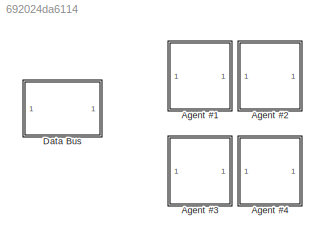
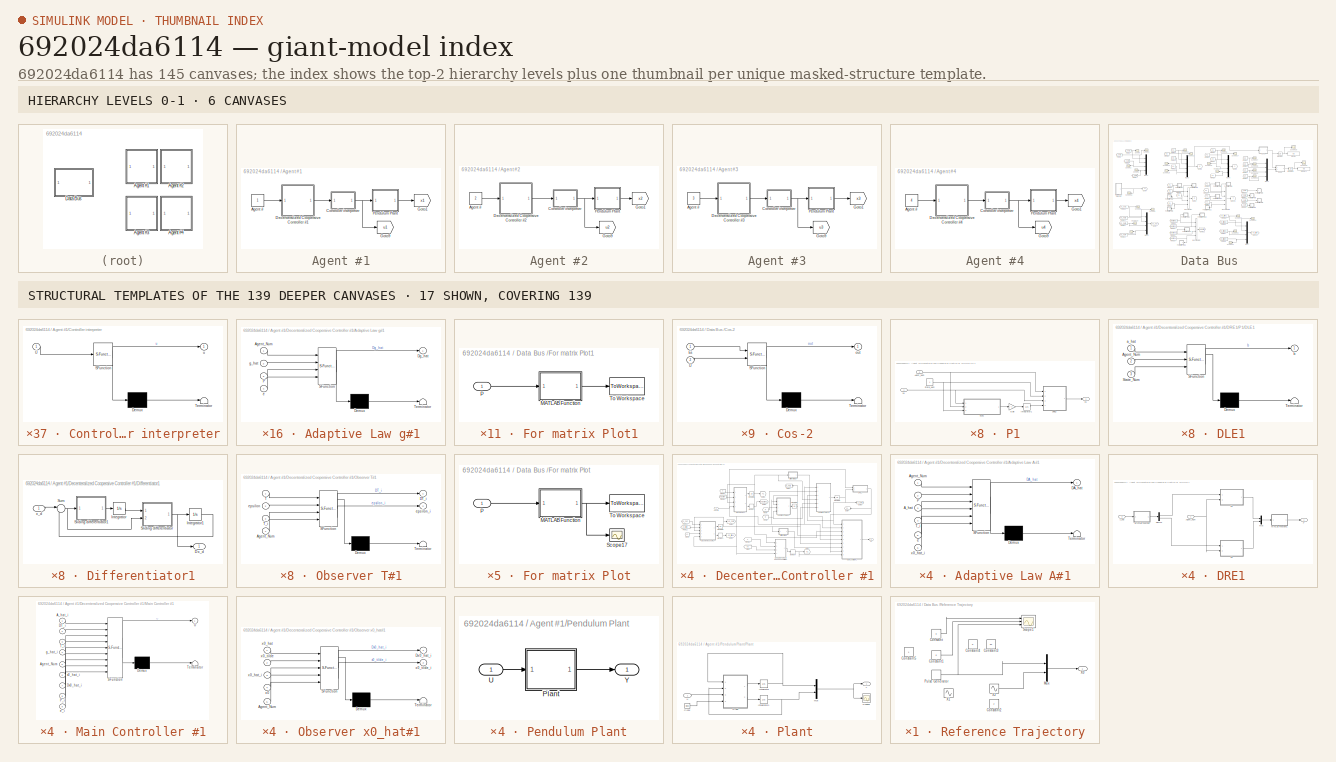
[diagram: thumbnail index - top-2 hierarchy levels (6 canvases) + 17 structural-template representatives of the remaining 139 canvases]
MODEL slx_692024da6114
KIND model
CONFIG AbsTol = auto
CONFIG EnableMultiTasking = on
CONFIG FixedStep = auto
CONFIG InitFcn = constant_CAMFC2_04_Simple
CONFIG MaxStep = auto
CONFIG MinStep = auto
CONFIG RelTol = 1e-3
CONFIG SampleTimeConstraint = Unconstrained
CONFIG Solver = ode45
CONFIG SolverName = ode45
CONFIG StartTime = 0.0
CONFIG StopTime = 100
BLOCK [SubSystem] Agent #1
  Ports = []
  RequestExecContextInheritance = off
BLOCK [Constant] Agent #1/Agent #
BLOCK [SubSystem] Agent #1/Controller interpreter
  ErrorFcn = Stateflow.Translate.translate
  PermitHierarchicalResolution = ExplicitOnly
  Ports = [1, 1]
  RequestExecContextInheritance = off
  SFBlockType = MATLAB Function
  TreatAsAtomicUnit = on
BLOCK [Demux] Agent #1/Controller interpreter/ Demux 
  Outputs = 1
  Ports = [1, 1]
BLOCK [S-Function] Agent #1/Controller interpreter/ SFunction 
  EnableBusSupport = on
  FunctionName = sf_sfun
  Parameters = n,n0
  PortCounts = [1 2]
  Ports = [1, 2]
  SFcnIsStateOwnerBlock = off
  SFunctionDeploymentMode = off
  Tag = Stateflow S-Function CAMFC2_04_simple 1
BLOCK [Terminator] Agent #1/Controller interpreter/ Terminator 
BLOCK [Inport] Agent #1/Controller interpreter/U
  IconDisplay = Port number
BLOCK [Outport] Agent #1/Controller interpreter/u
  IconDisplay = Port number
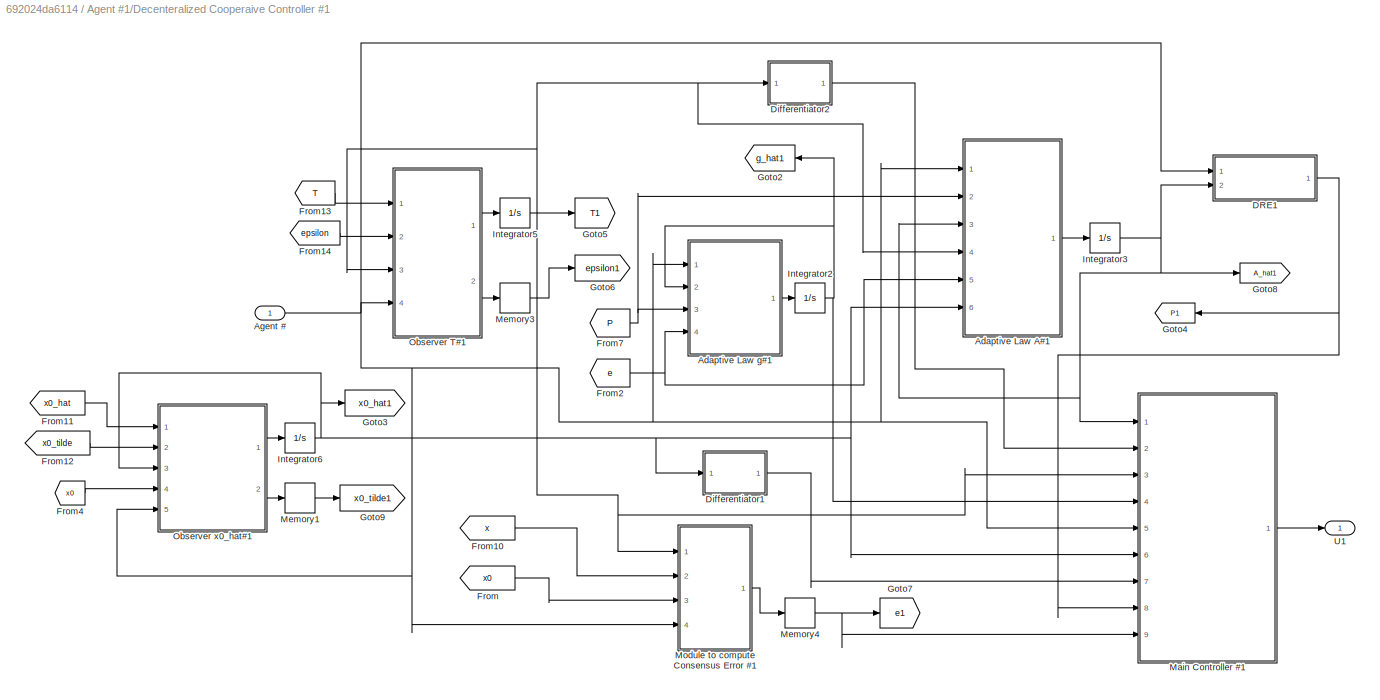
BLOCK [SubSystem] Agent #1/Decenteralized Cooperaive Controller #1
  Ports = [1, 1]
  RequestExecContextInheritance = off
BLOCK [SubSystem] Agent #1/Decenteralized Cooperaive Controller #1/Adaptive Law A#1
  ErrorFcn = Stateflow.Translate.translate
  PermitHierarchicalResolution = ExplicitOnly
  Ports = [6, 1]
  RequestExecContextInheritance = off
  SFBlockType = MATLAB Function
  TreatAsAtomicUnit = on
BLOCK [Demux] Agent #1/Decenteralized Cooperaive Controller #1/Adaptive Law A#1/ Demux 
  Outputs = 1
  Ports = [1, 1]
BLOCK [S-Function] Agent #1/Decenteralized Cooperaive Controller #1/Adaptive Law A#1/ SFunction 
  EnableBusSupport = on
  FunctionName = sf_sfun
  Parameters = H,N,P_struct,gama2,n,rho2
  PortCounts = [6 2]
  Ports = [6, 2]
  SFcnIsStateOwnerBlock = off
  SFunctionDeploymentMode = off
  Tag = Stateflow S-Function CAMFC2_04_simple 2
BLOCK [Terminator] Agent #1/Decenteralized Cooperaive Controller #1/Adaptive Law A#1/ Terminator 
BLOCK [Inport] Agent #1/Decenteralized Cooperaive Controller #1/Adaptive Law A#1/A_hat
  IconDisplay = Port number
  Port = 3
BLOCK [Inport] Agent #1/Decenteralized Cooperaive Controller #1/Adaptive Law A#1/Agent_Num
  IconDisplay = Port number
BLOCK [Outport] Agent #1/Decenteralized Cooperaive Controller #1/Adaptive Law A#1/DA_hat
  IconDisplay = Port number
BLOCK [Inport] Agent #1/Decenteralized Cooperaive Controller #1/Adaptive Law A#1/P
  IconDisplay = Port number
  Port = 2
BLOCK [Inport] Agent #1/Decenteralized Cooperaive Controller #1/Adaptive Law A#1/T_i
  IconDisplay = Port number
  Port = 4
BLOCK [Inport] Agent #1/Decenteralized Cooperaive Controller #1/Adaptive Law A#1/e
  IconDisplay = Port number
  Port = 5
BLOCK [Inport] Agent #1/Decenteralized Cooperaive Controller #1/Adaptive Law A#1/x0_hat_i
  IconDisplay = Port number
  Port = 6
BLOCK [SubSystem] Agent #1/Decenteralized Cooperaive Controller #1/Adaptive Law g#1
  ErrorFcn = Stateflow.Translate.translate
  PermitHierarchicalResolution = ExplicitOnly
  Ports = [4, 1]
  RequestExecContextInheritance = off
  SFBlockType = MATLAB Function
  TreatAsAtomicUnit = on
BLOCK [Demux] Agent #1/Decenteralized Cooperaive Controller #1/Adaptive Law g#1/ Demux 
  Outputs = 1
  Ports = [1, 1]
BLOCK [S-Function] Agent #1/Decenteralized Cooperaive Controller #1/Adaptive Law g#1/ SFunction 
  EnableBusSupport = on
  FunctionName = sf_sfun
  Parameters = H,N,P_struct,gama1,n,rho1
  PortCounts = [4 2]
  Ports = [4, 2]
  SFcnIsStateOwnerBlock = off
  SFunctionDeploymentMode = off
  Tag = Stateflow S-Function CAMFC2_04_simple 3
BLOCK [Terminator] Agent #1/Decenteralized Cooperaive Controller #1/Adaptive Law g#1/ Terminator 
BLOCK [Inport] Agent #1/Decenteralized Cooperaive Controller #1/Adaptive Law g#1/Agent_Num
  IconDisplay = Port number
BLOCK [Outport] Agent #1/Decenteralized Cooperaive Controller #1/Adaptive Law g#1/Dg_hat
  IconDisplay = Port number
BLOCK [Inport] Agent #1/Decenteralized Cooperaive Controller #1/Adaptive Law g#1/P
  IconDisplay = Port number
  Port = 3
BLOCK [Inport] Agent #1/Decenteralized Cooperaive Controller #1/Adaptive Law g#1/e
  IconDisplay = Port number
  Port = 4
BLOCK [Inport] Agent #1/Decenteralized Cooperaive Controller #1/Adaptive Law g#1/g_hat
  IconDisplay = Port number
  Port = 2
BLOCK [Inport] Agent #1/Decenteralized Cooperaive Controller #1/Agent #
  IconDisplay = Port number
BLOCK [SubSystem] Agent #1/Decenteralized Cooperaive Controller #1/DRE1
  Ports = [2, 1]
  RequestExecContextInheritance = off
BLOCK [Inport] Agent #1/Decenteralized Cooperaive Controller #1/DRE1/A_hat
  IconDisplay = Port number
  Port = 2
BLOCK [Inport] Agent #1/Decenteralized Cooperaive Controller #1/DRE1/Agent_Num
  IconDisplay = Port number
BLOCK [Demux] Agent #1/Decenteralized Cooperaive Controller #1/DRE1/Demux
  DisplayOption = bar
  Outputs = n
  Ports = [1, 2]
BLOCK [SubSystem] Agent #1/Decenteralized Cooperaive Controller #1/DRE1/MATLAB Function
  ErrorFcn = Stateflow.Translate.translate
  PermitHierarchicalResolution = ExplicitOnly
  Ports = [1, 1]
  RequestExecContextInheritance = off
  SFBlockType = MATLAB Function
  TreatAsAtomicUnit = on
BLOCK [Demux] Agent #1/Decenteralized Cooperaive Controller #1/DRE1/MATLAB Function/ Demux 
  Outputs = 1
  Ports = [1, 1]
BLOCK [S-Function] Agent #1/Decenteralized Cooperaive Controller #1/DRE1/MATLAB Function/ SFunction 
  EnableBusSupport = on
  FunctionName = sf_sfun
  PortCounts = [1 2]
  Ports = [1, 2]
  SFcnIsStateOwnerBlock = off
  SFunctionDeploymentMode = off
  Tag = Stateflow S-Function CAMFC2_04_simple 50
BLOCK [Terminator] Agent #1/Decenteralized Cooperaive Controller #1/DRE1/MATLAB Function/ Terminator 
BLOCK [Inport] Agent #1/Decenteralized Cooperaive Controller #1/DRE1/MATLAB Function/inp
  IconDisplay = Port number
BLOCK [Outport] Agent #1/Decenteralized Cooperaive Controller #1/DRE1/MATLAB Function/otp
  IconDisplay = Port number
BLOCK [SubSystem] Agent #1/Decenteralized Cooperaive Controller #1/DRE1/MATLAB Function1
  ErrorFcn = Stateflow.Translate.translate
  PermitHierarchicalResolution = ExplicitOnly
  Ports = [1, 1]
  RequestExecContextInheritance = off
  SFBlockType = MATLAB Function
  TreatAsAtomicUnit = on
BLOCK [Demux] Agent #1/Decenteralized Cooperaive Controller #1/DRE1/MATLAB Function1/ Demux 
  Outputs = 1
  Ports = [1, 1]
BLOCK [S-Function] Agent #1/Decenteralized Cooperaive Controller #1/DRE1/MATLAB Function1/ SFunction 
  EnableBusSupport = on
  FunctionName = sf_sfun
  PortCounts = [1 2]
  Ports = [1, 2]
  SFcnIsStateOwnerBlock = off
  SFunctionDeploymentMode = off
  Tag = Stateflow S-Function CAMFC2_04_simple 51
BLOCK [Terminator] Agent #1/Decenteralized Cooperaive Controller #1/DRE1/MATLAB Function1/ Terminator 
BLOCK [Inport] Agent #1/Decenteralized Cooperaive Controller #1/DRE1/MATLAB Function1/inp
  IconDisplay = Port number
BLOCK [Outport] Agent #1/Decenteralized Cooperaive Controller #1/DRE1/MATLAB Function1/otp
  IconDisplay = Port number
BLOCK [Mux] Agent #1/Decenteralized Cooperaive Controller #1/DRE1/Mux
  DisplayOption = bar
  Inputs = 2
  Ports = [2, 1]
BLOCK [Outport] Agent #1/Decenteralized Cooperaive Controller #1/DRE1/P
  IconDisplay = Port number
BLOCK [SubSystem] Agent #1/Decenteralized Cooperaive Controller #1/DRE1/P1
  Ports = [2, 1]
  RequestExecContextInheritance = off
BLOCK [Inport] Agent #1/Decenteralized Cooperaive Controller #1/DRE1/P1/Agent_Num
  IconDisplay = Port number
  Port = 2
BLOCK [SubSystem] Agent #1/Decenteralized Cooperaive Controller #1/DRE1/P1/DLE1
  ErrorFcn = Stateflow.Translate.translate
  PermitHierarchicalResolution = ExplicitOnly
  Ports = [3, 1]
  RequestExecContextInheritance = off
  SFBlockType = MATLAB Function
  TreatAsAtomicUnit = on
BLOCK [Demux] Agent #1/Decenteralized Cooperaive Controller #1/DRE1/P1/DLE1/ Demux 
  Outputs = 1
  Ports = [1, 1]
BLOCK [S-Function] Agent #1/Decenteralized Cooperaive Controller #1/DRE1/P1/DLE1/ SFunction 
  EnableBusSupport = on
  FunctionName = sf_sfun
  Parameters = H,Q
  PortCounts = [3 2]
  Ports = [3, 2]
  SFcnIsStateOwnerBlock = off
  SFunctionDeploymentMode = off
  Tag = Stateflow S-Function CAMFC2_04_simple 39
BLOCK [Terminator] Agent #1/Decenteralized Cooperaive Controller #1/DRE1/P1/DLE1/ Terminator 
BLOCK [Inport] Agent #1/Decenteralized Cooperaive Controller #1/DRE1/P1/DLE1/Agent_Num
  IconDisplay = Port number
  Port = 2
BLOCK [Inport] Agent #1/Decenteralized Cooperaive Controller #1/DRE1/P1/DLE1/State_Num
  IconDisplay = Port number
  Port = 3
BLOCK [Inport] Agent #1/Decenteralized Cooperaive Controller #1/DRE1/P1/DLE1/a_hat
  IconDisplay = Port number
BLOCK [Outport] Agent #1/Decenteralized Cooperaive Controller #1/DRE1/P1/DLE1/b
  IconDisplay = Port number
BLOCK [SubSystem] Agent #1/Decenteralized Cooperaive Controller #1/DRE1/P1/DRE2
  ErrorFcn = Stateflow.Translate.translate
  PermitHierarchicalResolution = ExplicitOnly
  Ports = [4, 1]
  RequestExecContextInheritance = off
  SFBlockType = MATLAB Function
  TreatAsAtomicUnit = on
BLOCK [Demux] Agent #1/Decenteralized Cooperaive Controller #1/DRE1/P1/DRE2/ Demux 
  Outputs = 1
  Ports = [1, 1]
BLOCK [S-Function] Agent #1/Decenteralized Cooperaive Controller #1/DRE1/P1/DRE2/ SFunction 
  EnableBusSupport = on
  FunctionName = sf_sfun
  Parameters = H,Q
  PortCounts = [4 2]
  Ports = [4, 2]
  SFcnIsStateOwnerBlock = off
  SFunctionDeploymentMode = off
  Tag = Stateflow S-Function CAMFC2_04_simple 42
BLOCK [Terminator] Agent #1/Decenteralized Cooperaive Controller #1/DRE1/P1/DRE2/ Terminator 
BLOCK [Inport] Agent #1/Decenteralized Cooperaive Controller #1/DRE1/P1/DRE2/Agent_Num
  IconDisplay = Port number
BLOCK [Inport] Agent #1/Decenteralized Cooperaive Controller #1/DRE1/P1/DRE2/State_Num
  IconDisplay = Port number
  Port = 2
BLOCK [Inport] Agent #1/Decenteralized Cooperaive Controller #1/DRE1/P1/DRE2/a_hat
  IconDisplay = Port number
  Port = 3
BLOCK [Outport] Agent #1/Decenteralized Cooperaive Controller #1/DRE1/P1/DRE2/p
  IconDisplay = Port number
BLOCK [Inport] Agent #1/Decenteralized Cooperaive Controller #1/DRE1/P1/DRE2/val_exp
  IconDisplay = Port number
  Port = 4
BLOCK [Gain] Agent #1/Decenteralized Cooperaive Controller #1/DRE1/P1/Gain
  Gain = -1
  OutDataTypeStr = Inherit: Inherit via internal rule
  ParamDataTypeStr = Inherit: Inherit via internal rule
  SaturateOnIntegerOverflow = off
BLOCK [Integrator] Agent #1/Decenteralized Cooperaive Controller #1/DRE1/P1/Integrator1
  Ports = [1, 1]
BLOCK [Constant] Agent #1/Decenteralized Cooperaive Controller #1/DRE1/P1/State_Num
BLOCK [Inport] Agent #1/Decenteralized Cooperaive Controller #1/DRE1/P1/a1
  IconDisplay = Port number
BLOCK [Outport] Agent #1/Decenteralized Cooperaive Controller #1/DRE1/P1/p1
  IconDisplay = Port number
BLOCK [SubSystem] Agent #1/Decenteralized Cooperaive Controller #1/DRE1/P2
  Ports = [2, 1]
  RequestExecContextInheritance = off
BLOCK [Inport] Agent #1/Decenteralized Cooperaive Controller #1/DRE1/P2/Agent_Num
  IconDisplay = Port number
  Port = 2
BLOCK [SubSystem] Agent #1/Decenteralized Cooperaive Controller #1/DRE1/P2/DLE1
  ErrorFcn = Stateflow.Translate.translate
  PermitHierarchicalResolution = ExplicitOnly
  Ports = [3, 1]
  RequestExecContextInheritance = off
  SFBlockType = MATLAB Function
  TreatAsAtomicUnit = on
BLOCK [Demux] Agent #1/Decenteralized Cooperaive Controller #1/DRE1/P2/DLE1/ Demux 
  Outputs = 1
  Ports = [1, 1]
BLOCK [S-Function] Agent #1/Decenteralized Cooperaive Controller #1/DRE1/P2/DLE1/ SFunction 
  EnableBusSupport = on
  FunctionName = sf_sfun
  Parameters = H,Q
  PortCounts = [3 2]
  Ports = [3, 2]
  SFcnIsStateOwnerBlock = off
  SFunctionDeploymentMode = off
  Tag = Stateflow S-Function CAMFC2_04_simple 13
BLOCK [Terminator] Agent #1/Decenteralized Cooperaive Controller #1/DRE1/P2/DLE1/ Terminator 
BLOCK [Inport] Agent #1/Decenteralized Cooperaive Controller #1/DRE1/P2/DLE1/Agent_Num
  IconDisplay = Port number
  Port = 2
BLOCK [Inport] Agent #1/Decenteralized Cooperaive Controller #1/DRE1/P2/DLE1/State_Num
  IconDisplay = Port number
  Port = 3
BLOCK [Inport] Agent #1/Decenteralized Cooperaive Controller #1/DRE1/P2/DLE1/a_hat
  IconDisplay = Port number
BLOCK [Outport] Agent #1/Decenteralized Cooperaive Controller #1/DRE1/P2/DLE1/b
  IconDisplay = Port number
BLOCK [SubSystem] Agent #1/Decenteralized Cooperaive Controller #1/DRE1/P2/DRE2
  ErrorFcn = Stateflow.Translate.translate
  PermitHierarchicalResolution = ExplicitOnly
  Ports = [4, 1]
  RequestExecContextInheritance = off
  SFBlockType = MATLAB Function
  TreatAsAtomicUnit = on
BLOCK [Demux] Agent #1/Decenteralized Cooperaive Controller #1/DRE1/P2/DRE2/ Demux 
  Outputs = 1
  Ports = [1, 1]
BLOCK [S-Function] Agent #1/Decenteralized Cooperaive Controller #1/DRE1/P2/DRE2/ SFunction 
  EnableBusSupport = on
  FunctionName = sf_sfun
  Parameters = H,Q
  PortCounts = [4 2]
  Ports = [4, 2]
  SFcnIsStateOwnerBlock = off
  SFunctionDeploymentMode = off
  Tag = Stateflow S-Function CAMFC2_04_simple 46
BLOCK [Terminator] Agent #1/Decenteralized Cooperaive Controller #1/DRE1/P2/DRE2/ Terminator 
BLOCK [Inport] Agent #1/Decenteralized Cooperaive Controller #1/DRE1/P2/DRE2/Agent_Num
  IconDisplay = Port number
BLOCK [Inport] Agent #1/Decenteralized Cooperaive Controller #1/DRE1/P2/DRE2/State_Num
  IconDisplay = Port number
  Port = 2
BLOCK [Inport] Agent #1/Decenteralized Cooperaive Controller #1/DRE1/P2/DRE2/a_hat
  IconDisplay = Port number
  Port = 3
BLOCK [Outport] Agent #1/Decenteralized Cooperaive Controller #1/DRE1/P2/DRE2/p
  IconDisplay = Port number
BLOCK [Inport] Agent #1/Decenteralized Cooperaive Controller #1/DRE1/P2/DRE2/val_exp
  IconDisplay = Port number
  Port = 4
BLOCK [Gain] Agent #1/Decenteralized Cooperaive Controller #1/DRE1/P2/Gain
  Gain = -1
  OutDataTypeStr = Inherit: Inherit via internal rule
  ParamDataTypeStr = Inherit: Inherit via internal rule
  SaturateOnIntegerOverflow = off
BLOCK [Integrator] Agent #1/Decenteralized Cooperaive Controller #1/DRE1/P2/Integrator1
  Ports = [1, 1]
BLOCK [Constant] Agent #1/Decenteralized Cooperaive Controller #1/DRE1/P2/State_Num
  Value = 2
BLOCK [Inport] Agent #1/Decenteralized Cooperaive Controller #1/DRE1/P2/a2
  IconDisplay = Port number
BLOCK [Outport] Agent #1/Decenteralized Cooperaive Controller #1/DRE1/P2/p2
  IconDisplay = Port number
BLOCK [SubSystem] Agent #1/Decenteralized Cooperaive Controller #1/Differentiator1
  Ports = [1, 1]
  RequestExecContextInheritance = off
BLOCK [Outport] Agent #1/Decenteralized Cooperaive Controller #1/Differentiator1/Dx_d
  IconDisplay = Port number
BLOCK [Integrator] Agent #1/Decenteralized Cooperaive Controller #1/Differentiator1/Integrator
  InitialCondition = zeros(n0,1)
  Ports = [1, 1]
BLOCK [Integrator] Agent #1/Decenteralized Cooperaive Controller #1/Differentiator1/Integrator1
  InitialCondition = zeros(n0,1)
  Ports = [1, 1]
BLOCK [SubSystem] Agent #1/Decenteralized Cooperaive Controller #1/Differentiator1/Sliding differentiator
  ErrorFcn = Stateflow.Translate.translate
  PermitHierarchicalResolution = ExplicitOnly
  Ports = [2, 1]
  RequestExecContextInheritance = off
  SFBlockType = MATLAB Function
  TreatAsAtomicUnit = on
BLOCK [Demux] Agent #1/Decenteralized Cooperaive Controller #1/Differentiator1/Sliding differentiator/ Demux 
  Outputs = 1
  Ports = [1, 1]
BLOCK [S-Function] Agent #1/Decenteralized Cooperaive Controller #1/Differentiator1/Sliding differentiator/ SFunction 
  EnableBusSupport = on
  FunctionName = sf_sfun
  Parameters = alpha,k1
  PortCounts = [2 2]
  Ports = [2, 2]
  SFcnIsStateOwnerBlock = off
  SFunctionDeploymentMode = off
  Tag = Stateflow S-Function CAMFC2_04_simple 12
BLOCK [Terminator] Agent #1/Decenteralized Cooperaive Controller #1/Differentiator1/Sliding differentiator/ Terminator 
BLOCK [Inport] Agent #1/Decenteralized Cooperaive Controller #1/Differentiator1/Sliding differentiator/e
  IconDisplay = Port number
  Port = 2
BLOCK [Outport] Agent #1/Decenteralized Cooperaive Controller #1/Differentiator1/Sliding differentiator/u
  IconDisplay = Port number
BLOCK [Inport] Agent #1/Decenteralized Cooperaive Controller #1/Differentiator1/Sliding differentiator/u1
  IconDisplay = Port number
BLOCK [SubSystem] Agent #1/Decenteralized Cooperaive Controller #1/Differentiator1/Sliding differentiator1
  ErrorFcn = Stateflow.Translate.translate
  PermitHierarchicalResolution = ExplicitOnly
  Ports = [1, 1]
  RequestExecContextInheritance = off
  SFBlockType = MATLAB Function
  TreatAsAtomicUnit = on
BLOCK [Demux] Agent #1/Decenteralized Cooperaive Controller #1/Differentiator1/Sliding differentiator1/ Demux 
  Outputs = 1
  Ports = [1, 1]
BLOCK [S-Function] Agent #1/Decenteralized Cooperaive Controller #1/Differentiator1/Sliding differentiator1/ SFunction 
  EnableBusSupport = on
  FunctionName = sf_sfun
  Parameters = alpha,k2
  PortCounts = [1 2]
  Ports = [1, 2]
  SFcnIsStateOwnerBlock = off
  SFunctionDeploymentMode = off
  Tag = Stateflow S-Function CAMFC2_04_simple 23
BLOCK [Terminator] Agent #1/Decenteralized Cooperaive Controller #1/Differentiator1/Sliding differentiator1/ Terminator 
BLOCK [Outport] Agent #1/Decenteralized Cooperaive Controller #1/Differentiator1/Sliding differentiator1/Du1
  IconDisplay = Port number
BLOCK [Inport] Agent #1/Decenteralized Cooperaive Controller #1/Differentiator1/Sliding differentiator1/e
  IconDisplay = Port number
BLOCK [Sum] Agent #1/Decenteralized Cooperaive Controller #1/Differentiator1/Sum
  IconShape = round
  InputSameDT = off
  Inputs = |-+
  OutDataTypeStr = Inherit: Inherit via internal rule
  Ports = [2, 1]
  SaturateOnIntegerOverflow = off
BLOCK [Inport] Agent #1/Decenteralized Cooperaive Controller #1/Differentiator1/x_d
  IconDisplay = Port number
BLOCK [SubSystem] Agent #1/Decenteralized Cooperaive Controller #1/Differentiator2
  Ports = [1, 1]
  RequestExecContextInheritance = off
BLOCK [Outport] Agent #1/Decenteralized Cooperaive Controller #1/Differentiator2/Dx_d
  IconDisplay = Port number
BLOCK [Integrator] Agent #1/Decenteralized Cooperaive Controller #1/Differentiator2/Integrator
  InitialCondition = zeros(N+1,n)
  Ports = [1, 1]
BLOCK [Integrator] Agent #1/Decenteralized Cooperaive Controller #1/Differentiator2/Integrator1
  InitialCondition = zeros(N+1,n)
  Ports = [1, 1]
BLOCK [SubSystem] Agent #1/Decenteralized Cooperaive Controller #1/Differentiator2/Sliding differentiator
  ErrorFcn = Stateflow.Translate.translate
  PermitHierarchicalResolution = ExplicitOnly
  Ports = [2, 1]
  RequestExecContextInheritance = off
  SFBlockType = MATLAB Function
  TreatAsAtomicUnit = on
BLOCK [Demux] Agent #1/Decenteralized Cooperaive Controller #1/Differentiator2/Sliding differentiator/ Demux 
  Outputs = 1
  Ports = [1, 1]
BLOCK [S-Function] Agent #1/Decenteralized Cooperaive Controller #1/Differentiator2/Sliding differentiator/ SFunction 
  EnableBusSupport = on
  FunctionName = sf_sfun
  Parameters = alpha,k1
  PortCounts = [2 2]
  Ports = [2, 2]
  SFcnIsStateOwnerBlock = off
  SFunctionDeploymentMode = off
  Tag = Stateflow S-Function CAMFC2_04_simple 5
BLOCK [Terminator] Agent #1/Decenteralized Cooperaive Controller #1/Differentiator2/Sliding differentiator/ Terminator 
BLOCK [Inport] Agent #1/Decenteralized Cooperaive Controller #1/Differentiator2/Sliding differentiator/e
  IconDisplay = Port number
  Port = 2
BLOCK [Outport] Agent #1/Decenteralized Cooperaive Controller #1/Differentiator2/Sliding differentiator/u
  IconDisplay = Port number
BLOCK [Inport] Agent #1/Decenteralized Cooperaive Controller #1/Differentiator2/Sliding differentiator/u1
  IconDisplay = Port number
BLOCK [SubSystem] Agent #1/Decenteralized Cooperaive Controller #1/Differentiator2/Sliding differentiator1
  ErrorFcn = Stateflow.Translate.translate
  PermitHierarchicalResolution = ExplicitOnly
  Ports = [1, 1]
  RequestExecContextInheritance = off
  SFBlockType = MATLAB Function
  TreatAsAtomicUnit = on
BLOCK [Demux] Agent #1/Decenteralized Cooperaive Controller #1/Differentiator2/Sliding differentiator1/ Demux 
  Outputs = 1
  Ports = [1, 1]
BLOCK [S-Function] Agent #1/Decenteralized Cooperaive Controller #1/Differentiator2/Sliding differentiator1/ SFunction 
  EnableBusSupport = on
  FunctionName = sf_sfun
  Parameters = alpha,k2
  PortCounts = [1 2]
  Ports = [1, 2]
  SFcnIsStateOwnerBlock = off
  SFunctionDeploymentMode = off
  Tag = Stateflow S-Function CAMFC2_04_simple 6
BLOCK [Terminator] Agent #1/Decenteralized Cooperaive Controller #1/Differentiator2/Sliding differentiator1/ Terminator 
BLOCK [Outport] Agent #1/Decenteralized Cooperaive Controller #1/Differentiator2/Sliding differentiator1/Du1
  IconDisplay = Port number
BLOCK [Inport] Agent #1/Decenteralized Cooperaive Controller #1/Differentiator2/Sliding differentiator1/e
  IconDisplay = Port number
BLOCK [Sum] Agent #1/Decenteralized Cooperaive Controller #1/Differentiator2/Sum
  IconShape = round
  InputSameDT = off
  Inputs = |-+
  OutDataTypeStr = Inherit: Inherit via internal rule
  Ports = [2, 1]
  SaturateOnIntegerOverflow = off
BLOCK [Inport] Agent #1/Decenteralized Cooperaive Controller #1/Differentiator2/x_d
  IconDisplay = Port number
BLOCK [From] Agent #1/Decenteralized Cooperaive Controller #1/From
  GotoTag = x0
  TagVisibility = global
BLOCK [From] Agent #1/Decenteralized Cooperaive Controller #1/From10
  GotoTag = x
  TagVisibility = global
BLOCK [From] Agent #1/Decenteralized Cooperaive Controller #1/From11
  GotoTag = x0_hat
  TagVisibility = global
BLOCK [From] Agent #1/Decenteralized Cooperaive Controller #1/From12
  GotoTag = x0_tilde
  TagVisibility = global
BLOCK [From] Agent #1/Decenteralized Cooperaive Controller #1/From13
  GotoTag = T
  TagVisibility = global
BLOCK [From] Agent #1/Decenteralized Cooperaive Controller #1/From14
  GotoTag = epsilon
  TagVisibility = global
BLOCK [From] Agent #1/Decenteralized Cooperaive Controller #1/From2
  GotoTag = e
  TagVisibility = global
BLOCK [From] Agent #1/Decenteralized Cooperaive Controller #1/From4
  GotoTag = x0
  TagVisibility = global
BLOCK [From] Agent #1/Decenteralized Cooperaive Controller #1/From7
  GotoTag = P
  TagVisibility = global
BLOCK [Goto] Agent #1/Decenteralized Cooperaive Controller #1/Goto2
  GotoTag = g_hat1
  TagVisibility = global
BLOCK [Goto] Agent #1/Decenteralized Cooperaive Controller #1/Goto3
  GotoTag = x0_hat1
  TagVisibility = global
BLOCK [Goto] Agent #1/Decenteralized Cooperaive Controller #1/Goto4
  GotoTag = P1
  TagVisibility = global
BLOCK [Goto] Agent #1/Decenteralized Cooperaive Controller #1/Goto5
  GotoTag = T1
  TagVisibility = global
BLOCK [Goto] Agent #1/Decenteralized Cooperaive Controller #1/Goto6
  GotoTag = epsilon1
  TagVisibility = global
BLOCK [Goto] Agent #1/Decenteralized Cooperaive Controller #1/Goto7
  GotoTag = e1
  TagVisibility = global
BLOCK [Goto] Agent #1/Decenteralized Cooperaive Controller #1/Goto8
  GotoTag = A_hat1
  TagVisibility = global
BLOCK [Goto] Agent #1/Decenteralized Cooperaive Controller #1/Goto9
  GotoTag = x0_tilde1
  TagVisibility = global
BLOCK [Integrator] Agent #1/Decenteralized Cooperaive Controller #1/Integrator2
  InitialCondition = zeros(n,1)
  Ports = [1, 1]
BLOCK [Integrator] Agent #1/Decenteralized Cooperaive Controller #1/Integrator3
  InitialCondition = zeros(n)
  Ports = [1, 1]
BLOCK [Integrator] Agent #1/Decenteralized Cooperaive Controller #1/Integrator5
  InitialCondition = zeros(N+1,n)
  Ports = [1, 1]
BLOCK [Integrator] Agent #1/Decenteralized Cooperaive Controller #1/Integrator6
  InitialCondition = zeros(n0,1)
  Ports = [1, 1]
BLOCK [SubSystem] Agent #1/Decenteralized Cooperaive Controller #1/Main Controller #1
  ErrorFcn = Stateflow.Translate.translate
  PermitHierarchicalResolution = ExplicitOnly
  Ports = [9, 1]
  RequestExecContextInheritance = off
  SFBlockType = MATLAB Function
  TreatAsAtomicUnit = on
BLOCK [Demux] Agent #1/Decenteralized Cooperaive Controller #1/Main Controller #1/ Demux 
  Outputs = 1
  Ports = [1, 1]
BLOCK [S-Function] Agent #1/Decenteralized Cooperaive Controller #1/Main Controller #1/ SFunction 
  EnableBusSupport = on
  FunctionName = sf_sfun
  Parameters = Q
  PortCounts = [9 2]
  Ports = [9, 2]
  SFcnIsStateOwnerBlock = off
  SFunctionDeploymentMode = off
  Tag = Stateflow S-Function CAMFC2_04_simple 9
BLOCK [Terminator] Agent #1/Decenteralized Cooperaive Controller #1/Main Controller #1/ Terminator 
BLOCK [Inport] Agent #1/Decenteralized Cooperaive Controller #1/Main Controller #1/A_hat_i
  IconDisplay = Port number
BLOCK [Inport] Agent #1/Decenteralized Cooperaive Controller #1/Main Controller #1/Agent_Num
  IconDisplay = Port number
  Port = 5
BLOCK [Inport] Agent #1/Decenteralized Cooperaive Controller #1/Main Controller #1/DT_i
  IconDisplay = Port number
  Port = 2
BLOCK [Inport] Agent #1/Decenteralized Cooperaive Controller #1/Main Controller #1/Dx0_hat_i
  IconDisplay = Port number
  Port = 7
BLOCK [Inport] Agent #1/Decenteralized Cooperaive Controller #1/Main Controller #1/P_i
  IconDisplay = Port number
  Port = 8
BLOCK [Inport] Agent #1/Decenteralized Cooperaive Controller #1/Main Controller #1/T_i
  IconDisplay = Port number
  Port = 3
BLOCK [Outport] Agent #1/Decenteralized Cooperaive Controller #1/Main Controller #1/U
  IconDisplay = Port number
BLOCK [Inport] Agent #1/Decenteralized Cooperaive Controller #1/Main Controller #1/e_i
  IconDisplay = Port number
  Port = 9
BLOCK [Inport] Agent #1/Decenteralized Cooperaive Controller #1/Main Controller #1/g_hat_i
  IconDisplay = Port number
  Port = 4
BLOCK [Inport] Agent #1/Decenteralized Cooperaive Controller #1/Main Controller #1/x0_hat_i
  IconDisplay = Port number
  Port = 6
BLOCK [Memory] Agent #1/Decenteralized Cooperaive Controller #1/Memory1
  InitialCondition = zeros(n0,1)
BLOCK [Memory] Agent #1/Decenteralized Cooperaive Controller #1/Memory3
  InitialCondition = zeros(N+1,n)
BLOCK [Memory] Agent #1/Decenteralized Cooperaive Controller #1/Memory4
  InitialCondition = zeros(n,1)
BLOCK [SubSystem] Agent #1/Decenteralized Cooperaive Controller #1/Module to compute Consensus Error #1
  ErrorFcn = Stateflow.Translate.translate
  PermitHierarchicalResolution = ExplicitOnly
  Ports = [4, 1]
  RequestExecContextInheritance = off
  SFBlockType = MATLAB Function
  TreatAsAtomicUnit = on
BLOCK [Demux] Agent #1/Decenteralized Cooperaive Controller #1/Module to compute Consensus Error #1/ Demux 
  Outputs = 1
  Ports = [1, 1]
BLOCK [S-Function] Agent #1/Decenteralized Cooperaive Controller #1/Module to compute Consensus Error #1/ SFunction 
  EnableBusSupport = on
  FunctionName = sf_sfun
  Parameters = AN,BN,N,n,n0
  PortCounts = [4 2]
  Ports = [4, 2]
  SFcnIsStateOwnerBlock = off
  SFunctionDeploymentMode = off
  Tag = Stateflow S-Function CAMFC2_04_simple 10
BLOCK [Terminator] Agent #1/Decenteralized Cooperaive Controller #1/Module to compute Consensus Error #1/ Terminator 
BLOCK [Inport] Agent #1/Decenteralized Cooperaive Controller #1/Module to compute Consensus Error #1/Agent_Num
  IconDisplay = Port number
  Port = 4
BLOCK [Inport] Agent #1/Decenteralized Cooperaive Controller #1/Module to compute Consensus Error #1/T_i
  IconDisplay = Port number
BLOCK [Outport] Agent #1/Decenteralized Cooperaive Controller #1/Module to compute Consensus Error #1/ep
  IconDisplay = Port number
BLOCK [Inport] Agent #1/Decenteralized Cooperaive Controller #1/Module to compute Consensus Error #1/x
  IconDisplay = Port number
  Port = 2
BLOCK [Inport] Agent #1/Decenteralized Cooperaive Controller #1/Module to compute Consensus Error #1/x0
  IconDisplay = Port number
  Port = 3
BLOCK [SubSystem] Agent #1/Decenteralized Cooperaive Controller #1/Observer T#1
  ErrorFcn = Stateflow.Translate.translate
  PermitHierarchicalResolution = ExplicitOnly
  Ports = [4, 2]
  RequestExecContextInheritance = off
  SFBlockType = MATLAB Function
  TreatAsAtomicUnit = on
BLOCK [Demux] Agent #1/Decenteralized Cooperaive Controller #1/Observer T#1/ Demux 
  Outputs = 1
  Ports = [1, 1]
BLOCK [S-Function] Agent #1/Decenteralized Cooperaive Controller #1/Observer T#1/ SFunction 
  EnableBusSupport = on
  FunctionName = sf_sfun
  Parameters = AN,BN,H,N,Observer_Gain1,Omega,T_struct,Upsilon_M,epsilon_struct,n
  PortCounts = [4 3]
  Ports = [4, 3]
  SFcnIsStateOwnerBlock = off
  SFunctionDeploymentMode = off
  Tag = Stateflow S-Function CAMFC2_04_simple 11
BLOCK [Terminator] Agent #1/Decenteralized Cooperaive Controller #1/Observer T#1/ Terminator 
BLOCK [Inport] Agent #1/Decenteralized Cooperaive Controller #1/Observer T#1/Agent_Num
  IconDisplay = Port number
  Port = 4
BLOCK [Outport] Agent #1/Decenteralized Cooperaive Controller #1/Observer T#1/DT_i
  IconDisplay = Port number
BLOCK [Inport] Agent #1/Decenteralized Cooperaive Controller #1/Observer T#1/T
  IconDisplay = Port number
BLOCK [Inport] Agent #1/Decenteralized Cooperaive Controller #1/Observer T#1/T_i
  IconDisplay = Port number
  Port = 3
BLOCK [Inport] Agent #1/Decenteralized Cooperaive Controller #1/Observer T#1/epsilon
  IconDisplay = Port number
  Port = 2
BLOCK [Outport] Agent #1/Decenteralized Cooperaive Controller #1/Observer T#1/epsilon_i
  IconDisplay = Port number
  Port = 2
BLOCK [SubSystem] Agent #1/Decenteralized Cooperaive Controller #1/Observer x0_hat#1
  ErrorFcn = Stateflow.Translate.translate
  PermitHierarchicalResolution = ExplicitOnly
  Ports = [5, 2]
  RequestExecContextInheritance = off
  SFBlockType = MATLAB Function
  TreatAsAtomicUnit = on
BLOCK [Demux] Agent #1/Decenteralized Cooperaive Controller #1/Observer x0_hat#1/ Demux 
  Outputs = 1
  Ports = [1, 1]
BLOCK [S-Function] Agent #1/Decenteralized Cooperaive Controller #1/Observer x0_hat#1/ SFunction 
  EnableBusSupport = on
  FunctionName = sf_sfun
  Parameters = AN,BN,H,N,Observer_Gain,alpha,chi,n0
  PortCounts = [5 3]
  Ports = [5, 3]
  SFcnIsStateOwnerBlock = off
  SFunctionDeploymentMode = off
  Tag = Stateflow S-Function CAMFC2_04_simple 4
BLOCK [Terminator] Agent #1/Decenteralized Cooperaive Controller #1/Observer x0_hat#1/ Terminator 
BLOCK [Inport] Agent #1/Decenteralized Cooperaive Controller #1/Observer x0_hat#1/Agent_Num
  IconDisplay = Port number
  Port = 5
BLOCK [Outport] Agent #1/Decenteralized Cooperaive Controller #1/Observer x0_hat#1/Dx0_hat_i
  IconDisplay = Port number
BLOCK [Inport] Agent #1/Decenteralized Cooperaive Controller #1/Observer x0_hat#1/x0
  IconDisplay = Port number
  Port = 4
BLOCK [Inport] Agent #1/Decenteralized Cooperaive Controller #1/Observer x0_hat#1/x0_hat
  IconDisplay = Port number
BLOCK [Inport] Agent #1/Decenteralized Cooperaive Controller #1/Observer x0_hat#1/x0_hat_i
  IconDisplay = Port number
  Port = 3
BLOCK [Inport] Agent #1/Decenteralized Cooperaive Controller #1/Observer x0_hat#1/x0_tilde
  IconDisplay = Port number
  Port = 2
BLOCK [Outport] Agent #1/Decenteralized Cooperaive Controller #1/Observer x0_hat#1/x0_tilde_i
  IconDisplay = Port number
  Port = 2
BLOCK [Outport] Agent #1/Decenteralized Cooperaive Controller #1/U1
  IconDisplay = Port number
BLOCK [Goto] Agent #1/Goto1
  GotoTag = x1
  TagVisibility = global
BLOCK [Goto] Agent #1/Goto9
  GotoTag = u1
  TagVisibility = global
BLOCK [SubSystem] Agent #1/Pendulum Plant
  Ports = [1, 1]
  RequestExecContextInheritance = off
BLOCK [SubSystem] Agent #1/Pendulum Plant/Plant
  Ports = [1, 1]
  RequestExecContextInheritance = off
BLOCK [Clock] Agent #1/Pendulum Plant/Plant/Clock
BLOCK [Integrator] Agent #1/Pendulum Plant/Plant/Integrator
  Ports = [1, 1]
BLOCK [Integrator] Agent #1/Pendulum Plant/Plant/Integrator1
  Ports = [1, 1]
BLOCK [Mux] Agent #1/Pendulum Plant/Plant/Mux
  DisplayOption = bar
  Inputs = 2
  Ports = [2, 1]
BLOCK [SubSystem] Agent #1/Pendulum Plant/Plant/Plant
  ErrorFcn = Stateflow.Translate.translate
  PermitHierarchicalResolution = ExplicitOnly
  Ports = [4, 2]
  RequestExecContextInheritance = off
  SFBlockType = MATLAB Function
  TreatAsAtomicUnit = on
BLOCK [Demux] Agent #1/Pendulum Plant/Plant/Plant/ Demux 
  Outputs = 1
  Ports = [1, 1]
BLOCK [S-Function] Agent #1/Pendulum Plant/Plant/Plant/ SFunction 
  EnableBusSupport = on
  FunctionName = sf_sfun
  Parameters = Bp,Disturb_Freq,Disturb_Val,Jp,Mp,ge,lp
  PortCounts = [4 3]
  Ports = [4, 3]
  SFcnIsStateOwnerBlock = off
  SFunctionDeploymentMode = off
  Tag = Stateflow S-Function CAMFC2_04_simple 7
BLOCK [Terminator] Agent #1/Pendulum Plant/Plant/Plant/ Terminator 
BLOCK [Outport] Agent #1/Pendulum Plant/Plant/Plant/Dx1
  IconDisplay = Port number
BLOCK [Outport] Agent #1/Pendulum Plant/Plant/Plant/Dx2
  IconDisplay = Port number
  Port = 2
BLOCK [Inport] Agent #1/Pendulum Plant/Plant/Plant/t
  IconDisplay = Port number
  Port = 4
BLOCK [Inport] Agent #1/Pendulum Plant/Plant/Plant/u
  IconDisplay = Port number
  Port = 3
BLOCK [Inport] Agent #1/Pendulum Plant/Plant/Plant/x1
  IconDisplay = Port number
BLOCK [Inport] Agent #1/Pendulum Plant/Plant/Plant/x2
  IconDisplay = Port number
  Port = 2
BLOCK [Scope] Agent #1/Pendulum Plant/Plant/Scope3
  Floating = off
  NumInputPorts = 1
  Ports = [1]
  ScopeSpecificationString = Simulink.scopes.TimeScopeBlockCfg('CurrentConfiguration', extmgr.ConfigurationSet(extmgr.Configuration('Core','General UI',true),extmgr.Configuration('Core','Source UI',true),extmgr.Configuration('Sources','WiredSimulink',true,'DataLoggingVariableName','ScopeData4','DataLoggingSaveFormat','StructureWithTime','DataLoggingDecimation','1','DataLoggingDecimateData',true),extmgr.Configuration('Visuals'...<+1697ch>  <repeated x4 — deduplicated; at blocks: Scope3>
BLOCK [Inport] Agent #1/Pendulum Plant/Plant/U
  IconDisplay = Port number
BLOCK [Outport] Agent #1/Pendulum Plant/Plant/Y
  IconDisplay = Port number
BLOCK [Inport] Agent #1/Pendulum Plant/U
  IconDisplay = Port number
BLOCK [Outport] Agent #1/Pendulum Plant/Y
  IconDisplay = Port number
BLOCK [SubSystem] Agent #2
  Ports = []
  RequestExecContextInheritance = off
BLOCK [Constant] Agent #2/Agent #
  Value = 2
BLOCK [SubSystem] Agent #2/Controller interpreter
  ErrorFcn = Stateflow.Translate.translate
  PermitHierarchicalResolution = ExplicitOnly
  Ports = [1, 1]
  RequestExecContextInheritance = off
  SFBlockType = MATLAB Function
  TreatAsAtomicUnit = on
BLOCK [Demux] Agent #2/Controller interpreter/ Demux 
  Outputs = 1
  Ports = [1, 1]
BLOCK [S-Function] Agent #2/Controller interpreter/ SFunction 
  EnableBusSupport = on
  FunctionName = sf_sfun
  Parameters = n,n0
  PortCounts = [1 2]
  Ports = [1, 2]
  SFcnIsStateOwnerBlock = off
  SFunctionDeploymentMode = off
  Tag = Stateflow S-Function CAMFC2_04_simple 15
BLOCK [Terminator] Agent #2/Controller interpreter/ Terminator 
BLOCK [Inport] Agent #2/Controller interpreter/U
  IconDisplay = Port number
BLOCK [Outport] Agent #2/Controller interpreter/u
  IconDisplay = Port number
BLOCK [SubSystem] Agent #2/Decenteralized Cooperaive Controller #2
  Ports = [1, 1]
  RequestExecContextInheritance = off
BLOCK [SubSystem] Agent #2/Decenteralized Cooperaive Controller #2/Adaptive Law A#2
  ErrorFcn = Stateflow.Translate.translate
  PermitHierarchicalResolution = ExplicitOnly
  Ports = [6, 1]
  RequestExecContextInheritance = off
  SFBlockType = MATLAB Function
  TreatAsAtomicUnit = on
BLOCK [Demux] Agent #2/Decenteralized Cooperaive Controller #2/Adaptive Law A#2/ Demux 
  Outputs = 1
  Ports = [1, 1]
BLOCK [S-Function] Agent #2/Decenteralized Cooperaive Controller #2/Adaptive Law A#2/ SFunction 
  EnableBusSupport = on
  FunctionName = sf_sfun
  Parameters = H,N,P_struct,gama2,n,rho2
  PortCounts = [6 2]
  Ports = [6, 2]
  SFcnIsStateOwnerBlock = off
  SFunctionDeploymentMode = off
  Tag = Stateflow S-Function CAMFC2_04_simple 16
BLOCK [Terminator] Agent #2/Decenteralized Cooperaive Controller #2/Adaptive Law A#2/ Terminator 
BLOCK [Inport] Agent #2/Decenteralized Cooperaive Controller #2/Adaptive Law A#2/A_hat
  IconDisplay = Port number
  Port = 3
BLOCK [Inport] Agent #2/Decenteralized Cooperaive Controller #2/Adaptive Law A#2/Agent_Num
  IconDisplay = Port number
BLOCK [Outport] Agent #2/Decenteralized Cooperaive Controller #2/Adaptive Law A#2/DA_hat
  IconDisplay = Port number
BLOCK [Inport] Agent #2/Decenteralized Cooperaive Controller #2/Adaptive Law A#2/P
  IconDisplay = Port number
  Port = 2
BLOCK [Inport] Agent #2/Decenteralized Cooperaive Controller #2/Adaptive Law A#2/T_i
  IconDisplay = Port number
  Port = 4
BLOCK [Inport] Agent #2/Decenteralized Cooperaive Controller #2/Adaptive Law A#2/e
  IconDisplay = Port number
  Port = 5
BLOCK [Inport] Agent #2/Decenteralized Cooperaive Controller #2/Adaptive Law A#2/x0_hat_i
  IconDisplay = Port number
  Port = 6
BLOCK [SubSystem] Agent #2/Decenteralized Cooperaive Controller #2/Adaptive Law g#2
  ErrorFcn = Stateflow.Translate.translate
  PermitHierarchicalResolution = ExplicitOnly
  Ports = [4, 1]
  RequestExecContextInheritance = off
  SFBlockType = MATLAB Function
  TreatAsAtomicUnit = on
BLOCK [Demux] Agent #2/Decenteralized Cooperaive Controller #2/Adaptive Law g#2/ Demux 
  Outputs = 1
  Ports = [1, 1]
BLOCK [S-Function] Agent #2/Decenteralized Cooperaive Controller #2/Adaptive Law g#2/ SFunction 
  EnableBusSupport = on
  FunctionName = sf_sfun
  Parameters = H,N,P_struct,gama1,n,rho1
  PortCounts = [4 2]
  Ports = [4, 2]
  SFcnIsStateOwnerBlock = off
  SFunctionDeploymentMode = off
  Tag = Stateflow S-Function CAMFC2_04_simple 17
BLOCK [Terminator] Agent #2/Decenteralized Cooperaive Controller #2/Adaptive Law g#2/ Terminator 
BLOCK [Inport] Agent #2/Decenteralized Cooperaive Controller #2/Adaptive Law g#2/Agent_Num
  IconDisplay = Port number
BLOCK [Outport] Agent #2/Decenteralized Cooperaive Controller #2/Adaptive Law g#2/Dg_hat
  IconDisplay = Port number
BLOCK [Inport] Agent #2/Decenteralized Cooperaive Controller #2/Adaptive Law g#2/P
  IconDisplay = Port number
  Port = 3
BLOCK [Inport] Agent #2/Decenteralized Cooperaive Controller #2/Adaptive Law g#2/e
  IconDisplay = Port number
  Port = 4
BLOCK [Inport] Agent #2/Decenteralized Cooperaive Controller #2/Adaptive Law g#2/g_hat
  IconDisplay = Port number
  Port = 2
BLOCK [Inport] Agent #2/Decenteralized Cooperaive Controller #2/Agent #
  IconDisplay = Port number
BLOCK [SubSystem] Agent #2/Decenteralized Cooperaive Controller #2/DRE2
  Ports = [2, 1]
  RequestExecContextInheritance = off
BLOCK [Inport] Agent #2/Decenteralized Cooperaive Controller #2/DRE2/A_hat
  IconDisplay = Port number
  Port = 2
BLOCK [Inport] Agent #2/Decenteralized Cooperaive Controller #2/DRE2/Agent_Num
  IconDisplay = Port number
BLOCK [Demux] Agent #2/Decenteralized Cooperaive Controller #2/DRE2/Demux
  DisplayOption = bar
  Outputs = n
  Ports = [1, 2]
BLOCK [SubSystem] Agent #2/Decenteralized Cooperaive Controller #2/DRE2/MATLAB Function
  ErrorFcn = Stateflow.Translate.translate
  PermitHierarchicalResolution = ExplicitOnly
  Ports = [1, 1]
  RequestExecContextInheritance = off
  SFBlockType = MATLAB Function
  TreatAsAtomicUnit = on
BLOCK [Demux] Agent #2/Decenteralized Cooperaive Controller #2/DRE2/MATLAB Function/ Demux 
  Outputs = 1
  Ports = [1, 1]
BLOCK [S-Function] Agent #2/Decenteralized Cooperaive Controller #2/DRE2/MATLAB Function/ SFunction 
  EnableBusSupport = on
  FunctionName = sf_sfun
  PortCounts = [1 2]
  Ports = [1, 2]
  SFcnIsStateOwnerBlock = off
  SFunctionDeploymentMode = off
  Tag = Stateflow S-Function CAMFC2_04_simple 18
BLOCK [Terminator] Agent #2/Decenteralized Cooperaive Controller #2/DRE2/MATLAB Function/ Terminator 
BLOCK [Inport] Agent #2/Decenteralized Cooperaive Controller #2/DRE2/MATLAB Function/inp
  IconDisplay = Port number
BLOCK [Outport] Agent #2/Decenteralized Cooperaive Controller #2/DRE2/MATLAB Function/otp
  IconDisplay = Port number
BLOCK [SubSystem] Agent #2/Decenteralized Cooperaive Controller #2/DRE2/MATLAB Function1
  ErrorFcn = Stateflow.Translate.translate
  PermitHierarchicalResolution = ExplicitOnly
  Ports = [1, 1]
  RequestExecContextInheritance = off
  SFBlockType = MATLAB Function
  TreatAsAtomicUnit = on
BLOCK [Demux] Agent #2/Decenteralized Cooperaive Controller #2/DRE2/MATLAB Function1/ Demux 
  Outputs = 1
  Ports = [1, 1]
BLOCK [S-Function] Agent #2/Decenteralized Cooperaive Controller #2/DRE2/MATLAB Function1/ SFunction 
  EnableBusSupport = on
  FunctionName = sf_sfun
  PortCounts = [1 2]
  Ports = [1, 2]
  SFcnIsStateOwnerBlock = off
  SFunctionDeploymentMode = off
  Tag = Stateflow S-Function CAMFC2_04_simple 53
BLOCK [Terminator] Agent #2/Decenteralized Cooperaive Controller #2/DRE2/MATLAB Function1/ Terminator 
BLOCK [Inport] Agent #2/Decenteralized Cooperaive Controller #2/DRE2/MATLAB Function1/inp
  IconDisplay = Port number
BLOCK [Outport] Agent #2/Decenteralized Cooperaive Controller #2/DRE2/MATLAB Function1/otp
  IconDisplay = Port number
BLOCK [Mux] Agent #2/Decenteralized Cooperaive Controller #2/DRE2/Mux
  DisplayOption = bar
  Inputs = 2
  Ports = [2, 1]
BLOCK [Outport] Agent #2/Decenteralized Cooperaive Controller #2/DRE2/P
  IconDisplay = Port number
BLOCK [SubSystem] Agent #2/Decenteralized Cooperaive Controller #2/DRE2/P1
  Ports = [2, 1]
  RequestExecContextInheritance = off
BLOCK [Inport] Agent #2/Decenteralized Cooperaive Controller #2/DRE2/P1/Agent_Num
  IconDisplay = Port number
  Port = 2
BLOCK [SubSystem] Agent #2/Decenteralized Cooperaive Controller #2/DRE2/P1/DLE1
  ErrorFcn = Stateflow.Translate.translate
  PermitHierarchicalResolution = ExplicitOnly
  Ports = [3, 1]
  RequestExecContextInheritance = off
  SFBlockType = MATLAB Function
  TreatAsAtomicUnit = on
BLOCK [Demux] Agent #2/Decenteralized Cooperaive Controller #2/DRE2/P1/DLE1/ Demux 
  Outputs = 1
  Ports = [1, 1]
BLOCK [S-Function] Agent #2/Decenteralized Cooperaive Controller #2/DRE2/P1/DLE1/ SFunction 
  EnableBusSupport = on
  FunctionName = sf_sfun
  Parameters = H,Q
  PortCounts = [3 2]
  Ports = [3, 2]
  SFcnIsStateOwnerBlock = off
  SFunctionDeploymentMode = off
  Tag = Stateflow S-Function CAMFC2_04_simple 64
BLOCK [Terminator] Agent #2/Decenteralized Cooperaive Controller #2/DRE2/P1/DLE1/ Terminator 
BLOCK [Inport] Agent #2/Decenteralized Cooperaive Controller #2/DRE2/P1/DLE1/Agent_Num
  IconDisplay = Port number
  Port = 2
BLOCK [Inport] Agent #2/Decenteralized Cooperaive Controller #2/DRE2/P1/DLE1/State_Num
  IconDisplay = Port number
  Port = 3
BLOCK [Inport] Agent #2/Decenteralized Cooperaive Controller #2/DRE2/P1/DLE1/a_hat
  IconDisplay = Port number
BLOCK [Outport] Agent #2/Decenteralized Cooperaive Controller #2/DRE2/P1/DLE1/b
  IconDisplay = Port number
BLOCK [SubSystem] Agent #2/Decenteralized Cooperaive Controller #2/DRE2/P1/DRE2
  ErrorFcn = Stateflow.Translate.translate
  PermitHierarchicalResolution = ExplicitOnly
  Ports = [4, 1]
  RequestExecContextInheritance = off
  SFBlockType = MATLAB Function
  TreatAsAtomicUnit = on
BLOCK [Demux] Agent #2/Decenteralized Cooperaive Controller #2/DRE2/P1/DRE2/ Demux 
  Outputs = 1
  Ports = [1, 1]
BLOCK [S-Function] Agent #2/Decenteralized Cooperaive Controller #2/DRE2/P1/DRE2/ SFunction 
  EnableBusSupport = on
  FunctionName = sf_sfun
  Parameters = H,Q
  PortCounts = [4 2]
  Ports = [4, 2]
  SFcnIsStateOwnerBlock = off
  SFunctionDeploymentMode = off
  Tag = Stateflow S-Function CAMFC2_04_simple 72
BLOCK [Terminator] Agent #2/Decenteralized Cooperaive Controller #2/DRE2/P1/DRE2/ Terminator 
BLOCK [Inport] Agent #2/Decenteralized Cooperaive Controller #2/DRE2/P1/DRE2/Agent_Num
  IconDisplay = Port number
BLOCK [Inport] Agent #2/Decenteralized Cooperaive Controller #2/DRE2/P1/DRE2/State_Num
  IconDisplay = Port number
  Port = 2
BLOCK [Inport] Agent #2/Decenteralized Cooperaive Controller #2/DRE2/P1/DRE2/a_hat
  IconDisplay = Port number
  Port = 3
BLOCK [Outport] Agent #2/Decenteralized Cooperaive Controller #2/DRE2/P1/DRE2/p
  IconDisplay = Port number
BLOCK [Inport] Agent #2/Decenteralized Cooperaive Controller #2/DRE2/P1/DRE2/val_exp
  IconDisplay = Port number
  Port = 4
BLOCK [Gain] Agent #2/Decenteralized Cooperaive Controller #2/DRE2/P1/Gain
  Gain = -1
  OutDataTypeStr = Inherit: Inherit via internal rule
  ParamDataTypeStr = Inherit: Inherit via internal rule
  SaturateOnIntegerOverflow = off
BLOCK [Integrator] Agent #2/Decenteralized Cooperaive Controller #2/DRE2/P1/Integrator1
  Ports = [1, 1]
BLOCK [Constant] Agent #2/Decenteralized Cooperaive Controller #2/DRE2/P1/State_Num
BLOCK [Inport] Agent #2/Decenteralized Cooperaive Controller #2/DRE2/P1/a1
  IconDisplay = Port number
BLOCK [Outport] Agent #2/Decenteralized Cooperaive Controller #2/DRE2/P1/p1
  IconDisplay = Port number
BLOCK [SubSystem] Agent #2/Decenteralized Cooperaive Controller #2/DRE2/P2
  Ports = [2, 1]
  RequestExecContextInheritance = off
BLOCK [Inport] Agent #2/Decenteralized Cooperaive Controller #2/DRE2/P2/Agent_Num
  IconDisplay = Port number
  Port = 2
BLOCK [SubSystem] Agent #2/Decenteralized Cooperaive Controller #2/DRE2/P2/DLE1
  ErrorFcn = Stateflow.Translate.translate
  PermitHierarchicalResolution = ExplicitOnly
  Ports = [3, 1]
  RequestExecContextInheritance = off
  SFBlockType = MATLAB Function
  TreatAsAtomicUnit = on
BLOCK [Demux] Agent #2/Decenteralized Cooperaive Controller #2/DRE2/P2/DLE1/ Demux 
  Outputs = 1
  Ports = [1, 1]
BLOCK [S-Function] Agent #2/Decenteralized Cooperaive Controller #2/DRE2/P2/DLE1/ SFunction 
  EnableBusSupport = on
  FunctionName = sf_sfun
  Parameters = H,Q
  PortCounts = [3 2]
  Ports = [3, 2]
  SFcnIsStateOwnerBlock = off
  SFunctionDeploymentMode = off
  Tag = Stateflow S-Function CAMFC2_04_simple 75
BLOCK [Terminator] Agent #2/Decenteralized Cooperaive Controller #2/DRE2/P2/DLE1/ Terminator 
BLOCK [Inport] Agent #2/Decenteralized Cooperaive Controller #2/DRE2/P2/DLE1/Agent_Num
  IconDisplay = Port number
  Port = 2
BLOCK [Inport] Agent #2/Decenteralized Cooperaive Controller #2/DRE2/P2/DLE1/State_Num
  IconDisplay = Port number
  Port = 3
BLOCK [Inport] Agent #2/Decenteralized Cooperaive Controller #2/DRE2/P2/DLE1/a_hat
  IconDisplay = Port number
BLOCK [Outport] Agent #2/Decenteralized Cooperaive Controller #2/DRE2/P2/DLE1/b
  IconDisplay = Port number
BLOCK [SubSystem] Agent #2/Decenteralized Cooperaive Controller #2/DRE2/P2/DRE2
  ErrorFcn = Stateflow.Translate.translate
  PermitHierarchicalResolution = ExplicitOnly
  Ports = [4, 1]
  RequestExecContextInheritance = off
  SFBlockType = MATLAB Function
  TreatAsAtomicUnit = on
BLOCK [Demux] Agent #2/Decenteralized Cooperaive Controller #2/DRE2/P2/DRE2/ Demux 
  Outputs = 1
  Ports = [1, 1]
BLOCK [S-Function] Agent #2/Decenteralized Cooperaive Controller #2/DRE2/P2/DRE2/ SFunction 
  EnableBusSupport = on
  FunctionName = sf_sfun
  Parameters = H,Q
  PortCounts = [4 2]
  Ports = [4, 2]
  SFcnIsStateOwnerBlock = off
  SFunctionDeploymentMode = off
  Tag = Stateflow S-Function CAMFC2_04_simple 76
BLOCK [Terminator] Agent #2/Decenteralized Cooperaive Controller #2/DRE2/P2/DRE2/ Terminator 
BLOCK [Inport] Agent #2/Decenteralized Cooperaive Controller #2/DRE2/P2/DRE2/Agent_Num
  IconDisplay = Port number
BLOCK [Inport] Agent #2/Decenteralized Cooperaive Controller #2/DRE2/P2/DRE2/State_Num
  IconDisplay = Port number
  Port = 2
BLOCK [Inport] Agent #2/Decenteralized Cooperaive Controller #2/DRE2/P2/DRE2/a_hat
  IconDisplay = Port number
  Port = 3
BLOCK [Outport] Agent #2/Decenteralized Cooperaive Controller #2/DRE2/P2/DRE2/p
  IconDisplay = Port number
BLOCK [Inport] Agent #2/Decenteralized Cooperaive Controller #2/DRE2/P2/DRE2/val_exp
  IconDisplay = Port number
  Port = 4
BLOCK [Gain] Agent #2/Decenteralized Cooperaive Controller #2/DRE2/P2/Gain
  Gain = -1
  OutDataTypeStr = Inherit: Inherit via internal rule
  ParamDataTypeStr = Inherit: Inherit via internal rule
  SaturateOnIntegerOverflow = off
BLOCK [Integrator] Agent #2/Decenteralized Cooperaive Controller #2/DRE2/P2/Integrator1
  Ports = [1, 1]
BLOCK [Constant] Agent #2/Decenteralized Cooperaive Controller #2/DRE2/P2/State_Num
  Value = 2
BLOCK [Inport] Agent #2/Decenteralized Cooperaive Controller #2/DRE2/P2/a2
  IconDisplay = Port number
BLOCK [Outport] Agent #2/Decenteralized Cooperaive Controller #2/DRE2/P2/p2
  IconDisplay = Port number
BLOCK [SubSystem] Agent #2/Decenteralized Cooperaive Controller #2/Differentiator1
  Ports = [1, 1]
  RequestExecContextInheritance = off
BLOCK [Outport] Agent #2/Decenteralized Cooperaive Controller #2/Differentiator1/Dx_d
  IconDisplay = Port number
BLOCK [Integrator] Agent #2/Decenteralized Cooperaive Controller #2/Differentiator1/Integrator
  InitialCondition = zeros(n0,1)
  Ports = [1, 1]
BLOCK [Integrator] Agent #2/Decenteralized Cooperaive Controller #2/Differentiator1/Integrator1
  InitialCondition = zeros(n0,1)
  Ports = [1, 1]
BLOCK [SubSystem] Agent #2/Decenteralized Cooperaive Controller #2/Differentiator1/Sliding differentiator
  ErrorFcn = Stateflow.Translate.translate
  PermitHierarchicalResolution = ExplicitOnly
  Ports = [2, 1]
  RequestExecContextInheritance = off
  SFBlockType = MATLAB Function
  TreatAsAtomicUnit = on
BLOCK [Demux] Agent #2/Decenteralized Cooperaive Controller #2/Differentiator1/Sliding differentiator/ Demux 
  Outputs = 1
  Ports = [1, 1]
BLOCK [S-Function] Agent #2/Decenteralized Cooperaive Controller #2/Differentiator1/Sliding differentiator/ SFunction 
  EnableBusSupport = on
  FunctionName = sf_sfun
  Parameters = alpha,k1
  PortCounts = [2 2]
  Ports = [2, 2]
  SFcnIsStateOwnerBlock = off
  SFunctionDeploymentMode = off
  Tag = Stateflow S-Function CAMFC2_04_simple 19
BLOCK [Terminator] Agent #2/Decenteralized Cooperaive Controller #2/Differentiator1/Sliding differentiator/ Terminator 
BLOCK [Inport] Agent #2/Decenteralized Cooperaive Controller #2/Differentiator1/Sliding differentiator/e
  IconDisplay = Port number
  Port = 2
BLOCK [Outport] Agent #2/Decenteralized Cooperaive Controller #2/Differentiator1/Sliding differentiator/u
  IconDisplay = Port number
BLOCK [Inport] Agent #2/Decenteralized Cooperaive Controller #2/Differentiator1/Sliding differentiator/u1
  IconDisplay = Port number
BLOCK [SubSystem] Agent #2/Decenteralized Cooperaive Controller #2/Differentiator1/Sliding differentiator1
  ErrorFcn = Stateflow.Translate.translate
  PermitHierarchicalResolution = ExplicitOnly
  Ports = [1, 1]
  RequestExecContextInheritance = off
  SFBlockType = MATLAB Function
  TreatAsAtomicUnit = on
BLOCK [Demux] Agent #2/Decenteralized Cooperaive Controller #2/Differentiator1/Sliding differentiator1/ Demux 
  Outputs = 1
  Ports = [1, 1]
BLOCK [S-Function] Agent #2/Decenteralized Cooperaive Controller #2/Differentiator1/Sliding differentiator1/ SFunction 
  EnableBusSupport = on
  FunctionName = sf_sfun
  Parameters = alpha,k2
  PortCounts = [1 2]
  Ports = [1, 2]
  SFcnIsStateOwnerBlock = off
  SFunctionDeploymentMode = off
  Tag = Stateflow S-Function CAMFC2_04_simple 20
BLOCK [Terminator] Agent #2/Decenteralized Cooperaive Controller #2/Differentiator1/Sliding differentiator1/ Terminator 
BLOCK [Outport] Agent #2/Decenteralized Cooperaive Controller #2/Differentiator1/Sliding differentiator1/Du1
  IconDisplay = Port number
BLOCK [Inport] Agent #2/Decenteralized Cooperaive Controller #2/Differentiator1/Sliding differentiator1/e
  IconDisplay = Port number
BLOCK [Sum] Agent #2/Decenteralized Cooperaive Controller #2/Differentiator1/Sum
  IconShape = round
  InputSameDT = off
  Inputs = |-+
  OutDataTypeStr = Inherit: Inherit via internal rule
  Ports = [2, 1]
  SaturateOnIntegerOverflow = off
BLOCK [Inport] Agent #2/Decenteralized Cooperaive Controller #2/Differentiator1/x_d
  IconDisplay = Port number
BLOCK [SubSystem] Agent #2/Decenteralized Cooperaive Controller #2/Differentiator2
  Ports = [1, 1]
  RequestExecContextInheritance = off
BLOCK [Outport] Agent #2/Decenteralized Cooperaive Controller #2/Differentiator2/Dx_d
  IconDisplay = Port number
BLOCK [Integrator] Agent #2/Decenteralized Cooperaive Controller #2/Differentiator2/Integrator
  InitialCondition = zeros(N+1,n)
  Ports = [1, 1]
BLOCK [Integrator] Agent #2/Decenteralized Cooperaive Controller #2/Differentiator2/Integrator1
  InitialCondition = zeros(N+1,n)
  Ports = [1, 1]
BLOCK [SubSystem] Agent #2/Decenteralized Cooperaive Controller #2/Differentiator2/Sliding differentiator
  ErrorFcn = Stateflow.Translate.translate
  PermitHierarchicalResolution = ExplicitOnly
  Ports = [2, 1]
  RequestExecContextInheritance = off
  SFBlockType = MATLAB Function
  TreatAsAtomicUnit = on
BLOCK [Demux] Agent #2/Decenteralized Cooperaive Controller #2/Differentiator2/Sliding differentiator/ Demux 
  Outputs = 1
  Ports = [1, 1]
BLOCK [S-Function] Agent #2/Decenteralized Cooperaive Controller #2/Differentiator2/Sliding differentiator/ SFunction 
  EnableBusSupport = on
  FunctionName = sf_sfun
  Parameters = alpha,k1
  PortCounts = [2 2]
  Ports = [2, 2]
  SFcnIsStateOwnerBlock = off
  SFunctionDeploymentMode = off
  Tag = Stateflow S-Function CAMFC2_04_simple 21
BLOCK [Terminator] Agent #2/Decenteralized Cooperaive Controller #2/Differentiator2/Sliding differentiator/ Terminator 
BLOCK [Inport] Agent #2/Decenteralized Cooperaive Controller #2/Differentiator2/Sliding differentiator/e
  IconDisplay = Port number
  Port = 2
BLOCK [Outport] Agent #2/Decenteralized Cooperaive Controller #2/Differentiator2/Sliding differentiator/u
  IconDisplay = Port number
BLOCK [Inport] Agent #2/Decenteralized Cooperaive Controller #2/Differentiator2/Sliding differentiator/u1
  IconDisplay = Port number
BLOCK [SubSystem] Agent #2/Decenteralized Cooperaive Controller #2/Differentiator2/Sliding differentiator1
  ErrorFcn = Stateflow.Translate.translate
  PermitHierarchicalResolution = ExplicitOnly
  Ports = [1, 1]
  RequestExecContextInheritance = off
  SFBlockType = MATLAB Function
  TreatAsAtomicUnit = on
BLOCK [Demux] Agent #2/Decenteralized Cooperaive Controller #2/Differentiator2/Sliding differentiator1/ Demux 
  Outputs = 1
  Ports = [1, 1]
BLOCK [S-Function] Agent #2/Decenteralized Cooperaive Controller #2/Differentiator2/Sliding differentiator1/ SFunction 
  EnableBusSupport = on
  FunctionName = sf_sfun
  Parameters = alpha,k2
  PortCounts = [1 2]
  Ports = [1, 2]
  SFcnIsStateOwnerBlock = off
  SFunctionDeploymentMode = off
  Tag = Stateflow S-Function CAMFC2_04_simple 24
BLOCK [Terminator] Agent #2/Decenteralized Cooperaive Controller #2/Differentiator2/Sliding differentiator1/ Terminator 
BLOCK [Outport] Agent #2/Decenteralized Cooperaive Controller #2/Differentiator2/Sliding differentiator1/Du1
  IconDisplay = Port number
BLOCK [Inport] Agent #2/Decenteralized Cooperaive Controller #2/Differentiator2/Sliding differentiator1/e
  IconDisplay = Port number
BLOCK [Sum] Agent #2/Decenteralized Cooperaive Controller #2/Differentiator2/Sum
  IconShape = round
  InputSameDT = off
  Inputs = |-+
  OutDataTypeStr = Inherit: Inherit via internal rule
  Ports = [2, 1]
  SaturateOnIntegerOverflow = off
BLOCK [Inport] Agent #2/Decenteralized Cooperaive Controller #2/Differentiator2/x_d
  IconDisplay = Port number
BLOCK [From] Agent #2/Decenteralized Cooperaive Controller #2/From
  GotoTag = x0
  TagVisibility = global
BLOCK [From] Agent #2/Decenteralized Cooperaive Controller #2/From10
  GotoTag = x
  TagVisibility = global
BLOCK [From] Agent #2/Decenteralized Cooperaive Controller #2/From11
  GotoTag = x0_hat
  TagVisibility = global
BLOCK [From] Agent #2/Decenteralized Cooperaive Controller #2/From12
  GotoTag = x0_tilde
  TagVisibility = global
BLOCK [From] Agent #2/Decenteralized Cooperaive Controller #2/From13
  GotoTag = T
  TagVisibility = global
BLOCK [From] Agent #2/Decenteralized Cooperaive Controller #2/From14
  GotoTag = epsilon
  TagVisibility = global
BLOCK [From] Agent #2/Decenteralized Cooperaive Controller #2/From2
  GotoTag = e
  TagVisibility = global
BLOCK [From] Agent #2/Decenteralized Cooperaive Controller #2/From4
  GotoTag = x0
  TagVisibility = global
BLOCK [From] Agent #2/Decenteralized Cooperaive Controller #2/From7
  GotoTag = P
  TagVisibility = global
BLOCK [Goto] Agent #2/Decenteralized Cooperaive Controller #2/Goto2
  GotoTag = g_hat2
  TagVisibility = global
BLOCK [Goto] Agent #2/Decenteralized Cooperaive Controller #2/Goto3
  GotoTag = x0_hat2
  TagVisibility = global
BLOCK [Goto] Agent #2/Decenteralized Cooperaive Controller #2/Goto4
  GotoTag = P2
  TagVisibility = global
BLOCK [Goto] Agent #2/Decenteralized Cooperaive Controller #2/Goto5
  GotoTag = T2
  TagVisibility = global
BLOCK [Goto] Agent #2/Decenteralized Cooperaive Controller #2/Goto6
  GotoTag = epsilon2
  TagVisibility = global
BLOCK [Goto] Agent #2/Decenteralized Cooperaive Controller #2/Goto7
  GotoTag = e2
  TagVisibility = global
BLOCK [Goto] Agent #2/Decenteralized Cooperaive Controller #2/Goto8
  GotoTag = A_hat2
  TagVisibility = global
BLOCK [Goto] Agent #2/Decenteralized Cooperaive Controller #2/Goto9
  GotoTag = x0_tilde2
  TagVisibility = global
BLOCK [Integrator] Agent #2/Decenteralized Cooperaive Controller #2/Integrator2
  InitialCondition = zeros(n,1)
  Ports = [1, 1]
BLOCK [Integrator] Agent #2/Decenteralized Cooperaive Controller #2/Integrator3
  InitialCondition = zeros(n)
  Ports = [1, 1]
BLOCK [Integrator] Agent #2/Decenteralized Cooperaive Controller #2/Integrator5
  InitialCondition = zeros(N+1,n)
  Ports = [1, 1]
BLOCK [Integrator] Agent #2/Decenteralized Cooperaive Controller #2/Integrator6
  InitialCondition = zeros(n0,1)
  Ports = [1, 1]
BLOCK [SubSystem] Agent #2/Decenteralized Cooperaive Controller #2/Main Controller #2
  ErrorFcn = Stateflow.Translate.translate
  PermitHierarchicalResolution = ExplicitOnly
  Ports = [9, 1]
  RequestExecContextInheritance = off
  SFBlockType = MATLAB Function
  TreatAsAtomicUnit = on
BLOCK [Demux] Agent #2/Decenteralized Cooperaive Controller #2/Main Controller #2/ Demux 
  Outputs = 1
  Ports = [1, 1]
BLOCK [S-Function] Agent #2/Decenteralized Cooperaive Controller #2/Main Controller #2/ SFunction 
  EnableBusSupport = on
  FunctionName = sf_sfun
  Parameters = Q
  PortCounts = [9 2]
  Ports = [9, 2]
  SFcnIsStateOwnerBlock = off
  SFunctionDeploymentMode = off
  Tag = Stateflow S-Function CAMFC2_04_simple 25
BLOCK [Terminator] Agent #2/Decenteralized Cooperaive Controller #2/Main Controller #2/ Terminator 
BLOCK [Inport] Agent #2/Decenteralized Cooperaive Controller #2/Main Controller #2/A_hat_i
  IconDisplay = Port number
BLOCK [Inport] Agent #2/Decenteralized Cooperaive Controller #2/Main Controller #2/Agent_Num
  IconDisplay = Port number
  Port = 5
BLOCK [Inport] Agent #2/Decenteralized Cooperaive Controller #2/Main Controller #2/DT_i
  IconDisplay = Port number
  Port = 2
BLOCK [Inport] Agent #2/Decenteralized Cooperaive Controller #2/Main Controller #2/Dx0_hat_i
  IconDisplay = Port number
  Port = 7
BLOCK [Inport] Agent #2/Decenteralized Cooperaive Controller #2/Main Controller #2/P_i
  IconDisplay = Port number
  Port = 8
BLOCK [Inport] Agent #2/Decenteralized Cooperaive Controller #2/Main Controller #2/T_i
  IconDisplay = Port number
  Port = 3
BLOCK [Outport] Agent #2/Decenteralized Cooperaive Controller #2/Main Controller #2/U
  IconDisplay = Port number
BLOCK [Inport] Agent #2/Decenteralized Cooperaive Controller #2/Main Controller #2/e_i
  IconDisplay = Port number
  Port = 9
BLOCK [Inport] Agent #2/Decenteralized Cooperaive Controller #2/Main Controller #2/g_hat_i
  IconDisplay = Port number
  Port = 4
BLOCK [Inport] Agent #2/Decenteralized Cooperaive Controller #2/Main Controller #2/x0_hat_i
  IconDisplay = Port number
  Port = 6
BLOCK [Memory] Agent #2/Decenteralized Cooperaive Controller #2/Memory1
  InitialCondition = zeros(n0,1)
BLOCK [Memory] Agent #2/Decenteralized Cooperaive Controller #2/Memory3
  InitialCondition = zeros(N+1,n)
BLOCK [Memory] Agent #2/Decenteralized Cooperaive Controller #2/Memory4
  InitialCondition = zeros(n,1)
BLOCK [SubSystem] Agent #2/Decenteralized Cooperaive Controller #2/Module to compute Consensus Error #2
  ErrorFcn = Stateflow.Translate.translate
  PermitHierarchicalResolution = ExplicitOnly
  Ports = [4, 1]
  RequestExecContextInheritance = off
  SFBlockType = MATLAB Function
  TreatAsAtomicUnit = on
BLOCK [Demux] Agent #2/Decenteralized Cooperaive Controller #2/Module to compute Consensus Error #2/ Demux 
  Outputs = 1
  Ports = [1, 1]
BLOCK [S-Function] Agent #2/Decenteralized Cooperaive Controller #2/Module to compute Consensus Error #2/ SFunction 
  EnableBusSupport = on
  FunctionName = sf_sfun
  Parameters = AN,BN,N,n,n0
  PortCounts = [4 2]
  Ports = [4, 2]
  SFcnIsStateOwnerBlock = off
  SFunctionDeploymentMode = off
  Tag = Stateflow S-Function CAMFC2_04_simple 26
BLOCK [Terminator] Agent #2/Decenteralized Cooperaive Controller #2/Module to compute Consensus Error #2/ Terminator 
BLOCK [Inport] Agent #2/Decenteralized Cooperaive Controller #2/Module to compute Consensus Error #2/Agent_Num
  IconDisplay = Port number
  Port = 4
BLOCK [Inport] Agent #2/Decenteralized Cooperaive Controller #2/Module to compute Consensus Error #2/T_i
  IconDisplay = Port number
BLOCK [Outport] Agent #2/Decenteralized Cooperaive Controller #2/Module to compute Consensus Error #2/ep
  IconDisplay = Port number
BLOCK [Inport] Agent #2/Decenteralized Cooperaive Controller #2/Module to compute Consensus Error #2/x
  IconDisplay = Port number
  Port = 2
BLOCK [Inport] Agent #2/Decenteralized Cooperaive Controller #2/Module to compute Consensus Error #2/x0
  IconDisplay = Port number
  Port = 3
BLOCK [SubSystem] Agent #2/Decenteralized Cooperaive Controller #2/Observer T#2
  ErrorFcn = Stateflow.Translate.translate
  PermitHierarchicalResolution = ExplicitOnly
  Ports = [4, 2]
  RequestExecContextInheritance = off
  SFBlockType = MATLAB Function
  TreatAsAtomicUnit = on
BLOCK [Demux] Agent #2/Decenteralized Cooperaive Controller #2/Observer T#2/ Demux 
  Outputs = 1
  Ports = [1, 1]
BLOCK [S-Function] Agent #2/Decenteralized Cooperaive Controller #2/Observer T#2/ SFunction 
  EnableBusSupport = on
  FunctionName = sf_sfun
  Parameters = AN,BN,H,N,Observer_Gain1,Omega,T_struct,Upsilon_M,epsilon_struct,n
  PortCounts = [4 3]
  Ports = [4, 3]
  SFcnIsStateOwnerBlock = off
  SFunctionDeploymentMode = off
  Tag = Stateflow S-Function CAMFC2_04_simple 27
BLOCK [Terminator] Agent #2/Decenteralized Cooperaive Controller #2/Observer T#2/ Terminator 
BLOCK [Inport] Agent #2/Decenteralized Cooperaive Controller #2/Observer T#2/Agent_Num
  IconDisplay = Port number
  Port = 4
BLOCK [Outport] Agent #2/Decenteralized Cooperaive Controller #2/Observer T#2/DT_i
  IconDisplay = Port number
BLOCK [Inport] Agent #2/Decenteralized Cooperaive Controller #2/Observer T#2/T
  IconDisplay = Port number
BLOCK [Inport] Agent #2/Decenteralized Cooperaive Controller #2/Observer T#2/T_i
  IconDisplay = Port number
  Port = 3
BLOCK [Inport] Agent #2/Decenteralized Cooperaive Controller #2/Observer T#2/epsilon
  IconDisplay = Port number
  Port = 2
BLOCK [Outport] Agent #2/Decenteralized Cooperaive Controller #2/Observer T#2/epsilon_i
  IconDisplay = Port number
  Port = 2
BLOCK [SubSystem] Agent #2/Decenteralized Cooperaive Controller #2/Observer x0_hat#2
  ErrorFcn = Stateflow.Translate.translate
  PermitHierarchicalResolution = ExplicitOnly
  Ports = [5, 2]
  RequestExecContextInheritance = off
  SFBlockType = MATLAB Function
  TreatAsAtomicUnit = on
BLOCK [Demux] Agent #2/Decenteralized Cooperaive Controller #2/Observer x0_hat#2/ Demux 
  Outputs = 1
  Ports = [1, 1]
BLOCK [S-Function] Agent #2/Decenteralized Cooperaive Controller #2/Observer x0_hat#2/ SFunction 
  EnableBusSupport = on
  FunctionName = sf_sfun
  Parameters = AN,BN,H,N,Observer_Gain,alpha,chi,n0
  PortCounts = [5 3]
  Ports = [5, 3]
  SFcnIsStateOwnerBlock = off
  SFunctionDeploymentMode = off
  Tag = Stateflow S-Function CAMFC2_04_simple 88
BLOCK [Terminator] Agent #2/Decenteralized Cooperaive Controller #2/Observer x0_hat#2/ Terminator 
BLOCK [Inport] Agent #2/Decenteralized Cooperaive Controller #2/Observer x0_hat#2/Agent_Num
  IconDisplay = Port number
  Port = 5
BLOCK [Outport] Agent #2/Decenteralized Cooperaive Controller #2/Observer x0_hat#2/Dx0_hat_i
  IconDisplay = Port number
BLOCK [Inport] Agent #2/Decenteralized Cooperaive Controller #2/Observer x0_hat#2/x0
  IconDisplay = Port number
  Port = 4
BLOCK [Inport] Agent #2/Decenteralized Cooperaive Controller #2/Observer x0_hat#2/x0_hat
  IconDisplay = Port number
BLOCK [Inport] Agent #2/Decenteralized Cooperaive Controller #2/Observer x0_hat#2/x0_hat_i
  IconDisplay = Port number
  Port = 3
BLOCK [Inport] Agent #2/Decenteralized Cooperaive Controller #2/Observer x0_hat#2/x0_tilde
  IconDisplay = Port number
  Port = 2
BLOCK [Outport] Agent #2/Decenteralized Cooperaive Controller #2/Observer x0_hat#2/x0_tilde_i
  IconDisplay = Port number
  Port = 2
BLOCK [Outport] Agent #2/Decenteralized Cooperaive Controller #2/U2
  IconDisplay = Port number
BLOCK [Goto] Agent #2/Goto1
  GotoTag = x2
  TagVisibility = global
BLOCK [Goto] Agent #2/Goto9
  GotoTag = u2
  TagVisibility = global
BLOCK [SubSystem] Agent #2/Pendulum Plant
  Ports = [1, 1]
  RequestExecContextInheritance = off
BLOCK [SubSystem] Agent #2/Pendulum Plant/Plant
  Ports = [1, 1]
  RequestExecContextInheritance = off
BLOCK [Clock] Agent #2/Pendulum Plant/Plant/Clock
BLOCK [Integrator] Agent #2/Pendulum Plant/Plant/Integrator
  InitialCondition = -0.5
  Ports = [1, 1]
BLOCK [Integrator] Agent #2/Pendulum Plant/Plant/Integrator1
  Ports = [1, 1]
BLOCK [Mux] Agent #2/Pendulum Plant/Plant/Mux
  DisplayOption = bar
  Inputs = 2
  Ports = [2, 1]
BLOCK [SubSystem] Agent #2/Pendulum Plant/Plant/Plant
  ErrorFcn = Stateflow.Translate.translate
  PermitHierarchicalResolution = ExplicitOnly
  Ports = [4, 2]
  RequestExecContextInheritance = off
  SFBlockType = MATLAB Function
  TreatAsAtomicUnit = on
BLOCK [Demux] Agent #2/Pendulum Plant/Plant/Plant/ Demux 
  Outputs = 1
  Ports = [1, 1]
BLOCK [S-Function] Agent #2/Pendulum Plant/Plant/Plant/ SFunction 
  EnableBusSupport = on
  FunctionName = sf_sfun
  Parameters = Bp,Disturb_Freq,Disturb_Val,Jp,Mp,ge,lp
  PortCounts = [4 3]
  Ports = [4, 3]
  SFcnIsStateOwnerBlock = off
  SFunctionDeploymentMode = off
  Tag = Stateflow S-Function CAMFC2_04_simple 8
BLOCK [Terminator] Agent #2/Pendulum Plant/Plant/Plant/ Terminator 
BLOCK [Outport] Agent #2/Pendulum Plant/Plant/Plant/Dx1
  IconDisplay = Port number
BLOCK [Outport] Agent #2/Pendulum Plant/Plant/Plant/Dx2
  IconDisplay = Port number
  Port = 2
BLOCK [Inport] Agent #2/Pendulum Plant/Plant/Plant/t
  IconDisplay = Port number
  Port = 4
BLOCK [Inport] Agent #2/Pendulum Plant/Plant/Plant/u
  IconDisplay = Port number
  Port = 3
BLOCK [Inport] Agent #2/Pendulum Plant/Plant/Plant/x1
  IconDisplay = Port number
BLOCK [Inport] Agent #2/Pendulum Plant/Plant/Plant/x2
  IconDisplay = Port number
  Port = 2
BLOCK [Scope] Agent #2/Pendulum Plant/Plant/Scope3
  Floating = off
  NumInputPorts = 1
  Ports = [1]
BLOCK [Inport] Agent #2/Pendulum Plant/Plant/U
  IconDisplay = Port number
BLOCK [Outport] Agent #2/Pendulum Plant/Plant/Y
  IconDisplay = Port number
BLOCK [Inport] Agent #2/Pendulum Plant/U
  IconDisplay = Port number
BLOCK [Outport] Agent #2/Pendulum Plant/Y
  IconDisplay = Port number
BLOCK [SubSystem] Agent #3
  Ports = []
  RequestExecContextInheritance = off
BLOCK [Constant] Agent #3/Agent #
  Value = 3
BLOCK [SubSystem] Agent #3/Controller interpreter
  ErrorFcn = Stateflow.Translate.translate
  PermitHierarchicalResolution = ExplicitOnly
  Ports = [1, 1]
  RequestExecContextInheritance = off
  SFBlockType = MATLAB Function
  TreatAsAtomicUnit = on
BLOCK [Demux] Agent #3/Controller interpreter/ Demux 
  Outputs = 1
  Ports = [1, 1]
BLOCK [S-Function] Agent #3/Controller interpreter/ SFunction 
  EnableBusSupport = on
  FunctionName = sf_sfun
  Parameters = n,n0
  PortCounts = [1 2]
  Ports = [1, 2]
  SFcnIsStateOwnerBlock = off
  SFunctionDeploymentMode = off
  Tag = Stateflow S-Function CAMFC2_04_simple 29
BLOCK [Terminator] Agent #3/Controller interpreter/ Terminator 
BLOCK [Inport] Agent #3/Controller interpreter/U
  IconDisplay = Port number
BLOCK [Outport] Agent #3/Controller interpreter/u
  IconDisplay = Port number
BLOCK [SubSystem] Agent #3/Decenteralized Cooperaive Controller #3
  Ports = [1, 1]
  RequestExecContextInheritance = off
BLOCK [SubSystem] Agent #3/Decenteralized Cooperaive Controller #3/Adaptive Law A#3
  ErrorFcn = Stateflow.Translate.translate
  PermitHierarchicalResolution = ExplicitOnly
  Ports = [6, 1]
  RequestExecContextInheritance = off
  SFBlockType = MATLAB Function
  TreatAsAtomicUnit = on
BLOCK [Demux] Agent #3/Decenteralized Cooperaive Controller #3/Adaptive Law A#3/ Demux 
  Outputs = 1
  Ports = [1, 1]
BLOCK [S-Function] Agent #3/Decenteralized Cooperaive Controller #3/Adaptive Law A#3/ SFunction 
  EnableBusSupport = on
  FunctionName = sf_sfun
  Parameters = H,N,P_struct,gama2,n,rho2
  PortCounts = [6 2]
  Ports = [6, 2]
  SFcnIsStateOwnerBlock = off
  SFunctionDeploymentMode = off
  Tag = Stateflow S-Function CAMFC2_04_simple 30
BLOCK [Terminator] Agent #3/Decenteralized Cooperaive Controller #3/Adaptive Law A#3/ Terminator 
BLOCK [Inport] Agent #3/Decenteralized Cooperaive Controller #3/Adaptive Law A#3/A_hat
  IconDisplay = Port number
  Port = 3
BLOCK [Inport] Agent #3/Decenteralized Cooperaive Controller #3/Adaptive Law A#3/Agent_Num
  IconDisplay = Port number
BLOCK [Outport] Agent #3/Decenteralized Cooperaive Controller #3/Adaptive Law A#3/DA_hat
  IconDisplay = Port number
BLOCK [Inport] Agent #3/Decenteralized Cooperaive Controller #3/Adaptive Law A#3/P
  IconDisplay = Port number
  Port = 2
BLOCK [Inport] Agent #3/Decenteralized Cooperaive Controller #3/Adaptive Law A#3/T_i
  IconDisplay = Port number
  Port = 4
BLOCK [Inport] Agent #3/Decenteralized Cooperaive Controller #3/Adaptive Law A#3/e
  IconDisplay = Port number
  Port = 5
BLOCK [Inport] Agent #3/Decenteralized Cooperaive Controller #3/Adaptive Law A#3/x0_hat_i
  IconDisplay = Port number
  Port = 6
BLOCK [SubSystem] Agent #3/Decenteralized Cooperaive Controller #3/Adaptive Law g#3
  ErrorFcn = Stateflow.Translate.translate
  PermitHierarchicalResolution = ExplicitOnly
  Ports = [4, 1]
  RequestExecContextInheritance = off
  SFBlockType = MATLAB Function
  TreatAsAtomicUnit = on
BLOCK [Demux] Agent #3/Decenteralized Cooperaive Controller #3/Adaptive Law g#3/ Demux 
  Outputs = 1
  Ports = [1, 1]
BLOCK [S-Function] Agent #3/Decenteralized Cooperaive Controller #3/Adaptive Law g#3/ SFunction 
  EnableBusSupport = on
  FunctionName = sf_sfun
  Parameters = H,N,P_struct,gama1,n,rho1
  PortCounts = [4 2]
  Ports = [4, 2]
  SFcnIsStateOwnerBlock = off
  SFunctionDeploymentMode = off
  Tag = Stateflow S-Function CAMFC2_04_simple 31
BLOCK [Terminator] Agent #3/Decenteralized Cooperaive Controller #3/Adaptive Law g#3/ Terminator 
BLOCK [Inport] Agent #3/Decenteralized Cooperaive Controller #3/Adaptive Law g#3/Agent_Num
  IconDisplay = Port number
BLOCK [Outport] Agent #3/Decenteralized Cooperaive Controller #3/Adaptive Law g#3/Dg_hat
  IconDisplay = Port number
BLOCK [Inport] Agent #3/Decenteralized Cooperaive Controller #3/Adaptive Law g#3/P
  IconDisplay = Port number
  Port = 3
BLOCK [Inport] Agent #3/Decenteralized Cooperaive Controller #3/Adaptive Law g#3/e
  IconDisplay = Port number
  Port = 4
BLOCK [Inport] Agent #3/Decenteralized Cooperaive Controller #3/Adaptive Law g#3/g_hat
  IconDisplay = Port number
  Port = 2
BLOCK [Inport] Agent #3/Decenteralized Cooperaive Controller #3/Agent #
  IconDisplay = Port number
BLOCK [SubSystem] Agent #3/Decenteralized Cooperaive Controller #3/DRE3
  Ports = [2, 1]
  RequestExecContextInheritance = off
BLOCK [Inport] Agent #3/Decenteralized Cooperaive Controller #3/DRE3/A_hat
  IconDisplay = Port number
  Port = 2
BLOCK [Inport] Agent #3/Decenteralized Cooperaive Controller #3/DRE3/Agent_Num
  IconDisplay = Port number
BLOCK [Demux] Agent #3/Decenteralized Cooperaive Controller #3/DRE3/Demux
  DisplayOption = bar
  Outputs = n
  Ports = [1, 2]
BLOCK [SubSystem] Agent #3/Decenteralized Cooperaive Controller #3/DRE3/MATLAB Function
  ErrorFcn = Stateflow.Translate.translate
  PermitHierarchicalResolution = ExplicitOnly
  Ports = [1, 1]
  RequestExecContextInheritance = off
  SFBlockType = MATLAB Function
  TreatAsAtomicUnit = on
BLOCK [Demux] Agent #3/Decenteralized Cooperaive Controller #3/DRE3/MATLAB Function/ Demux 
  Outputs = 1
  Ports = [1, 1]
BLOCK [S-Function] Agent #3/Decenteralized Cooperaive Controller #3/DRE3/MATLAB Function/ SFunction 
  EnableBusSupport = on
  FunctionName = sf_sfun
  PortCounts = [1 2]
  Ports = [1, 2]
  SFcnIsStateOwnerBlock = off
  SFunctionDeploymentMode = off
  Tag = Stateflow S-Function CAMFC2_04_simple 32
BLOCK [Terminator] Agent #3/Decenteralized Cooperaive Controller #3/DRE3/MATLAB Function/ Terminator 
BLOCK [Inport] Agent #3/Decenteralized Cooperaive Controller #3/DRE3/MATLAB Function/inp
  IconDisplay = Port number
BLOCK [Outport] Agent #3/Decenteralized Cooperaive Controller #3/DRE3/MATLAB Function/otp
  IconDisplay = Port number
BLOCK [SubSystem] Agent #3/Decenteralized Cooperaive Controller #3/DRE3/MATLAB Function1
  ErrorFcn = Stateflow.Translate.translate
  PermitHierarchicalResolution = ExplicitOnly
  Ports = [1, 1]
  RequestExecContextInheritance = off
  SFBlockType = MATLAB Function
  TreatAsAtomicUnit = on
BLOCK [Demux] Agent #3/Decenteralized Cooperaive Controller #3/DRE3/MATLAB Function1/ Demux 
  Outputs = 1
  Ports = [1, 1]
BLOCK [S-Function] Agent #3/Decenteralized Cooperaive Controller #3/DRE3/MATLAB Function1/ SFunction 
  EnableBusSupport = on
  FunctionName = sf_sfun
  PortCounts = [1 2]
  Ports = [1, 2]
  SFcnIsStateOwnerBlock = off
  SFunctionDeploymentMode = off
  Tag = Stateflow S-Function CAMFC2_04_simple 77
BLOCK [Terminator] Agent #3/Decenteralized Cooperaive Controller #3/DRE3/MATLAB Function1/ Terminator 
BLOCK [Inport] Agent #3/Decenteralized Cooperaive Controller #3/DRE3/MATLAB Function1/inp
  IconDisplay = Port number
BLOCK [Outport] Agent #3/Decenteralized Cooperaive Controller #3/DRE3/MATLAB Function1/otp
  IconDisplay = Port number
BLOCK [Mux] Agent #3/Decenteralized Cooperaive Controller #3/DRE3/Mux
  DisplayOption = bar
  Inputs = 2
  Ports = [2, 1]
BLOCK [Outport] Agent #3/Decenteralized Cooperaive Controller #3/DRE3/P
  IconDisplay = Port number
BLOCK [SubSystem] Agent #3/Decenteralized Cooperaive Controller #3/DRE3/P1
  Ports = [2, 1]
  RequestExecContextInheritance = off
BLOCK [Inport] Agent #3/Decenteralized Cooperaive Controller #3/DRE3/P1/Agent_Num
  IconDisplay = Port number
  Port = 2
BLOCK [SubSystem] Agent #3/Decenteralized Cooperaive Controller #3/DRE3/P1/DLE1
  ErrorFcn = Stateflow.Translate.translate
  PermitHierarchicalResolution = ExplicitOnly
  Ports = [3, 1]
  RequestExecContextInheritance = off
  SFBlockType = MATLAB Function
  TreatAsAtomicUnit = on
BLOCK [Demux] Agent #3/Decenteralized Cooperaive Controller #3/DRE3/P1/DLE1/ Demux 
  Outputs = 1
  Ports = [1, 1]
BLOCK [S-Function] Agent #3/Decenteralized Cooperaive Controller #3/DRE3/P1/DLE1/ SFunction 
  EnableBusSupport = on
  FunctionName = sf_sfun
  Parameters = H,Q
  PortCounts = [3 2]
  Ports = [3, 2]
  SFcnIsStateOwnerBlock = off
  SFunctionDeploymentMode = off
  Tag = Stateflow S-Function CAMFC2_04_simple 78
BLOCK [Terminator] Agent #3/Decenteralized Cooperaive Controller #3/DRE3/P1/DLE1/ Terminator 
BLOCK [Inport] Agent #3/Decenteralized Cooperaive Controller #3/DRE3/P1/DLE1/Agent_Num
  IconDisplay = Port number
  Port = 2
BLOCK [Inport] Agent #3/Decenteralized Cooperaive Controller #3/DRE3/P1/DLE1/State_Num
  IconDisplay = Port number
  Port = 3
BLOCK [Inport] Agent #3/Decenteralized Cooperaive Controller #3/DRE3/P1/DLE1/a_hat
  IconDisplay = Port number
BLOCK [Outport] Agent #3/Decenteralized Cooperaive Controller #3/DRE3/P1/DLE1/b
  IconDisplay = Port number
BLOCK [SubSystem] Agent #3/Decenteralized Cooperaive Controller #3/DRE3/P1/DRE2
  ErrorFcn = Stateflow.Translate.translate
  PermitHierarchicalResolution = ExplicitOnly
  Ports = [4, 1]
  RequestExecContextInheritance = off
  SFBlockType = MATLAB Function
  TreatAsAtomicUnit = on
BLOCK [Demux] Agent #3/Decenteralized Cooperaive Controller #3/DRE3/P1/DRE2/ Demux 
  Outputs = 1
  Ports = [1, 1]
BLOCK [S-Function] Agent #3/Decenteralized Cooperaive Controller #3/DRE3/P1/DRE2/ SFunction 
  EnableBusSupport = on
  FunctionName = sf_sfun
  Parameters = H,Q
  PortCounts = [4 2]
  Ports = [4, 2]
  SFcnIsStateOwnerBlock = off
  SFunctionDeploymentMode = off
  Tag = Stateflow S-Function CAMFC2_04_simple 79
BLOCK [Terminator] Agent #3/Decenteralized Cooperaive Controller #3/DRE3/P1/DRE2/ Terminator 
BLOCK [Inport] Agent #3/Decenteralized Cooperaive Controller #3/DRE3/P1/DRE2/Agent_Num
  IconDisplay = Port number
BLOCK [Inport] Agent #3/Decenteralized Cooperaive Controller #3/DRE3/P1/DRE2/State_Num
  IconDisplay = Port number
  Port = 2
BLOCK [Inport] Agent #3/Decenteralized Cooperaive Controller #3/DRE3/P1/DRE2/a_hat
  IconDisplay = Port number
  Port = 3
BLOCK [Outport] Agent #3/Decenteralized Cooperaive Controller #3/DRE3/P1/DRE2/p
  IconDisplay = Port number
BLOCK [Inport] Agent #3/Decenteralized Cooperaive Controller #3/DRE3/P1/DRE2/val_exp
  IconDisplay = Port number
  Port = 4
BLOCK [Gain] Agent #3/Decenteralized Cooperaive Controller #3/DRE3/P1/Gain
  Gain = -1
  OutDataTypeStr = Inherit: Inherit via internal rule
  ParamDataTypeStr = Inherit: Inherit via internal rule
  SaturateOnIntegerOverflow = off
BLOCK [Integrator] Agent #3/Decenteralized Cooperaive Controller #3/DRE3/P1/Integrator1
  Ports = [1, 1]
BLOCK [Constant] Agent #3/Decenteralized Cooperaive Controller #3/DRE3/P1/State_Num
BLOCK [Inport] Agent #3/Decenteralized Cooperaive Controller #3/DRE3/P1/a1
  IconDisplay = Port number
BLOCK [Outport] Agent #3/Decenteralized Cooperaive Controller #3/DRE3/P1/p1
  IconDisplay = Port number
BLOCK [SubSystem] Agent #3/Decenteralized Cooperaive Controller #3/DRE3/P2
  Ports = [2, 1]
  RequestExecContextInheritance = off
BLOCK [Inport] Agent #3/Decenteralized Cooperaive Controller #3/DRE3/P2/Agent_Num
  IconDisplay = Port number
  Port = 2
BLOCK [SubSystem] Agent #3/Decenteralized Cooperaive Controller #3/DRE3/P2/DLE1
  ErrorFcn = Stateflow.Translate.translate
  PermitHierarchicalResolution = ExplicitOnly
  Ports = [3, 1]
  RequestExecContextInheritance = off
  SFBlockType = MATLAB Function
  TreatAsAtomicUnit = on
BLOCK [Demux] Agent #3/Decenteralized Cooperaive Controller #3/DRE3/P2/DLE1/ Demux 
  Outputs = 1
  Ports = [1, 1]
BLOCK [S-Function] Agent #3/Decenteralized Cooperaive Controller #3/DRE3/P2/DLE1/ SFunction 
  EnableBusSupport = on
  FunctionName = sf_sfun
  Parameters = H,Q
  PortCounts = [3 2]
  Ports = [3, 2]
  SFcnIsStateOwnerBlock = off
  SFunctionDeploymentMode = off
  Tag = Stateflow S-Function CAMFC2_04_simple 80
BLOCK [Terminator] Agent #3/Decenteralized Cooperaive Controller #3/DRE3/P2/DLE1/ Terminator 
BLOCK [Inport] Agent #3/Decenteralized Cooperaive Controller #3/DRE3/P2/DLE1/Agent_Num
  IconDisplay = Port number
  Port = 2
BLOCK [Inport] Agent #3/Decenteralized Cooperaive Controller #3/DRE3/P2/DLE1/State_Num
  IconDisplay = Port number
  Port = 3
BLOCK [Inport] Agent #3/Decenteralized Cooperaive Controller #3/DRE3/P2/DLE1/a_hat
  IconDisplay = Port number
BLOCK [Outport] Agent #3/Decenteralized Cooperaive Controller #3/DRE3/P2/DLE1/b
  IconDisplay = Port number
BLOCK [SubSystem] Agent #3/Decenteralized Cooperaive Controller #3/DRE3/P2/DRE2
  ErrorFcn = Stateflow.Translate.translate
  PermitHierarchicalResolution = ExplicitOnly
  Ports = [4, 1]
  RequestExecContextInheritance = off
  SFBlockType = MATLAB Function
  TreatAsAtomicUnit = on
BLOCK [Demux] Agent #3/Decenteralized Cooperaive Controller #3/DRE3/P2/DRE2/ Demux 
  Outputs = 1
  Ports = [1, 1]
BLOCK [S-Function] Agent #3/Decenteralized Cooperaive Controller #3/DRE3/P2/DRE2/ SFunction 
  EnableBusSupport = on
  FunctionName = sf_sfun
  Parameters = H,Q
  PortCounts = [4 2]
  Ports = [4, 2]
  SFcnIsStateOwnerBlock = off
  SFunctionDeploymentMode = off
  Tag = Stateflow S-Function CAMFC2_04_simple 81
BLOCK [Terminator] Agent #3/Decenteralized Cooperaive Controller #3/DRE3/P2/DRE2/ Terminator 
BLOCK [Inport] Agent #3/Decenteralized Cooperaive Controller #3/DRE3/P2/DRE2/Agent_Num
  IconDisplay = Port number
BLOCK [Inport] Agent #3/Decenteralized Cooperaive Controller #3/DRE3/P2/DRE2/State_Num
  IconDisplay = Port number
  Port = 2
BLOCK [Inport] Agent #3/Decenteralized Cooperaive Controller #3/DRE3/P2/DRE2/a_hat
  IconDisplay = Port number
  Port = 3
BLOCK [Outport] Agent #3/Decenteralized Cooperaive Controller #3/DRE3/P2/DRE2/p
  IconDisplay = Port number
BLOCK [Inport] Agent #3/Decenteralized Cooperaive Controller #3/DRE3/P2/DRE2/val_exp
  IconDisplay = Port number
  Port = 4
BLOCK [Gain] Agent #3/Decenteralized Cooperaive Controller #3/DRE3/P2/Gain
  Gain = -1
  OutDataTypeStr = Inherit: Inherit via internal rule
  ParamDataTypeStr = Inherit: Inherit via internal rule
  SaturateOnIntegerOverflow = off
BLOCK [Integrator] Agent #3/Decenteralized Cooperaive Controller #3/DRE3/P2/Integrator1
  Ports = [1, 1]
BLOCK [Constant] Agent #3/Decenteralized Cooperaive Controller #3/DRE3/P2/State_Num
  Value = 2
BLOCK [Inport] Agent #3/Decenteralized Cooperaive Controller #3/DRE3/P2/a2
  IconDisplay = Port number
BLOCK [Outport] Agent #3/Decenteralized Cooperaive Controller #3/DRE3/P2/p2
  IconDisplay = Port number
BLOCK [SubSystem] Agent #3/Decenteralized Cooperaive Controller #3/Differentiator2
  Ports = [1, 1]
  RequestExecContextInheritance = off
BLOCK [Outport] Agent #3/Decenteralized Cooperaive Controller #3/Differentiator2/Dx_d
  IconDisplay = Port number
BLOCK [Integrator] Agent #3/Decenteralized Cooperaive Controller #3/Differentiator2/Integrator
  InitialCondition = zeros(N+1,n)
  Ports = [1, 1]
BLOCK [Integrator] Agent #3/Decenteralized Cooperaive Controller #3/Differentiator2/Integrator1
  InitialCondition = zeros(N+1,n)
  Ports = [1, 1]
BLOCK [SubSystem] Agent #3/Decenteralized Cooperaive Controller #3/Differentiator2/Sliding differentiator
  ErrorFcn = Stateflow.Translate.translate
  PermitHierarchicalResolution = ExplicitOnly
  Ports = [2, 1]
  RequestExecContextInheritance = off
  SFBlockType = MATLAB Function
  TreatAsAtomicUnit = on
BLOCK [Demux] Agent #3/Decenteralized Cooperaive Controller #3/Differentiator2/Sliding differentiator/ Demux 
  Outputs = 1
  Ports = [1, 1]
BLOCK [S-Function] Agent #3/Decenteralized Cooperaive Controller #3/Differentiator2/Sliding differentiator/ SFunction 
  EnableBusSupport = on
  FunctionName = sf_sfun
  Parameters = alpha,k1
  PortCounts = [2 2]
  Ports = [2, 2]
  SFcnIsStateOwnerBlock = off
  SFunctionDeploymentMode = off
  Tag = Stateflow S-Function CAMFC2_04_simple 35
BLOCK [Terminator] Agent #3/Decenteralized Cooperaive Controller #3/Differentiator2/Sliding differentiator/ Terminator 
BLOCK [Inport] Agent #3/Decenteralized Cooperaive Controller #3/Differentiator2/Sliding differentiator/e
  IconDisplay = Port number
  Port = 2
BLOCK [Outport] Agent #3/Decenteralized Cooperaive Controller #3/Differentiator2/Sliding differentiator/u
  IconDisplay = Port number
BLOCK [Inport] Agent #3/Decenteralized Cooperaive Controller #3/Differentiator2/Sliding differentiator/u1
  IconDisplay = Port number
BLOCK [SubSystem] Agent #3/Decenteralized Cooperaive Controller #3/Differentiator2/Sliding differentiator1
  ErrorFcn = Stateflow.Translate.translate
  PermitHierarchicalResolution = ExplicitOnly
  Ports = [1, 1]
  RequestExecContextInheritance = off
  SFBlockType = MATLAB Function
  TreatAsAtomicUnit = on
BLOCK [Demux] Agent #3/Decenteralized Cooperaive Controller #3/Differentiator2/Sliding differentiator1/ Demux 
  Outputs = 1
  Ports = [1, 1]
BLOCK [S-Function] Agent #3/Decenteralized Cooperaive Controller #3/Differentiator2/Sliding differentiator1/ SFunction 
  EnableBusSupport = on
  FunctionName = sf_sfun
  Parameters = alpha,k2
  PortCounts = [1 2]
  Ports = [1, 2]
  SFcnIsStateOwnerBlock = off
  SFunctionDeploymentMode = off
  Tag = Stateflow S-Function CAMFC2_04_simple 38
BLOCK [Terminator] Agent #3/Decenteralized Cooperaive Controller #3/Differentiator2/Sliding differentiator1/ Terminator 
BLOCK [Outport] Agent #3/Decenteralized Cooperaive Controller #3/Differentiator2/Sliding differentiator1/Du1
  IconDisplay = Port number
BLOCK [Inport] Agent #3/Decenteralized Cooperaive Controller #3/Differentiator2/Sliding differentiator1/e
  IconDisplay = Port number
BLOCK [Sum] Agent #3/Decenteralized Cooperaive Controller #3/Differentiator2/Sum
  IconShape = round
  InputSameDT = off
  Inputs = |-+
  OutDataTypeStr = Inherit: Inherit via internal rule
  Ports = [2, 1]
  SaturateOnIntegerOverflow = off
BLOCK [Inport] Agent #3/Decenteralized Cooperaive Controller #3/Differentiator2/x_d
  IconDisplay = Port number
BLOCK [SubSystem] Agent #3/Decenteralized Cooperaive Controller #3/Differentiator3
  Ports = [1, 1]
  RequestExecContextInheritance = off
BLOCK [Outport] Agent #3/Decenteralized Cooperaive Controller #3/Differentiator3/Dx_d
  IconDisplay = Port number
BLOCK [Integrator] Agent #3/Decenteralized Cooperaive Controller #3/Differentiator3/Integrator
  InitialCondition = zeros(n0,1)
  Ports = [1, 1]
BLOCK [Integrator] Agent #3/Decenteralized Cooperaive Controller #3/Differentiator3/Integrator1
  InitialCondition = zeros(n0,1)
  Ports = [1, 1]
BLOCK [SubSystem] Agent #3/Decenteralized Cooperaive Controller #3/Differentiator3/Sliding differentiator
  ErrorFcn = Stateflow.Translate.translate
  PermitHierarchicalResolution = ExplicitOnly
  Ports = [2, 1]
  RequestExecContextInheritance = off
  SFBlockType = MATLAB Function
  TreatAsAtomicUnit = on
BLOCK [Demux] Agent #3/Decenteralized Cooperaive Controller #3/Differentiator3/Sliding differentiator/ Demux 
  Outputs = 1
  Ports = [1, 1]
BLOCK [S-Function] Agent #3/Decenteralized Cooperaive Controller #3/Differentiator3/Sliding differentiator/ SFunction 
  EnableBusSupport = on
  FunctionName = sf_sfun
  Parameters = alpha,k1
  PortCounts = [2 2]
  Ports = [2, 2]
  SFcnIsStateOwnerBlock = off
  SFunctionDeploymentMode = off
  Tag = Stateflow S-Function CAMFC2_04_simple 28
BLOCK [Terminator] Agent #3/Decenteralized Cooperaive Controller #3/Differentiator3/Sliding differentiator/ Terminator 
BLOCK [Inport] Agent #3/Decenteralized Cooperaive Controller #3/Differentiator3/Sliding differentiator/e
  IconDisplay = Port number
  Port = 2
BLOCK [Outport] Agent #3/Decenteralized Cooperaive Controller #3/Differentiator3/Sliding differentiator/u
  IconDisplay = Port number
BLOCK [Inport] Agent #3/Decenteralized Cooperaive Controller #3/Differentiator3/Sliding differentiator/u1
  IconDisplay = Port number
BLOCK [SubSystem] Agent #3/Decenteralized Cooperaive Controller #3/Differentiator3/Sliding differentiator1
  ErrorFcn = Stateflow.Translate.translate
  PermitHierarchicalResolution = ExplicitOnly
  Ports = [1, 1]
  RequestExecContextInheritance = off
  SFBlockType = MATLAB Function
  TreatAsAtomicUnit = on
BLOCK [Demux] Agent #3/Decenteralized Cooperaive Controller #3/Differentiator3/Sliding differentiator1/ Demux 
  Outputs = 1
  Ports = [1, 1]
BLOCK [S-Function] Agent #3/Decenteralized Cooperaive Controller #3/Differentiator3/Sliding differentiator1/ SFunction 
  EnableBusSupport = on
  FunctionName = sf_sfun
  Parameters = alpha,k2
  PortCounts = [1 2]
  Ports = [1, 2]
  SFcnIsStateOwnerBlock = off
  SFunctionDeploymentMode = off
  Tag = Stateflow S-Function CAMFC2_04_simple 33
BLOCK [Terminator] Agent #3/Decenteralized Cooperaive Controller #3/Differentiator3/Sliding differentiator1/ Terminator 
BLOCK [Outport] Agent #3/Decenteralized Cooperaive Controller #3/Differentiator3/Sliding differentiator1/Du1
  IconDisplay = Port number
BLOCK [Inport] Agent #3/Decenteralized Cooperaive Controller #3/Differentiator3/Sliding differentiator1/e
  IconDisplay = Port number
BLOCK [Sum] Agent #3/Decenteralized Cooperaive Controller #3/Differentiator3/Sum
  IconShape = round
  InputSameDT = off
  Inputs = |-+
  OutDataTypeStr = Inherit: Inherit via internal rule
  Ports = [2, 1]
  SaturateOnIntegerOverflow = off
BLOCK [Inport] Agent #3/Decenteralized Cooperaive Controller #3/Differentiator3/x_d
  IconDisplay = Port number
BLOCK [From] Agent #3/Decenteralized Cooperaive Controller #3/From
  GotoTag = x0
  TagVisibility = global
BLOCK [From] Agent #3/Decenteralized Cooperaive Controller #3/From10
  GotoTag = x
  TagVisibility = global
BLOCK [From] Agent #3/Decenteralized Cooperaive Controller #3/From11
  GotoTag = x0_hat
  TagVisibility = global
BLOCK [From] Agent #3/Decenteralized Cooperaive Controller #3/From12
  GotoTag = x0_tilde
  TagVisibility = global
BLOCK [From] Agent #3/Decenteralized Cooperaive Controller #3/From13
  GotoTag = T
  TagVisibility = global
BLOCK [From] Agent #3/Decenteralized Cooperaive Controller #3/From14
  GotoTag = epsilon
  TagVisibility = global
BLOCK [From] Agent #3/Decenteralized Cooperaive Controller #3/From2
  GotoTag = e
  TagVisibility = global
BLOCK [From] Agent #3/Decenteralized Cooperaive Controller #3/From4
  GotoTag = x0
  TagVisibility = global
BLOCK [From] Agent #3/Decenteralized Cooperaive Controller #3/From7
  GotoTag = P
  TagVisibility = global
BLOCK [Goto] Agent #3/Decenteralized Cooperaive Controller #3/Goto2
  GotoTag = g_hat3
  TagVisibility = global
BLOCK [Goto] Agent #3/Decenteralized Cooperaive Controller #3/Goto3
  GotoTag = x0_hat3
  TagVisibility = global
BLOCK [Goto] Agent #3/Decenteralized Cooperaive Controller #3/Goto4
  GotoTag = P3
  TagVisibility = global
BLOCK [Goto] Agent #3/Decenteralized Cooperaive Controller #3/Goto5
  GotoTag = T3
  TagVisibility = global
BLOCK [Goto] Agent #3/Decenteralized Cooperaive Controller #3/Goto6
  GotoTag = epsilon3
  TagVisibility = global
BLOCK [Goto] Agent #3/Decenteralized Cooperaive Controller #3/Goto7
  GotoTag = e3
  TagVisibility = global
BLOCK [Goto] Agent #3/Decenteralized Cooperaive Controller #3/Goto8
  GotoTag = A_hat3
  TagVisibility = global
BLOCK [Goto] Agent #3/Decenteralized Cooperaive Controller #3/Goto9
  GotoTag = x0_tilde3
  TagVisibility = global
BLOCK [Integrator] Agent #3/Decenteralized Cooperaive Controller #3/Integrator2
  InitialCondition = zeros(n,1)
  Ports = [1, 1]
BLOCK [Integrator] Agent #3/Decenteralized Cooperaive Controller #3/Integrator3
  InitialCondition = zeros(n)
  Ports = [1, 1]
BLOCK [Integrator] Agent #3/Decenteralized Cooperaive Controller #3/Integrator5
  InitialCondition = zeros(N+1,n)
  Ports = [1, 1]
BLOCK [Integrator] Agent #3/Decenteralized Cooperaive Controller #3/Integrator6
  InitialCondition = zeros(n0,1)
  Ports = [1, 1]
BLOCK [SubSystem] Agent #3/Decenteralized Cooperaive Controller #3/Main Controller #3
  ErrorFcn = Stateflow.Translate.translate
  PermitHierarchicalResolution = ExplicitOnly
  Ports = [9, 1]
  RequestExecContextInheritance = off
  SFBlockType = MATLAB Function
  TreatAsAtomicUnit = on
BLOCK [Demux] Agent #3/Decenteralized Cooperaive Controller #3/Main Controller #3/ Demux 
  Outputs = 1
  Ports = [1, 1]
BLOCK [S-Function] Agent #3/Decenteralized Cooperaive Controller #3/Main Controller #3/ SFunction 
  EnableBusSupport = on
  FunctionName = sf_sfun
  Parameters = Q
  PortCounts = [9 2]
  Ports = [9, 2]
  SFcnIsStateOwnerBlock = off
  SFunctionDeploymentMode = off
  Tag = Stateflow S-Function CAMFC2_04_simple 36
BLOCK [Terminator] Agent #3/Decenteralized Cooperaive Controller #3/Main Controller #3/ Terminator 
BLOCK [Inport] Agent #3/Decenteralized Cooperaive Controller #3/Main Controller #3/A_hat_i
  IconDisplay = Port number
BLOCK [Inport] Agent #3/Decenteralized Cooperaive Controller #3/Main Controller #3/Agent_Num
  IconDisplay = Port number
  Port = 5
BLOCK [Inport] Agent #3/Decenteralized Cooperaive Controller #3/Main Controller #3/DT_i
  IconDisplay = Port number
  Port = 2
BLOCK [Inport] Agent #3/Decenteralized Cooperaive Controller #3/Main Controller #3/Dx0_hat_i
  IconDisplay = Port number
  Port = 7
BLOCK [Inport] Agent #3/Decenteralized Cooperaive Controller #3/Main Controller #3/P_i
  IconDisplay = Port number
  Port = 8
BLOCK [Inport] Agent #3/Decenteralized Cooperaive Controller #3/Main Controller #3/T_i
  IconDisplay = Port number
  Port = 3
BLOCK [Outport] Agent #3/Decenteralized Cooperaive Controller #3/Main Controller #3/U
  IconDisplay = Port number
BLOCK [Inport] Agent #3/Decenteralized Cooperaive Controller #3/Main Controller #3/e_i
  IconDisplay = Port number
  Port = 9
BLOCK [Inport] Agent #3/Decenteralized Cooperaive Controller #3/Main Controller #3/g_hat_i
  IconDisplay = Port number
  Port = 4
BLOCK [Inport] Agent #3/Decenteralized Cooperaive Controller #3/Main Controller #3/x0_hat_i
  IconDisplay = Port number
  Port = 6
BLOCK [Memory] Agent #3/Decenteralized Cooperaive Controller #3/Memory1
  InitialCondition = zeros(n0,1)
BLOCK [Memory] Agent #3/Decenteralized Cooperaive Controller #3/Memory3
  InitialCondition = zeros(N+1,n)
BLOCK [Memory] Agent #3/Decenteralized Cooperaive Controller #3/Memory4
  InitialCondition = zeros(n,1)
BLOCK [SubSystem] Agent #3/Decenteralized Cooperaive Controller #3/Module to compute Consensus Error #3
  ErrorFcn = Stateflow.Translate.translate
  PermitHierarchicalResolution = ExplicitOnly
  Ports = [4, 1]
  RequestExecContextInheritance = off
  SFBlockType = MATLAB Function
  TreatAsAtomicUnit = on
BLOCK [Demux] Agent #3/Decenteralized Cooperaive Controller #3/Module to compute Consensus Error #3/ Demux 
  Outputs = 1
  Ports = [1, 1]
BLOCK [S-Function] Agent #3/Decenteralized Cooperaive Controller #3/Module to compute Consensus Error #3/ SFunction 
  EnableBusSupport = on
  FunctionName = sf_sfun
  Parameters = AN,BN,N,n,n0
  PortCounts = [4 2]
  Ports = [4, 2]
  SFcnIsStateOwnerBlock = off
  SFunctionDeploymentMode = off
  Tag = Stateflow S-Function CAMFC2_04_simple 40
BLOCK [Terminator] Agent #3/Decenteralized Cooperaive Controller #3/Module to compute Consensus Error #3/ Terminator 
BLOCK [Inport] Agent #3/Decenteralized Cooperaive Controller #3/Module to compute Consensus Error #3/Agent_Num
  IconDisplay = Port number
  Port = 4
BLOCK [Inport] Agent #3/Decenteralized Cooperaive Controller #3/Module to compute Consensus Error #3/T_i
  IconDisplay = Port number
BLOCK [Outport] Agent #3/Decenteralized Cooperaive Controller #3/Module to compute Consensus Error #3/ep
  IconDisplay = Port number
BLOCK [Inport] Agent #3/Decenteralized Cooperaive Controller #3/Module to compute Consensus Error #3/x
  IconDisplay = Port number
  Port = 2
BLOCK [Inport] Agent #3/Decenteralized Cooperaive Controller #3/Module to compute Consensus Error #3/x0
  IconDisplay = Port number
  Port = 3
BLOCK [SubSystem] Agent #3/Decenteralized Cooperaive Controller #3/Observer T#3
  ErrorFcn = Stateflow.Translate.translate
  PermitHierarchicalResolution = ExplicitOnly
  Ports = [4, 2]
  RequestExecContextInheritance = off
  SFBlockType = MATLAB Function
  TreatAsAtomicUnit = on
BLOCK [Demux] Agent #3/Decenteralized Cooperaive Controller #3/Observer T#3/ Demux 
  Outputs = 1
  Ports = [1, 1]
BLOCK [S-Function] Agent #3/Decenteralized Cooperaive Controller #3/Observer T#3/ SFunction 
  EnableBusSupport = on
  FunctionName = sf_sfun
  Parameters = AN,BN,H,N,Observer_Gain1,Omega,T_struct,Upsilon_M,epsilon_struct,n
  PortCounts = [4 3]
  Ports = [4, 3]
  SFcnIsStateOwnerBlock = off
  SFunctionDeploymentMode = off
  Tag = Stateflow S-Function CAMFC2_04_simple 41
BLOCK [Terminator] Agent #3/Decenteralized Cooperaive Controller #3/Observer T#3/ Terminator 
BLOCK [Inport] Agent #3/Decenteralized Cooperaive Controller #3/Observer T#3/Agent_Num
  IconDisplay = Port number
  Port = 4
BLOCK [Outport] Agent #3/Decenteralized Cooperaive Controller #3/Observer T#3/DT_i
  IconDisplay = Port number
BLOCK [Inport] Agent #3/Decenteralized Cooperaive Controller #3/Observer T#3/T
  IconDisplay = Port number
BLOCK [Inport] Agent #3/Decenteralized Cooperaive Controller #3/Observer T#3/T_i
  IconDisplay = Port number
  Port = 3
BLOCK [Inport] Agent #3/Decenteralized Cooperaive Controller #3/Observer T#3/epsilon
  IconDisplay = Port number
  Port = 2
BLOCK [Outport] Agent #3/Decenteralized Cooperaive Controller #3/Observer T#3/epsilon_i
  IconDisplay = Port number
  Port = 2
BLOCK [SubSystem] Agent #3/Decenteralized Cooperaive Controller #3/Observer x0_hat#3
  ErrorFcn = Stateflow.Translate.translate
  PermitHierarchicalResolution = ExplicitOnly
  Ports = [5, 2]
  RequestExecContextInheritance = off
  SFBlockType = MATLAB Function
  TreatAsAtomicUnit = on
BLOCK [Demux] Agent #3/Decenteralized Cooperaive Controller #3/Observer x0_hat#3/ Demux 
  Outputs = 1
  Ports = [1, 1]
BLOCK [S-Function] Agent #3/Decenteralized Cooperaive Controller #3/Observer x0_hat#3/ SFunction 
  EnableBusSupport = on
  FunctionName = sf_sfun
  Parameters = AN,BN,H,N,Observer_Gain,alpha,chi,n0
  PortCounts = [5 3]
  Ports = [5, 3]
  SFcnIsStateOwnerBlock = off
  SFunctionDeploymentMode = off
  Tag = Stateflow S-Function CAMFC2_04_simple 89
BLOCK [Terminator] Agent #3/Decenteralized Cooperaive Controller #3/Observer x0_hat#3/ Terminator 
BLOCK [Inport] Agent #3/Decenteralized Cooperaive Controller #3/Observer x0_hat#3/Agent_Num
  IconDisplay = Port number
  Port = 5
BLOCK [Outport] Agent #3/Decenteralized Cooperaive Controller #3/Observer x0_hat#3/Dx0_hat_i
  IconDisplay = Port number
BLOCK [Inport] Agent #3/Decenteralized Cooperaive Controller #3/Observer x0_hat#3/x0
  IconDisplay = Port number
  Port = 4
BLOCK [Inport] Agent #3/Decenteralized Cooperaive Controller #3/Observer x0_hat#3/x0_hat
  IconDisplay = Port number
BLOCK [Inport] Agent #3/Decenteralized Cooperaive Controller #3/Observer x0_hat#3/x0_hat_i
  IconDisplay = Port number
  Port = 3
BLOCK [Inport] Agent #3/Decenteralized Cooperaive Controller #3/Observer x0_hat#3/x0_tilde
  IconDisplay = Port number
  Port = 2
BLOCK [Outport] Agent #3/Decenteralized Cooperaive Controller #3/Observer x0_hat#3/x0_tilde_i
  IconDisplay = Port number
  Port = 2
BLOCK [Outport] Agent #3/Decenteralized Cooperaive Controller #3/U3
  IconDisplay = Port number
BLOCK [Goto] Agent #3/Goto1
  GotoTag = x3
  TagVisibility = global
BLOCK [Goto] Agent #3/Goto9
  GotoTag = u3
  TagVisibility = global
BLOCK [SubSystem] Agent #3/Pendulum Plant
  Ports = [1, 1]
  RequestExecContextInheritance = off
BLOCK [SubSystem] Agent #3/Pendulum Plant/Plant
  Ports = [1, 1]
  RequestExecContextInheritance = off
BLOCK [Clock] Agent #3/Pendulum Plant/Plant/Clock
BLOCK [Integrator] Agent #3/Pendulum Plant/Plant/Integrator
  InitialCondition = +0.5
  Ports = [1, 1]
BLOCK [Integrator] Agent #3/Pendulum Plant/Plant/Integrator1
  Ports = [1, 1]
BLOCK [Mux] Agent #3/Pendulum Plant/Plant/Mux
  DisplayOption = bar
  Inputs = 2
  Ports = [2, 1]
BLOCK [SubSystem] Agent #3/Pendulum Plant/Plant/Plant
  ErrorFcn = Stateflow.Translate.translate
  PermitHierarchicalResolution = ExplicitOnly
  Ports = [4, 2]
  RequestExecContextInheritance = off
  SFBlockType = MATLAB Function
  TreatAsAtomicUnit = on
BLOCK [Demux] Agent #3/Pendulum Plant/Plant/Plant/ Demux 
  Outputs = 1
  Ports = [1, 1]
BLOCK [S-Function] Agent #3/Pendulum Plant/Plant/Plant/ SFunction 
  EnableBusSupport = on
  FunctionName = sf_sfun
  Parameters = Bp,Disturb_Freq,Disturb_Val,Jp,Mp,ge,lp
  PortCounts = [4 3]
  Ports = [4, 3]
  SFcnIsStateOwnerBlock = off
  SFunctionDeploymentMode = off
  Tag = Stateflow S-Function CAMFC2_04_simple 14
BLOCK [Terminator] Agent #3/Pendulum Plant/Plant/Plant/ Terminator 
BLOCK [Outport] Agent #3/Pendulum Plant/Plant/Plant/Dx1
  IconDisplay = Port number
BLOCK [Outport] Agent #3/Pendulum Plant/Plant/Plant/Dx2
  IconDisplay = Port number
  Port = 2
BLOCK [Inport] Agent #3/Pendulum Plant/Plant/Plant/t
  IconDisplay = Port number
  Port = 4
BLOCK [Inport] Agent #3/Pendulum Plant/Plant/Plant/u
  IconDisplay = Port number
  Port = 3
BLOCK [Inport] Agent #3/Pendulum Plant/Plant/Plant/x1
  IconDisplay = Port number
BLOCK [Inport] Agent #3/Pendulum Plant/Plant/Plant/x2
  IconDisplay = Port number
  Port = 2
BLOCK [Scope] Agent #3/Pendulum Plant/Plant/Scope3
  Floating = off
  NumInputPorts = 1
  Ports = [1]
BLOCK [Inport] Agent #3/Pendulum Plant/Plant/U
  IconDisplay = Port number
BLOCK [Outport] Agent #3/Pendulum Plant/Plant/Y
  IconDisplay = Port number
BLOCK [Inport] Agent #3/Pendulum Plant/U
  IconDisplay = Port number
BLOCK [Outport] Agent #3/Pendulum Plant/Y
  IconDisplay = Port number
BLOCK [SubSystem] Agent #4
  Ports = []
  RequestExecContextInheritance = off
BLOCK [Constant] Agent #4/Agent #
  Value = 4
BLOCK [SubSystem] Agent #4/Controller interpreter
  ErrorFcn = Stateflow.Translate.translate
  PermitHierarchicalResolution = ExplicitOnly
  Ports = [1, 1]
  RequestExecContextInheritance = off
  SFBlockType = MATLAB Function
  TreatAsAtomicUnit = on
BLOCK [Demux] Agent #4/Controller interpreter/ Demux 
  Outputs = 1
  Ports = [1, 1]
BLOCK [S-Function] Agent #4/Controller interpreter/ SFunction 
  EnableBusSupport = on
  FunctionName = sf_sfun
  Parameters = n,n0
  PortCounts = [1 2]
  Ports = [1, 2]
  SFcnIsStateOwnerBlock = off
  SFunctionDeploymentMode = off
  Tag = Stateflow S-Function CAMFC2_04_simple 43
BLOCK [Terminator] Agent #4/Controller interpreter/ Terminator 
BLOCK [Inport] Agent #4/Controller interpreter/U
  IconDisplay = Port number
BLOCK [Outport] Agent #4/Controller interpreter/u
  IconDisplay = Port number
BLOCK [SubSystem] Agent #4/Decenteralized Cooperaive Controller #4
  Ports = [1, 1]
  RequestExecContextInheritance = off
BLOCK [SubSystem] Agent #4/Decenteralized Cooperaive Controller #4/Adaptive Law A#4
  ErrorFcn = Stateflow.Translate.translate
  PermitHierarchicalResolution = ExplicitOnly
  Ports = [6, 1]
  RequestExecContextInheritance = off
  SFBlockType = MATLAB Function
  TreatAsAtomicUnit = on
BLOCK [Demux] Agent #4/Decenteralized Cooperaive Controller #4/Adaptive Law A#4/ Demux 
  Outputs = 1
  Ports = [1, 1]
BLOCK [S-Function] Agent #4/Decenteralized Cooperaive Controller #4/Adaptive Law A#4/ SFunction 
  EnableBusSupport = on
  FunctionName = sf_sfun
  Parameters = H,N,P_struct,gama2,n,rho2
  PortCounts = [6 2]
  Ports = [6, 2]
  SFcnIsStateOwnerBlock = off
  SFunctionDeploymentMode = off
  Tag = Stateflow S-Function CAMFC2_04_simple 44
BLOCK [Terminator] Agent #4/Decenteralized Cooperaive Controller #4/Adaptive Law A#4/ Terminator 
BLOCK [Inport] Agent #4/Decenteralized Cooperaive Controller #4/Adaptive Law A#4/A_hat
  IconDisplay = Port number
  Port = 3
BLOCK [Inport] Agent #4/Decenteralized Cooperaive Controller #4/Adaptive Law A#4/Agent_Num
  IconDisplay = Port number
BLOCK [Outport] Agent #4/Decenteralized Cooperaive Controller #4/Adaptive Law A#4/DA_hat
  IconDisplay = Port number
BLOCK [Inport] Agent #4/Decenteralized Cooperaive Controller #4/Adaptive Law A#4/P
  IconDisplay = Port number
  Port = 2
BLOCK [Inport] Agent #4/Decenteralized Cooperaive Controller #4/Adaptive Law A#4/T_i
  IconDisplay = Port number
  Port = 4
BLOCK [Inport] Agent #4/Decenteralized Cooperaive Controller #4/Adaptive Law A#4/e
  IconDisplay = Port number
  Port = 5
BLOCK [Inport] Agent #4/Decenteralized Cooperaive Controller #4/Adaptive Law A#4/x0_hat_i
  IconDisplay = Port number
  Port = 6
BLOCK [SubSystem] Agent #4/Decenteralized Cooperaive Controller #4/Adaptive Law g#4
  ErrorFcn = Stateflow.Translate.translate
  PermitHierarchicalResolution = ExplicitOnly
  Ports = [4, 1]
  RequestExecContextInheritance = off
  SFBlockType = MATLAB Function
  TreatAsAtomicUnit = on
BLOCK [Demux] Agent #4/Decenteralized Cooperaive Controller #4/Adaptive Law g#4/ Demux 
  Outputs = 1
  Ports = [1, 1]
BLOCK [S-Function] Agent #4/Decenteralized Cooperaive Controller #4/Adaptive Law g#4/ SFunction 
  EnableBusSupport = on
  FunctionName = sf_sfun
  Parameters = H,N,P_struct,gama1,n,rho1
  PortCounts = [4 2]
  Ports = [4, 2]
  SFcnIsStateOwnerBlock = off
  SFunctionDeploymentMode = off
  Tag = Stateflow S-Function CAMFC2_04_simple 45
BLOCK [Terminator] Agent #4/Decenteralized Cooperaive Controller #4/Adaptive Law g#4/ Terminator 
BLOCK [Inport] Agent #4/Decenteralized Cooperaive Controller #4/Adaptive Law g#4/Agent_Num
  IconDisplay = Port number
BLOCK [Outport] Agent #4/Decenteralized Cooperaive Controller #4/Adaptive Law g#4/Dg_hat
  IconDisplay = Port number
BLOCK [Inport] Agent #4/Decenteralized Cooperaive Controller #4/Adaptive Law g#4/P
  IconDisplay = Port number
  Port = 3
BLOCK [Inport] Agent #4/Decenteralized Cooperaive Controller #4/Adaptive Law g#4/e
  IconDisplay = Port number
  Port = 4
BLOCK [Inport] Agent #4/Decenteralized Cooperaive Controller #4/Adaptive Law g#4/g_hat
  IconDisplay = Port number
  Port = 2
BLOCK [Inport] Agent #4/Decenteralized Cooperaive Controller #4/Agent #
  IconDisplay = Port number
BLOCK [SubSystem] Agent #4/Decenteralized Cooperaive Controller #4/DRE4
  Ports = [2, 1]
  RequestExecContextInheritance = off
BLOCK [Inport] Agent #4/Decenteralized Cooperaive Controller #4/DRE4/A_hat
  IconDisplay = Port number
  Port = 2
BLOCK [Inport] Agent #4/Decenteralized Cooperaive Controller #4/DRE4/Agent_Num
  IconDisplay = Port number
BLOCK [Demux] Agent #4/Decenteralized Cooperaive Controller #4/DRE4/Demux
  DisplayOption = bar
  Outputs = n
  Ports = [1, 2]
BLOCK [SubSystem] Agent #4/Decenteralized Cooperaive Controller #4/DRE4/MATLAB Function
  ErrorFcn = Stateflow.Translate.translate
  PermitHierarchicalResolution = ExplicitOnly
  Ports = [1, 1]
  RequestExecContextInheritance = off
  SFBlockType = MATLAB Function
  TreatAsAtomicUnit = on
BLOCK [Demux] Agent #4/Decenteralized Cooperaive Controller #4/DRE4/MATLAB Function/ Demux 
  Outputs = 1
  Ports = [1, 1]
BLOCK [S-Function] Agent #4/Decenteralized Cooperaive Controller #4/DRE4/MATLAB Function/ SFunction 
  EnableBusSupport = on
  FunctionName = sf_sfun
  PortCounts = [1 2]
  Ports = [1, 2]
  SFcnIsStateOwnerBlock = off
  SFunctionDeploymentMode = off
  Tag = Stateflow S-Function CAMFC2_04_simple 34
BLOCK [Terminator] Agent #4/Decenteralized Cooperaive Controller #4/DRE4/MATLAB Function/ Terminator 
BLOCK [Inport] Agent #4/Decenteralized Cooperaive Controller #4/DRE4/MATLAB Function/inp
  IconDisplay = Port number
BLOCK [Outport] Agent #4/Decenteralized Cooperaive Controller #4/DRE4/MATLAB Function/otp
  IconDisplay = Port number
BLOCK [SubSystem] Agent #4/Decenteralized Cooperaive Controller #4/DRE4/MATLAB Function1
  ErrorFcn = Stateflow.Translate.translate
  PermitHierarchicalResolution = ExplicitOnly
  Ports = [1, 1]
  RequestExecContextInheritance = off
  SFBlockType = MATLAB Function
  TreatAsAtomicUnit = on
BLOCK [Demux] Agent #4/Decenteralized Cooperaive Controller #4/DRE4/MATLAB Function1/ Demux 
  Outputs = 1
  Ports = [1, 1]
BLOCK [S-Function] Agent #4/Decenteralized Cooperaive Controller #4/DRE4/MATLAB Function1/ SFunction 
  EnableBusSupport = on
  FunctionName = sf_sfun
  PortCounts = [1 2]
  Ports = [1, 2]
  SFcnIsStateOwnerBlock = off
  SFunctionDeploymentMode = off
  Tag = Stateflow S-Function CAMFC2_04_simple 82
BLOCK [Terminator] Agent #4/Decenteralized Cooperaive Controller #4/DRE4/MATLAB Function1/ Terminator 
BLOCK [Inport] Agent #4/Decenteralized Cooperaive Controller #4/DRE4/MATLAB Function1/inp
  IconDisplay = Port number
BLOCK [Outport] Agent #4/Decenteralized Cooperaive Controller #4/DRE4/MATLAB Function1/otp
  IconDisplay = Port number
BLOCK [Mux] Agent #4/Decenteralized Cooperaive Controller #4/DRE4/Mux
  DisplayOption = bar
  Inputs = 2
  Ports = [2, 1]
BLOCK [Outport] Agent #4/Decenteralized Cooperaive Controller #4/DRE4/P
  IconDisplay = Port number
BLOCK [SubSystem] Agent #4/Decenteralized Cooperaive Controller #4/DRE4/P1
  Ports = [2, 1]
  RequestExecContextInheritance = off
BLOCK [Inport] Agent #4/Decenteralized Cooperaive Controller #4/DRE4/P1/Agent_Num
  IconDisplay = Port number
  Port = 2
BLOCK [SubSystem] Agent #4/Decenteralized Cooperaive Controller #4/DRE4/P1/DLE1
  ErrorFcn = Stateflow.Translate.translate
  PermitHierarchicalResolution = ExplicitOnly
  Ports = [3, 1]
  RequestExecContextInheritance = off
  SFBlockType = MATLAB Function
  TreatAsAtomicUnit = on
BLOCK [Demux] Agent #4/Decenteralized Cooperaive Controller #4/DRE4/P1/DLE1/ Demux 
  Outputs = 1
  Ports = [1, 1]
BLOCK [S-Function] Agent #4/Decenteralized Cooperaive Controller #4/DRE4/P1/DLE1/ SFunction 
  EnableBusSupport = on
  FunctionName = sf_sfun
  Parameters = H,Q
  PortCounts = [3 2]
  Ports = [3, 2]
  SFcnIsStateOwnerBlock = off
  SFunctionDeploymentMode = off
  Tag = Stateflow S-Function CAMFC2_04_simple 83
BLOCK [Terminator] Agent #4/Decenteralized Cooperaive Controller #4/DRE4/P1/DLE1/ Terminator 
BLOCK [Inport] Agent #4/Decenteralized Cooperaive Controller #4/DRE4/P1/DLE1/Agent_Num
  IconDisplay = Port number
  Port = 2
BLOCK [Inport] Agent #4/Decenteralized Cooperaive Controller #4/DRE4/P1/DLE1/State_Num
  IconDisplay = Port number
  Port = 3
BLOCK [Inport] Agent #4/Decenteralized Cooperaive Controller #4/DRE4/P1/DLE1/a_hat
  IconDisplay = Port number
BLOCK [Outport] Agent #4/Decenteralized Cooperaive Controller #4/DRE4/P1/DLE1/b
  IconDisplay = Port number
BLOCK [SubSystem] Agent #4/Decenteralized Cooperaive Controller #4/DRE4/P1/DRE2
  ErrorFcn = Stateflow.Translate.translate
  PermitHierarchicalResolution = ExplicitOnly
  Ports = [4, 1]
  RequestExecContextInheritance = off
  SFBlockType = MATLAB Function
  TreatAsAtomicUnit = on
BLOCK [Demux] Agent #4/Decenteralized Cooperaive Controller #4/DRE4/P1/DRE2/ Demux 
  Outputs = 1
  Ports = [1, 1]
BLOCK [S-Function] Agent #4/Decenteralized Cooperaive Controller #4/DRE4/P1/DRE2/ SFunction 
  EnableBusSupport = on
  FunctionName = sf_sfun
  Parameters = H,Q
  PortCounts = [4 2]
  Ports = [4, 2]
  SFcnIsStateOwnerBlock = off
  SFunctionDeploymentMode = off
  Tag = Stateflow S-Function CAMFC2_04_simple 84
BLOCK [Terminator] Agent #4/Decenteralized Cooperaive Controller #4/DRE4/P1/DRE2/ Terminator 
BLOCK [Inport] Agent #4/Decenteralized Cooperaive Controller #4/DRE4/P1/DRE2/Agent_Num
  IconDisplay = Port number
BLOCK [Inport] Agent #4/Decenteralized Cooperaive Controller #4/DRE4/P1/DRE2/State_Num
  IconDisplay = Port number
  Port = 2
BLOCK [Inport] Agent #4/Decenteralized Cooperaive Controller #4/DRE4/P1/DRE2/a_hat
  IconDisplay = Port number
  Port = 3
BLOCK [Outport] Agent #4/Decenteralized Cooperaive Controller #4/DRE4/P1/DRE2/p
  IconDisplay = Port number
BLOCK [Inport] Agent #4/Decenteralized Cooperaive Controller #4/DRE4/P1/DRE2/val_exp
  IconDisplay = Port number
  Port = 4
BLOCK [Gain] Agent #4/Decenteralized Cooperaive Controller #4/DRE4/P1/Gain
  Gain = -1
  OutDataTypeStr = Inherit: Inherit via internal rule
  ParamDataTypeStr = Inherit: Inherit via internal rule
  SaturateOnIntegerOverflow = off
BLOCK [Integrator] Agent #4/Decenteralized Cooperaive Controller #4/DRE4/P1/Integrator1
  Ports = [1, 1]
BLOCK [Constant] Agent #4/Decenteralized Cooperaive Controller #4/DRE4/P1/State_Num
BLOCK [Inport] Agent #4/Decenteralized Cooperaive Controller #4/DRE4/P1/a1
  IconDisplay = Port number
BLOCK [Outport] Agent #4/Decenteralized Cooperaive Controller #4/DRE4/P1/p1
  IconDisplay = Port number
BLOCK [SubSystem] Agent #4/Decenteralized Cooperaive Controller #4/DRE4/P2
  Ports = [2, 1]
  RequestExecContextInheritance = off
BLOCK [Inport] Agent #4/Decenteralized Cooperaive Controller #4/DRE4/P2/Agent_Num
  IconDisplay = Port number
  Port = 2
BLOCK [SubSystem] Agent #4/Decenteralized Cooperaive Controller #4/DRE4/P2/DLE1
  ErrorFcn = Stateflow.Translate.translate
  PermitHierarchicalResolution = ExplicitOnly
  Ports = [3, 1]
  RequestExecContextInheritance = off
  SFBlockType = MATLAB Function
  TreatAsAtomicUnit = on
BLOCK [Demux] Agent #4/Decenteralized Cooperaive Controller #4/DRE4/P2/DLE1/ Demux 
  Outputs = 1
  Ports = [1, 1]
BLOCK [S-Function] Agent #4/Decenteralized Cooperaive Controller #4/DRE4/P2/DLE1/ SFunction 
  EnableBusSupport = on
  FunctionName = sf_sfun
  Parameters = H,Q
  PortCounts = [3 2]
  Ports = [3, 2]
  SFcnIsStateOwnerBlock = off
  SFunctionDeploymentMode = off
  Tag = Stateflow S-Function CAMFC2_04_simple 85
BLOCK [Terminator] Agent #4/Decenteralized Cooperaive Controller #4/DRE4/P2/DLE1/ Terminator 
BLOCK [Inport] Agent #4/Decenteralized Cooperaive Controller #4/DRE4/P2/DLE1/Agent_Num
  IconDisplay = Port number
  Port = 2
BLOCK [Inport] Agent #4/Decenteralized Cooperaive Controller #4/DRE4/P2/DLE1/State_Num
  IconDisplay = Port number
  Port = 3
BLOCK [Inport] Agent #4/Decenteralized Cooperaive Controller #4/DRE4/P2/DLE1/a_hat
  IconDisplay = Port number
BLOCK [Outport] Agent #4/Decenteralized Cooperaive Controller #4/DRE4/P2/DLE1/b
  IconDisplay = Port number
BLOCK [SubSystem] Agent #4/Decenteralized Cooperaive Controller #4/DRE4/P2/DRE2
  ErrorFcn = Stateflow.Translate.translate
  PermitHierarchicalResolution = ExplicitOnly
  Ports = [4, 1]
  RequestExecContextInheritance = off
  SFBlockType = MATLAB Function
  TreatAsAtomicUnit = on
BLOCK [Demux] Agent #4/Decenteralized Cooperaive Controller #4/DRE4/P2/DRE2/ Demux 
  Outputs = 1
  Ports = [1, 1]
BLOCK [S-Function] Agent #4/Decenteralized Cooperaive Controller #4/DRE4/P2/DRE2/ SFunction 
  EnableBusSupport = on
  FunctionName = sf_sfun
  Parameters = H,Q
  PortCounts = [4 2]
  Ports = [4, 2]
  SFcnIsStateOwnerBlock = off
  SFunctionDeploymentMode = off
  Tag = Stateflow S-Function CAMFC2_04_simple 87
BLOCK [Terminator] Agent #4/Decenteralized Cooperaive Controller #4/DRE4/P2/DRE2/ Terminator 
BLOCK [Inport] Agent #4/Decenteralized Cooperaive Controller #4/DRE4/P2/DRE2/Agent_Num
  IconDisplay = Port number
BLOCK [Inport] Agent #4/Decenteralized Cooperaive Controller #4/DRE4/P2/DRE2/State_Num
  IconDisplay = Port number
  Port = 2
BLOCK [Inport] Agent #4/Decenteralized Cooperaive Controller #4/DRE4/P2/DRE2/a_hat
  IconDisplay = Port number
  Port = 3
BLOCK [Outport] Agent #4/Decenteralized Cooperaive Controller #4/DRE4/P2/DRE2/p
  IconDisplay = Port number
BLOCK [Inport] Agent #4/Decenteralized Cooperaive Controller #4/DRE4/P2/DRE2/val_exp
  IconDisplay = Port number
  Port = 4
BLOCK [Gain] Agent #4/Decenteralized Cooperaive Controller #4/DRE4/P2/Gain
  Gain = -1
  OutDataTypeStr = Inherit: Inherit via internal rule
  ParamDataTypeStr = Inherit: Inherit via internal rule
  SaturateOnIntegerOverflow = off
BLOCK [Integrator] Agent #4/Decenteralized Cooperaive Controller #4/DRE4/P2/Integrator1
  Ports = [1, 1]
BLOCK [Constant] Agent #4/Decenteralized Cooperaive Controller #4/DRE4/P2/State_Num
  Value = 2
BLOCK [Inport] Agent #4/Decenteralized Cooperaive Controller #4/DRE4/P2/a2
  IconDisplay = Port number
BLOCK [Outport] Agent #4/Decenteralized Cooperaive Controller #4/DRE4/P2/p2
  IconDisplay = Port number
BLOCK [SubSystem] Agent #4/Decenteralized Cooperaive Controller #4/Differentiator0
  Ports = [1, 1]
  RequestExecContextInheritance = off
BLOCK [Outport] Agent #4/Decenteralized Cooperaive Controller #4/Differentiator0/Dx_d
  IconDisplay = Port number
BLOCK [Integrator] Agent #4/Decenteralized Cooperaive Controller #4/Differentiator0/Integrator
  Ports = [1, 1]
BLOCK [Integrator] Agent #4/Decenteralized Cooperaive Controller #4/Differentiator0/Integrator1
  Ports = [1, 1]
BLOCK [SubSystem] Agent #4/Decenteralized Cooperaive Controller #4/Differentiator0/Sliding differentiator
  ErrorFcn = Stateflow.Translate.translate
  PermitHierarchicalResolution = ExplicitOnly
  Ports = [2, 1]
  RequestExecContextInheritance = off
  SFBlockType = MATLAB Function
  TreatAsAtomicUnit = on
BLOCK [Demux] Agent #4/Decenteralized Cooperaive Controller #4/Differentiator0/Sliding differentiator/ Demux 
  Outputs = 1
  Ports = [1, 1]
BLOCK [S-Function] Agent #4/Decenteralized Cooperaive Controller #4/Differentiator0/Sliding differentiator/ SFunction 
  EnableBusSupport = on
  FunctionName = sf_sfun
  Parameters = alpha,k1
  PortCounts = [2 2]
  Ports = [2, 2]
  SFcnIsStateOwnerBlock = off
  SFunctionDeploymentMode = off
  Tag = Stateflow S-Function CAMFC2_04_simple 47
BLOCK [Terminator] Agent #4/Decenteralized Cooperaive Controller #4/Differentiator0/Sliding differentiator/ Terminator 
BLOCK [Inport] Agent #4/Decenteralized Cooperaive Controller #4/Differentiator0/Sliding differentiator/e
  IconDisplay = Port number
  Port = 2
BLOCK [Outport] Agent #4/Decenteralized Cooperaive Controller #4/Differentiator0/Sliding differentiator/u
  IconDisplay = Port number
BLOCK [Inport] Agent #4/Decenteralized Cooperaive Controller #4/Differentiator0/Sliding differentiator/u1
  IconDisplay = Port number
BLOCK [SubSystem] Agent #4/Decenteralized Cooperaive Controller #4/Differentiator0/Sliding differentiator1
  ErrorFcn = Stateflow.Translate.translate
  PermitHierarchicalResolution = ExplicitOnly
  Ports = [1, 1]
  RequestExecContextInheritance = off
  SFBlockType = MATLAB Function
  TreatAsAtomicUnit = on
BLOCK [Demux] Agent #4/Decenteralized Cooperaive Controller #4/Differentiator0/Sliding differentiator1/ Demux 
  Outputs = 1
  Ports = [1, 1]
BLOCK [S-Function] Agent #4/Decenteralized Cooperaive Controller #4/Differentiator0/Sliding differentiator1/ SFunction 
  EnableBusSupport = on
  FunctionName = sf_sfun
  Parameters = alpha,k2
  PortCounts = [1 2]
  Ports = [1, 2]
  SFcnIsStateOwnerBlock = off
  SFunctionDeploymentMode = off
  Tag = Stateflow S-Function CAMFC2_04_simple 48
BLOCK [Terminator] Agent #4/Decenteralized Cooperaive Controller #4/Differentiator0/Sliding differentiator1/ Terminator 
BLOCK [Outport] Agent #4/Decenteralized Cooperaive Controller #4/Differentiator0/Sliding differentiator1/Du1
  IconDisplay = Port number
BLOCK [Inport] Agent #4/Decenteralized Cooperaive Controller #4/Differentiator0/Sliding differentiator1/e
  IconDisplay = Port number
BLOCK [Sum] Agent #4/Decenteralized Cooperaive Controller #4/Differentiator0/Sum
  IconShape = round
  InputSameDT = off
  Inputs = |-+
  OutDataTypeStr = Inherit: Inherit via internal rule
  Ports = [2, 1]
  SaturateOnIntegerOverflow = off
BLOCK [Inport] Agent #4/Decenteralized Cooperaive Controller #4/Differentiator0/x_d
  IconDisplay = Port number
BLOCK [SubSystem] Agent #4/Decenteralized Cooperaive Controller #4/Differentiator2
  Ports = [1, 1]
  RequestExecContextInheritance = off
BLOCK [Outport] Agent #4/Decenteralized Cooperaive Controller #4/Differentiator2/Dx_d
  IconDisplay = Port number
BLOCK [Integrator] Agent #4/Decenteralized Cooperaive Controller #4/Differentiator2/Integrator
  InitialCondition = zeros(N+1,n)
  Ports = [1, 1]
BLOCK [Integrator] Agent #4/Decenteralized Cooperaive Controller #4/Differentiator2/Integrator1
  InitialCondition = zeros(N+1,n)
  Ports = [1, 1]
BLOCK [SubSystem] Agent #4/Decenteralized Cooperaive Controller #4/Differentiator2/Sliding differentiator
  ErrorFcn = Stateflow.Translate.translate
  PermitHierarchicalResolution = ExplicitOnly
  Ports = [2, 1]
  RequestExecContextInheritance = off
  SFBlockType = MATLAB Function
  TreatAsAtomicUnit = on
BLOCK [Demux] Agent #4/Decenteralized Cooperaive Controller #4/Differentiator2/Sliding differentiator/ Demux 
  Outputs = 1
  Ports = [1, 1]
BLOCK [S-Function] Agent #4/Decenteralized Cooperaive Controller #4/Differentiator2/Sliding differentiator/ SFunction 
  EnableBusSupport = on
  FunctionName = sf_sfun
  Parameters = alpha,k1
  PortCounts = [2 2]
  Ports = [2, 2]
  SFcnIsStateOwnerBlock = off
  SFunctionDeploymentMode = off
  Tag = Stateflow S-Function CAMFC2_04_simple 49
BLOCK [Terminator] Agent #4/Decenteralized Cooperaive Controller #4/Differentiator2/Sliding differentiator/ Terminator 
BLOCK [Inport] Agent #4/Decenteralized Cooperaive Controller #4/Differentiator2/Sliding differentiator/e
  IconDisplay = Port number
  Port = 2
BLOCK [Outport] Agent #4/Decenteralized Cooperaive Controller #4/Differentiator2/Sliding differentiator/u
  IconDisplay = Port number
BLOCK [Inport] Agent #4/Decenteralized Cooperaive Controller #4/Differentiator2/Sliding differentiator/u1
  IconDisplay = Port number
BLOCK [SubSystem] Agent #4/Decenteralized Cooperaive Controller #4/Differentiator2/Sliding differentiator1
  ErrorFcn = Stateflow.Translate.translate
  PermitHierarchicalResolution = ExplicitOnly
  Ports = [1, 1]
  RequestExecContextInheritance = off
  SFBlockType = MATLAB Function
  TreatAsAtomicUnit = on
BLOCK [Demux] Agent #4/Decenteralized Cooperaive Controller #4/Differentiator2/Sliding differentiator1/ Demux 
  Outputs = 1
  Ports = [1, 1]
BLOCK [S-Function] Agent #4/Decenteralized Cooperaive Controller #4/Differentiator2/Sliding differentiator1/ SFunction 
  EnableBusSupport = on
  FunctionName = sf_sfun
  Parameters = alpha,k2
  PortCounts = [1 2]
  Ports = [1, 2]
  SFcnIsStateOwnerBlock = off
  SFunctionDeploymentMode = off
  Tag = Stateflow S-Function CAMFC2_04_simple 63
BLOCK [Terminator] Agent #4/Decenteralized Cooperaive Controller #4/Differentiator2/Sliding differentiator1/ Terminator 
BLOCK [Outport] Agent #4/Decenteralized Cooperaive Controller #4/Differentiator2/Sliding differentiator1/Du1
  IconDisplay = Port number
BLOCK [Inport] Agent #4/Decenteralized Cooperaive Controller #4/Differentiator2/Sliding differentiator1/e
  IconDisplay = Port number
BLOCK [Sum] Agent #4/Decenteralized Cooperaive Controller #4/Differentiator2/Sum
  IconShape = round
  InputSameDT = off
  Inputs = |-+
  OutDataTypeStr = Inherit: Inherit via internal rule
  Ports = [2, 1]
  SaturateOnIntegerOverflow = off
BLOCK [Inport] Agent #4/Decenteralized Cooperaive Controller #4/Differentiator2/x_d
  IconDisplay = Port number
BLOCK [From] Agent #4/Decenteralized Cooperaive Controller #4/From
  GotoTag = x0
  TagVisibility = global
BLOCK [From] Agent #4/Decenteralized Cooperaive Controller #4/From10
  GotoTag = x
  TagVisibility = global
BLOCK [From] Agent #4/Decenteralized Cooperaive Controller #4/From11
  GotoTag = x0_hat
  TagVisibility = global
BLOCK [From] Agent #4/Decenteralized Cooperaive Controller #4/From12
  GotoTag = x0_tilde
  TagVisibility = global
BLOCK [From] Agent #4/Decenteralized Cooperaive Controller #4/From13
  GotoTag = T
  TagVisibility = global
BLOCK [From] Agent #4/Decenteralized Cooperaive Controller #4/From14
  GotoTag = epsilon
  TagVisibility = global
BLOCK [From] Agent #4/Decenteralized Cooperaive Controller #4/From2
  GotoTag = e
  TagVisibility = global
BLOCK [From] Agent #4/Decenteralized Cooperaive Controller #4/From4
  GotoTag = x0
  TagVisibility = global
BLOCK [From] Agent #4/Decenteralized Cooperaive Controller #4/From7
  GotoTag = P
  TagVisibility = global
BLOCK [Goto] Agent #4/Decenteralized Cooperaive Controller #4/Goto2
  GotoTag = g_hat4
  TagVisibility = global
BLOCK [Goto] Agent #4/Decenteralized Cooperaive Controller #4/Goto3
  GotoTag = x0_hat4
  TagVisibility = global
BLOCK [Goto] Agent #4/Decenteralized Cooperaive Controller #4/Goto4
  GotoTag = P4
  TagVisibility = global
BLOCK [Goto] Agent #4/Decenteralized Cooperaive Controller #4/Goto5
  GotoTag = T4
  TagVisibility = global
BLOCK [Goto] Agent #4/Decenteralized Cooperaive Controller #4/Goto6
  GotoTag = epsilon4
  TagVisibility = global
BLOCK [Goto] Agent #4/Decenteralized Cooperaive Controller #4/Goto7
  GotoTag = e4
  TagVisibility = global
BLOCK [Goto] Agent #4/Decenteralized Cooperaive Controller #4/Goto8
  GotoTag = A_hat4
  TagVisibility = global
BLOCK [Goto] Agent #4/Decenteralized Cooperaive Controller #4/Goto9
  GotoTag = x0_tilde4
  TagVisibility = global
BLOCK [Integrator] Agent #4/Decenteralized Cooperaive Controller #4/Integrator2
  InitialCondition = zeros(n,1)
  Ports = [1, 1]
BLOCK [Integrator] Agent #4/Decenteralized Cooperaive Controller #4/Integrator3
  InitialCondition = zeros(n)
  Ports = [1, 1]
BLOCK [Integrator] Agent #4/Decenteralized Cooperaive Controller #4/Integrator5
  InitialCondition = zeros(N+1,n)
  Ports = [1, 1]
BLOCK [Integrator] Agent #4/Decenteralized Cooperaive Controller #4/Integrator6
  InitialCondition = zeros(n0,1)
  Ports = [1, 1]
BLOCK [SubSystem] Agent #4/Decenteralized Cooperaive Controller #4/Main Controller #4
  ErrorFcn = Stateflow.Translate.translate
  PermitHierarchicalResolution = ExplicitOnly
  Ports = [9, 1]
  RequestExecContextInheritance = off
  SFBlockType = MATLAB Function
  TreatAsAtomicUnit = on
BLOCK [Demux] Agent #4/Decenteralized Cooperaive Controller #4/Main Controller #4/ Demux 
  Outputs = 1
  Ports = [1, 1]
BLOCK [S-Function] Agent #4/Decenteralized Cooperaive Controller #4/Main Controller #4/ SFunction 
  EnableBusSupport = on
  FunctionName = sf_sfun
  Parameters = Q
  PortCounts = [9 2]
  Ports = [9, 2]
  SFcnIsStateOwnerBlock = off
  SFunctionDeploymentMode = off
  Tag = Stateflow S-Function CAMFC2_04_simple 37
BLOCK [Terminator] Agent #4/Decenteralized Cooperaive Controller #4/Main Controller #4/ Terminator 
BLOCK [Inport] Agent #4/Decenteralized Cooperaive Controller #4/Main Controller #4/A_hat_i
  IconDisplay = Port number
BLOCK [Inport] Agent #4/Decenteralized Cooperaive Controller #4/Main Controller #4/Agent_Num
  IconDisplay = Port number
  Port = 5
BLOCK [Inport] Agent #4/Decenteralized Cooperaive Controller #4/Main Controller #4/DT_i
  IconDisplay = Port number
  Port = 2
BLOCK [Inport] Agent #4/Decenteralized Cooperaive Controller #4/Main Controller #4/Dx0_hat_i
  IconDisplay = Port number
  Port = 7
BLOCK [Inport] Agent #4/Decenteralized Cooperaive Controller #4/Main Controller #4/P_i
  IconDisplay = Port number
  Port = 8
BLOCK [Inport] Agent #4/Decenteralized Cooperaive Controller #4/Main Controller #4/T_i
  IconDisplay = Port number
  Port = 3
BLOCK [Outport] Agent #4/Decenteralized Cooperaive Controller #4/Main Controller #4/U
  IconDisplay = Port number
BLOCK [Inport] Agent #4/Decenteralized Cooperaive Controller #4/Main Controller #4/e_i
  IconDisplay = Port number
  Port = 9
BLOCK [Inport] Agent #4/Decenteralized Cooperaive Controller #4/Main Controller #4/g_hat_i
  IconDisplay = Port number
  Port = 4
BLOCK [Inport] Agent #4/Decenteralized Cooperaive Controller #4/Main Controller #4/x0_hat_i
  IconDisplay = Port number
  Port = 6
BLOCK [Memory] Agent #4/Decenteralized Cooperaive Controller #4/Memory1
  InitialCondition = zeros(n0,1)
BLOCK [Memory] Agent #4/Decenteralized Cooperaive Controller #4/Memory3
  InitialCondition = zeros(N+1,n)
BLOCK [Memory] Agent #4/Decenteralized Cooperaive Controller #4/Memory4
  InitialCondition = zeros(n,1)
BLOCK [SubSystem] Agent #4/Decenteralized Cooperaive Controller #4/Module to compute Consensus Error #4
  ErrorFcn = Stateflow.Translate.translate
  PermitHierarchicalResolution = ExplicitOnly
  Ports = [4, 1]
  RequestExecContextInheritance = off
  SFBlockType = MATLAB Function
  TreatAsAtomicUnit = on
BLOCK [Demux] Agent #4/Decenteralized Cooperaive Controller #4/Module to compute Consensus Error #4/ Demux 
  Outputs = 1
  Ports = [1, 1]
BLOCK [S-Function] Agent #4/Decenteralized Cooperaive Controller #4/Module to compute Consensus Error #4/ SFunction 
  EnableBusSupport = on
  FunctionName = sf_sfun
  Parameters = AN,BN,N,n,n0
  PortCounts = [4 2]
  Ports = [4, 2]
  SFcnIsStateOwnerBlock = off
  SFunctionDeploymentMode = off
  Tag = Stateflow S-Function CAMFC2_04_simple 69
BLOCK [Terminator] Agent #4/Decenteralized Cooperaive Controller #4/Module to compute Consensus Error #4/ Terminator 
BLOCK [Inport] Agent #4/Decenteralized Cooperaive Controller #4/Module to compute Consensus Error #4/Agent_Num
  IconDisplay = Port number
  Port = 4
BLOCK [Inport] Agent #4/Decenteralized Cooperaive Controller #4/Module to compute Consensus Error #4/T_i
  IconDisplay = Port number
BLOCK [Outport] Agent #4/Decenteralized Cooperaive Controller #4/Module to compute Consensus Error #4/ep
  IconDisplay = Port number
BLOCK [Inport] Agent #4/Decenteralized Cooperaive Controller #4/Module to compute Consensus Error #4/x
  IconDisplay = Port number
  Port = 2
BLOCK [Inport] Agent #4/Decenteralized Cooperaive Controller #4/Module to compute Consensus Error #4/x0
  IconDisplay = Port number
  Port = 3
BLOCK [SubSystem] Agent #4/Decenteralized Cooperaive Controller #4/Observer T#4
  ErrorFcn = Stateflow.Translate.translate
  PermitHierarchicalResolution = ExplicitOnly
  Ports = [4, 2]
  RequestExecContextInheritance = off
  SFBlockType = MATLAB Function
  TreatAsAtomicUnit = on
BLOCK [Demux] Agent #4/Decenteralized Cooperaive Controller #4/Observer T#4/ Demux 
  Outputs = 1
  Ports = [1, 1]
BLOCK [S-Function] Agent #4/Decenteralized Cooperaive Controller #4/Observer T#4/ SFunction 
  EnableBusSupport = on
  FunctionName = sf_sfun
  Parameters = AN,BN,H,N,Observer_Gain1,Omega,T_struct,Upsilon_M,epsilon_struct,n
  PortCounts = [4 3]
  Ports = [4, 3]
  SFcnIsStateOwnerBlock = off
  SFunctionDeploymentMode = off
  Tag = Stateflow S-Function CAMFC2_04_simple 71
BLOCK [Terminator] Agent #4/Decenteralized Cooperaive Controller #4/Observer T#4/ Terminator 
BLOCK [Inport] Agent #4/Decenteralized Cooperaive Controller #4/Observer T#4/Agent_Num
  IconDisplay = Port number
  Port = 4
BLOCK [Outport] Agent #4/Decenteralized Cooperaive Controller #4/Observer T#4/DT_i
  IconDisplay = Port number
BLOCK [Inport] Agent #4/Decenteralized Cooperaive Controller #4/Observer T#4/T
  IconDisplay = Port number
BLOCK [Inport] Agent #4/Decenteralized Cooperaive Controller #4/Observer T#4/T_i
  IconDisplay = Port number
  Port = 3
BLOCK [Inport] Agent #4/Decenteralized Cooperaive Controller #4/Observer T#4/epsilon
  IconDisplay = Port number
  Port = 2
BLOCK [Outport] Agent #4/Decenteralized Cooperaive Controller #4/Observer T#4/epsilon_i
  IconDisplay = Port number
  Port = 2
BLOCK [SubSystem] Agent #4/Decenteralized Cooperaive Controller #4/Observer x0_hat#4
  ErrorFcn = Stateflow.Translate.translate
  PermitHierarchicalResolution = ExplicitOnly
  Ports = [5, 2]
  RequestExecContextInheritance = off
  SFBlockType = MATLAB Function
  TreatAsAtomicUnit = on
BLOCK [Demux] Agent #4/Decenteralized Cooperaive Controller #4/Observer x0_hat#4/ Demux 
  Outputs = 1
  Ports = [1, 1]
BLOCK [S-Function] Agent #4/Decenteralized Cooperaive Controller #4/Observer x0_hat#4/ SFunction 
  EnableBusSupport = on
  FunctionName = sf_sfun
  Parameters = AN,BN,H,N,Observer_Gain,alpha,chi,n0
  PortCounts = [5 3]
  Ports = [5, 3]
  SFcnIsStateOwnerBlock = off
  SFunctionDeploymentMode = off
  Tag = Stateflow S-Function CAMFC2_04_simple 90
BLOCK [Terminator] Agent #4/Decenteralized Cooperaive Controller #4/Observer x0_hat#4/ Terminator 
BLOCK [Inport] Agent #4/Decenteralized Cooperaive Controller #4/Observer x0_hat#4/Agent_Num
  IconDisplay = Port number
  Port = 5
BLOCK [Outport] Agent #4/Decenteralized Cooperaive Controller #4/Observer x0_hat#4/Dx0_hat_i
  IconDisplay = Port number
BLOCK [Inport] Agent #4/Decenteralized Cooperaive Controller #4/Observer x0_hat#4/x0
  IconDisplay = Port number
  Port = 4
BLOCK [Inport] Agent #4/Decenteralized Cooperaive Controller #4/Observer x0_hat#4/x0_hat
  IconDisplay = Port number
BLOCK [Inport] Agent #4/Decenteralized Cooperaive Controller #4/Observer x0_hat#4/x0_hat_i
  IconDisplay = Port number
  Port = 3
BLOCK [Inport] Agent #4/Decenteralized Cooperaive Controller #4/Observer x0_hat#4/x0_tilde
  IconDisplay = Port number
  Port = 2
BLOCK [Outport] Agent #4/Decenteralized Cooperaive Controller #4/Observer x0_hat#4/x0_tilde_i
  IconDisplay = Port number
  Port = 2
BLOCK [Outport] Agent #4/Decenteralized Cooperaive Controller #4/U4
  IconDisplay = Port number
BLOCK [Goto] Agent #4/Goto1
  GotoTag = x4
  TagVisibility = global
BLOCK [Goto] Agent #4/Goto9
  GotoTag = u4
  TagVisibility = global
BLOCK [SubSystem] Agent #4/Pendulum Plant
  Ports = [1, 1]
  RequestExecContextInheritance = off
BLOCK [SubSystem] Agent #4/Pendulum Plant/Plant
  Ports = [1, 1]
  RequestExecContextInheritance = off
BLOCK [Clock] Agent #4/Pendulum Plant/Plant/Clock
BLOCK [Integrator] Agent #4/Pendulum Plant/Plant/Integrator
  InitialCondition = -1
  Ports = [1, 1]
BLOCK [Integrator] Agent #4/Pendulum Plant/Plant/Integrator1
  Ports = [1, 1]
BLOCK [Mux] Agent #4/Pendulum Plant/Plant/Mux
  DisplayOption = bar
  Inputs = 2
  Ports = [2, 1]
BLOCK [SubSystem] Agent #4/Pendulum Plant/Plant/Plant
  ErrorFcn = Stateflow.Translate.translate
  PermitHierarchicalResolution = ExplicitOnly
  Ports = [4, 2]
  RequestExecContextInheritance = off
  SFBlockType = MATLAB Function
  TreatAsAtomicUnit = on
BLOCK [Demux] Agent #4/Pendulum Plant/Plant/Plant/ Demux 
  Outputs = 1
  Ports = [1, 1]
BLOCK [S-Function] Agent #4/Pendulum Plant/Plant/Plant/ SFunction 
  EnableBusSupport = on
  FunctionName = sf_sfun
  Parameters = Bp,Disturb_Freq,Disturb_Val,Jp,Mp,ge,lp
  PortCounts = [4 3]
  Ports = [4, 3]
  SFcnIsStateOwnerBlock = off
  SFunctionDeploymentMode = off
  Tag = Stateflow S-Function CAMFC2_04_simple 22
BLOCK [Terminator] Agent #4/Pendulum Plant/Plant/Plant/ Terminator 
BLOCK [Outport] Agent #4/Pendulum Plant/Plant/Plant/Dx1
  IconDisplay = Port number
BLOCK [Outport] Agent #4/Pendulum Plant/Plant/Plant/Dx2
  IconDisplay = Port number
  Port = 2
BLOCK [Inport] Agent #4/Pendulum Plant/Plant/Plant/t
  IconDisplay = Port number
  Port = 4
BLOCK [Inport] Agent #4/Pendulum Plant/Plant/Plant/u
  IconDisplay = Port number
  Port = 3
BLOCK [Inport] Agent #4/Pendulum Plant/Plant/Plant/x1
  IconDisplay = Port number
BLOCK [Inport] Agent #4/Pendulum Plant/Plant/Plant/x2
  IconDisplay = Port number
  Port = 2
BLOCK [Scope] Agent #4/Pendulum Plant/Plant/Scope3
  Floating = off
  NumInputPorts = 1
  Ports = [1]
BLOCK [Inport] Agent #4/Pendulum Plant/Plant/U
  IconDisplay = Port number
BLOCK [Outport] Agent #4/Pendulum Plant/Plant/Y
  IconDisplay = Port number
BLOCK [Inport] Agent #4/Pendulum Plant/U
  IconDisplay = Port number
BLOCK [Outport] Agent #4/Pendulum Plant/Y
  IconDisplay = Port number
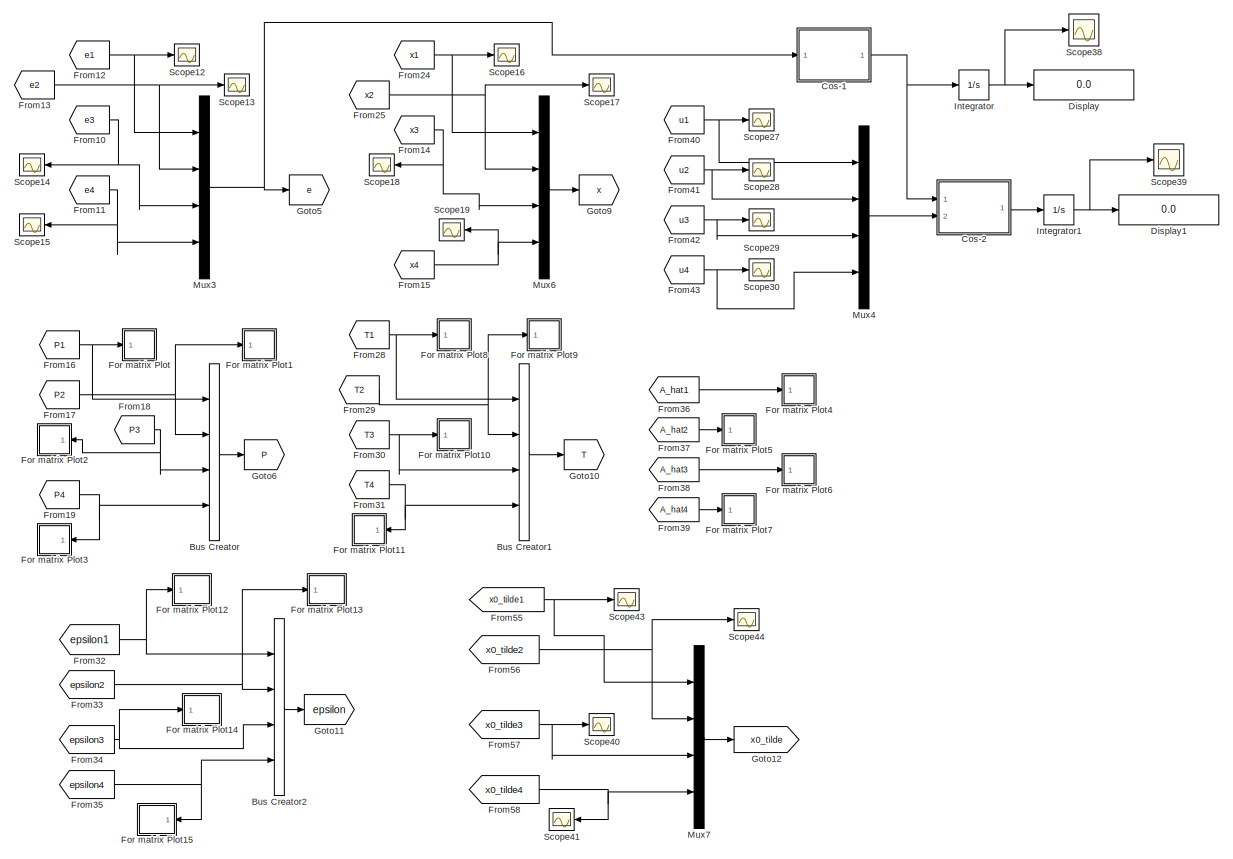
[diagram: Data Bus  - part 1/2, most of the canvas]
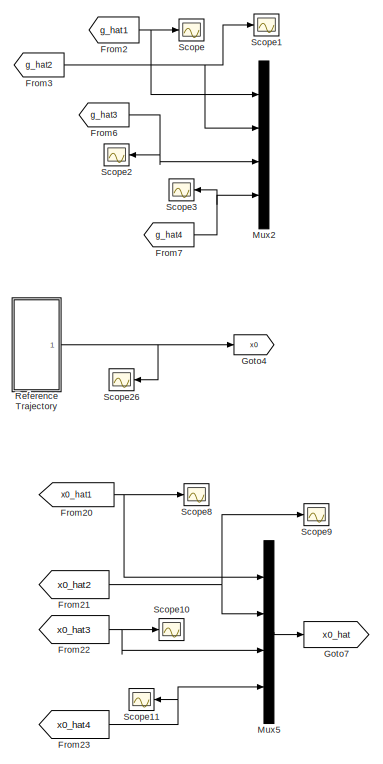
[diagram: Data Bus  - part 2/2, left side, full height]
BLOCK [SubSystem] Data Bus 
  Ports = []
  RequestExecContextInheritance = off
BLOCK [BusCreator] Data Bus /Bus Creator
  DisplayOption = bar
  InheritFromInputs = on
  Inputs = 4
  OutDataTypeStr = Bus: P_bus
  Ports = [4, 1]
BLOCK [BusCreator] Data Bus /Bus Creator1
  DisplayOption = bar
  InheritFromInputs = on
  Inputs = 4
  OutDataTypeStr = Bus: T_bus
  Ports = [4, 1]
BLOCK [BusCreator] Data Bus /Bus Creator2
  DisplayOption = bar
  InheritFromInputs = on
  Inputs = 4
  OutDataTypeStr = Bus: epsilon_bus
  Ports = [4, 1]
BLOCK [SubSystem] Data Bus /Cos-1
  ErrorFcn = Stateflow.Translate.translate
  PermitHierarchicalResolution = ExplicitOnly
  Ports = [1, 1]
  RequestExecContextInheritance = off
  SFBlockType = MATLAB Function
  TreatAsAtomicUnit = on
BLOCK [Demux] Data Bus /Cos-1/ Demux 
  Outputs = 1
  Ports = [1, 1]
BLOCK [S-Function] Data Bus /Cos-1/ SFunction 
  EnableBusSupport = on
  FunctionName = sf_sfun
  PortCounts = [1 2]
  Ports = [1, 2]
  SFcnIsStateOwnerBlock = off
  SFunctionDeploymentMode = off
  Tag = Stateflow S-Function CAMFC2_04_simple 52
BLOCK [Terminator] Data Bus /Cos-1/ Terminator 
BLOCK [Inport] Data Bus /Cos-1/E
  IconDisplay = Port number
BLOCK [Outport] Data Bus /Cos-1/out
  IconDisplay = Port number
BLOCK [SubSystem] Data Bus /Cos-2
  ErrorFcn = Stateflow.Translate.translate
  PermitHierarchicalResolution = ExplicitOnly
  Ports = [2, 1]
  RequestExecContextInheritance = off
  SFBlockType = MATLAB Function
  TreatAsAtomicUnit = on
BLOCK [Demux] Data Bus /Cos-2/ Demux 
  Outputs = 1
  Ports = [1, 1]
BLOCK [S-Function] Data Bus /Cos-2/ SFunction 
  EnableBusSupport = on
  FunctionName = sf_sfun
  PortCounts = [2 2]
  Ports = [2, 2]
  SFcnIsStateOwnerBlock = off
  SFunctionDeploymentMode = off
  Tag = Stateflow S-Function CAMFC2_04_simple 86
BLOCK [Terminator] Data Bus /Cos-2/ Terminator 
BLOCK [Inport] Data Bus /Cos-2/Es
  IconDisplay = Port number
BLOCK [Inport] Data Bus /Cos-2/U
  IconDisplay = Port number
  Port = 2
BLOCK [Outport] Data Bus /Cos-2/out
  IconDisplay = Port number
BLOCK [Display] Data Bus /Display
  Decimation = 1
  Ports = [1]
BLOCK [Display] Data Bus /Display1
  Decimation = 1
  Ports = [1]
BLOCK [SubSystem] Data Bus /For matrix Plot
  Ports = [1]
  RequestExecContextInheritance = off
BLOCK [SubSystem] Data Bus /For matrix Plot/MATLAB Function
  ErrorFcn = Stateflow.Translate.translate
  PermitHierarchicalResolution = ExplicitOnly
  Ports = [1, 1]
  RequestExecContextInheritance = off
  SFBlockType = MATLAB Function
  TreatAsAtomicUnit = on
BLOCK [Demux] Data Bus /For matrix Plot/MATLAB Function/ Demux 
  Outputs = 1
  Ports = [1, 1]
BLOCK [S-Function] Data Bus /For matrix Plot/MATLAB Function/ SFunction 
  EnableBusSupport = on
  FunctionName = sf_sfun
  PortCounts = [1 2]
  Ports = [1, 2]
  SFcnIsStateOwnerBlock = off
  SFunctionDeploymentMode = off
  Tag = Stateflow S-Function CAMFC2_04_simple 65
BLOCK [Terminator] Data Bus /For matrix Plot/MATLAB Function/ Terminator 
BLOCK [Inport] Data Bus /For matrix Plot/MATLAB Function/u
  IconDisplay = Port number
BLOCK [Outport] Data Bus /For matrix Plot/MATLAB Function/y
  IconDisplay = Port number
BLOCK [Inport] Data Bus /For matrix Plot/P
  IconDisplay = Port number
BLOCK [Scope] Data Bus /For matrix Plot/Scope17
  Floating = off
  NumInputPorts = 1
  Ports = [1]
  ScopeSpecificationString = Simulink.scopes.TimeScopeBlockCfg('CurrentConfiguration', extmgr.ConfigurationSet(extmgr.Configuration('Core','General UI',true),extmgr.Configuration('Core','Source UI',true),extmgr.Configuration('Sources','WiredSimulink',true,'DataLoggingVariableName','ScopeData3','DataLoggingSaveFormat','StructureWithTime','DataLoggingDecimation','1','DataLoggingDecimateData',true),extmgr.Configuration('Visuals'...<+1785ch>
BLOCK [ToWorkspace] Data Bus /For matrix Plot/To Workspace
  MaxDataPoints = inf
  Ports = [1]
  SampleTime = -1
  SaveFormat = Structure With Time
  VariableName = P1
BLOCK [SubSystem] Data Bus /For matrix Plot1
  Ports = [1]
  RequestExecContextInheritance = off
BLOCK [SubSystem] Data Bus /For matrix Plot1/MATLAB Function
  ErrorFcn = Stateflow.Translate.translate
  PermitHierarchicalResolution = ExplicitOnly
  Ports = [1, 1]
  RequestExecContextInheritance = off
  SFBlockType = MATLAB Function
  TreatAsAtomicUnit = on
BLOCK [Demux] Data Bus /For matrix Plot1/MATLAB Function/ Demux 
  Outputs = 1
  Ports = [1, 1]
BLOCK [S-Function] Data Bus /For matrix Plot1/MATLAB Function/ SFunction 
  EnableBusSupport = on
  FunctionName = sf_sfun
  PortCounts = [1 2]
  Ports = [1, 2]
  SFcnIsStateOwnerBlock = off
  SFunctionDeploymentMode = off
  Tag = Stateflow S-Function CAMFC2_04_simple 54
BLOCK [Terminator] Data Bus /For matrix Plot1/MATLAB Function/ Terminator 
BLOCK [Inport] Data Bus /For matrix Plot1/MATLAB Function/u
  IconDisplay = Port number
BLOCK [Outport] Data Bus /For matrix Plot1/MATLAB Function/y
  IconDisplay = Port number
BLOCK [Inport] Data Bus /For matrix Plot1/P
  IconDisplay = Port number
BLOCK [ToWorkspace] Data Bus /For matrix Plot1/To Workspace
  MaxDataPoints = inf
  Ports = [1]
  SampleTime = -1
  SaveFormat = Structure With Time
  VariableName = P2
BLOCK [SubSystem] Data Bus /For matrix Plot10
  Ports = [1]
  RequestExecContextInheritance = off
BLOCK [SubSystem] Data Bus /For matrix Plot10/MATLAB Function
  ErrorFcn = Stateflow.Translate.translate
  PermitHierarchicalResolution = ExplicitOnly
  Ports = [1, 1]
  RequestExecContextInheritance = off
  SFBlockType = MATLAB Function
  TreatAsAtomicUnit = on
BLOCK [Demux] Data Bus /For matrix Plot10/MATLAB Function/ Demux 
  Outputs = 1
  Ports = [1, 1]
BLOCK [S-Function] Data Bus /For matrix Plot10/MATLAB Function/ SFunction 
  EnableBusSupport = on
  FunctionName = sf_sfun
  PortCounts = [1 2]
  Ports = [1, 2]
  SFcnIsStateOwnerBlock = off
  SFunctionDeploymentMode = off
  Tag = Stateflow S-Function CAMFC2_04_simple 66
BLOCK [Terminator] Data Bus /For matrix Plot10/MATLAB Function/ Terminator 
BLOCK [Inport] Data Bus /For matrix Plot10/MATLAB Function/u
  IconDisplay = Port number
BLOCK [Outport] Data Bus /For matrix Plot10/MATLAB Function/y
  IconDisplay = Port number
BLOCK [Inport] Data Bus /For matrix Plot10/T
  IconDisplay = Port number
BLOCK [ToWorkspace] Data Bus /For matrix Plot10/To Workspace
  MaxDataPoints = inf
  Ports = [1]
  SampleTime = -1
  SaveFormat = Structure With Time
  VariableName = T3
BLOCK [SubSystem] Data Bus /For matrix Plot11
  Ports = [1]
  RequestExecContextInheritance = off
BLOCK [SubSystem] Data Bus /For matrix Plot11/MATLAB Function
  ErrorFcn = Stateflow.Translate.translate
  PermitHierarchicalResolution = ExplicitOnly
  Ports = [1, 1]
  RequestExecContextInheritance = off
  SFBlockType = MATLAB Function
  TreatAsAtomicUnit = on
BLOCK [Demux] Data Bus /For matrix Plot11/MATLAB Function/ Demux 
  Outputs = 1
  Ports = [1, 1]
BLOCK [S-Function] Data Bus /For matrix Plot11/MATLAB Function/ SFunction 
  EnableBusSupport = on
  FunctionName = sf_sfun
  PortCounts = [1 2]
  Ports = [1, 2]
  SFcnIsStateOwnerBlock = off
  SFunctionDeploymentMode = off
  Tag = Stateflow S-Function CAMFC2_04_simple 67
BLOCK [Terminator] Data Bus /For matrix Plot11/MATLAB Function/ Terminator 
BLOCK [Inport] Data Bus /For matrix Plot11/MATLAB Function/u
  IconDisplay = Port number
BLOCK [Outport] Data Bus /For matrix Plot11/MATLAB Function/y
  IconDisplay = Port number
BLOCK [Inport] Data Bus /For matrix Plot11/T
  IconDisplay = Port number
BLOCK [ToWorkspace] Data Bus /For matrix Plot11/To Workspace
  MaxDataPoints = inf
  Ports = [1]
  SampleTime = -1
  SaveFormat = Structure With Time
  VariableName = T4
BLOCK [SubSystem] Data Bus /For matrix Plot12
  Ports = [1]
  RequestExecContextInheritance = off
BLOCK [SubSystem] Data Bus /For matrix Plot12/MATLAB Function
  ErrorFcn = Stateflow.Translate.translate
  PermitHierarchicalResolution = ExplicitOnly
  Ports = [1, 1]
  RequestExecContextInheritance = off
  SFBlockType = MATLAB Function
  TreatAsAtomicUnit = on
BLOCK [Demux] Data Bus /For matrix Plot12/MATLAB Function/ Demux 
  Outputs = 1
  Ports = [1, 1]
BLOCK [S-Function] Data Bus /For matrix Plot12/MATLAB Function/ SFunction 
  EnableBusSupport = on
  FunctionName = sf_sfun
  PortCounts = [1 2]
  Ports = [1, 2]
  SFcnIsStateOwnerBlock = off
  SFunctionDeploymentMode = off
  Tag = Stateflow S-Function CAMFC2_04_simple 68
BLOCK [Terminator] Data Bus /For matrix Plot12/MATLAB Function/ Terminator 
BLOCK [Inport] Data Bus /For matrix Plot12/MATLAB Function/u
  IconDisplay = Port number
BLOCK [Outport] Data Bus /For matrix Plot12/MATLAB Function/y
  IconDisplay = Port number
BLOCK [ToWorkspace] Data Bus /For matrix Plot12/To Workspace
  MaxDataPoints = inf
  Ports = [1]
  SampleTime = -1
  SaveFormat = Structure With Time
  VariableName = epsilon1
BLOCK [Inport] Data Bus /For matrix Plot12/epsilon
  IconDisplay = Port number
BLOCK [SubSystem] Data Bus /For matrix Plot13
  Ports = [1]
  RequestExecContextInheritance = off
BLOCK [SubSystem] Data Bus /For matrix Plot13/MATLAB Function
  ErrorFcn = Stateflow.Translate.translate
  PermitHierarchicalResolution = ExplicitOnly
  Ports = [1, 1]
  RequestExecContextInheritance = off
  SFBlockType = MATLAB Function
  TreatAsAtomicUnit = on
BLOCK [Demux] Data Bus /For matrix Plot13/MATLAB Function/ Demux 
  Outputs = 1
  Ports = [1, 1]
BLOCK [S-Function] Data Bus /For matrix Plot13/MATLAB Function/ SFunction 
  EnableBusSupport = on
  FunctionName = sf_sfun
  PortCounts = [1 2]
  Ports = [1, 2]
  SFcnIsStateOwnerBlock = off
  SFunctionDeploymentMode = off
  Tag = Stateflow S-Function CAMFC2_04_simple 70
BLOCK [Terminator] Data Bus /For matrix Plot13/MATLAB Function/ Terminator 
BLOCK [Inport] Data Bus /For matrix Plot13/MATLAB Function/u
  IconDisplay = Port number
BLOCK [Outport] Data Bus /For matrix Plot13/MATLAB Function/y
  IconDisplay = Port number
BLOCK [ToWorkspace] Data Bus /For matrix Plot13/To Workspace
  MaxDataPoints = inf
  Ports = [1]
  SampleTime = -1
  SaveFormat = Structure With Time
  VariableName = epsilon2
BLOCK [Inport] Data Bus /For matrix Plot13/epsilon
  IconDisplay = Port number
BLOCK [SubSystem] Data Bus /For matrix Plot14
  Ports = [1]
  RequestExecContextInheritance = off
BLOCK [SubSystem] Data Bus /For matrix Plot14/MATLAB Function
  ErrorFcn = Stateflow.Translate.translate
  PermitHierarchicalResolution = ExplicitOnly
  Ports = [1, 1]
  RequestExecContextInheritance = off
  SFBlockType = MATLAB Function
  TreatAsAtomicUnit = on
BLOCK [Demux] Data Bus /For matrix Plot14/MATLAB Function/ Demux 
  Outputs = 1
  Ports = [1, 1]
BLOCK [S-Function] Data Bus /For matrix Plot14/MATLAB Function/ SFunction 
  EnableBusSupport = on
  FunctionName = sf_sfun
  PortCounts = [1 2]
  Ports = [1, 2]
  SFcnIsStateOwnerBlock = off
  SFunctionDeploymentMode = off
  Tag = Stateflow S-Function CAMFC2_04_simple 73
BLOCK [Terminator] Data Bus /For matrix Plot14/MATLAB Function/ Terminator 
BLOCK [Inport] Data Bus /For matrix Plot14/MATLAB Function/u
  IconDisplay = Port number
BLOCK [Outport] Data Bus /For matrix Plot14/MATLAB Function/y
  IconDisplay = Port number
BLOCK [ToWorkspace] Data Bus /For matrix Plot14/To Workspace
  MaxDataPoints = inf
  Ports = [1]
  SampleTime = -1
  SaveFormat = Structure With Time
  VariableName = epsilon3
BLOCK [Inport] Data Bus /For matrix Plot14/epsilon
  IconDisplay = Port number
BLOCK [SubSystem] Data Bus /For matrix Plot15
  Ports = [1]
  RequestExecContextInheritance = off
BLOCK [SubSystem] Data Bus /For matrix Plot15/MATLAB Function
  ErrorFcn = Stateflow.Translate.translate
  PermitHierarchicalResolution = ExplicitOnly
  Ports = [1, 1]
  RequestExecContextInheritance = off
  SFBlockType = MATLAB Function
  TreatAsAtomicUnit = on
BLOCK [Demux] Data Bus /For matrix Plot15/MATLAB Function/ Demux 
  Outputs = 1
  Ports = [1, 1]
BLOCK [S-Function] Data Bus /For matrix Plot15/MATLAB Function/ SFunction 
  EnableBusSupport = on
  FunctionName = sf_sfun
  PortCounts = [1 2]
  Ports = [1, 2]
  SFcnIsStateOwnerBlock = off
  SFunctionDeploymentMode = off
  Tag = Stateflow S-Function CAMFC2_04_simple 74
BLOCK [Terminator] Data Bus /For matrix Plot15/MATLAB Function/ Terminator 
BLOCK [Inport] Data Bus /For matrix Plot15/MATLAB Function/u
  IconDisplay = Port number
BLOCK [Outport] Data Bus /For matrix Plot15/MATLAB Function/y
  IconDisplay = Port number
BLOCK [ToWorkspace] Data Bus /For matrix Plot15/To Workspace
  MaxDataPoints = inf
  Ports = [1]
  SampleTime = -1
  SaveFormat = Structure With Time
  VariableName = epsilon4
BLOCK [Inport] Data Bus /For matrix Plot15/epsilon
  IconDisplay = Port number
BLOCK [SubSystem] Data Bus /For matrix Plot2
  Ports = [1]
  RequestExecContextInheritance = off
BLOCK [SubSystem] Data Bus /For matrix Plot2/MATLAB Function
  ErrorFcn = Stateflow.Translate.translate
  PermitHierarchicalResolution = ExplicitOnly
  Ports = [1, 1]
  RequestExecContextInheritance = off
  SFBlockType = MATLAB Function
  TreatAsAtomicUnit = on
BLOCK [Demux] Data Bus /For matrix Plot2/MATLAB Function/ Demux 
  Outputs = 1
  Ports = [1, 1]
BLOCK [S-Function] Data Bus /For matrix Plot2/MATLAB Function/ SFunction 
  EnableBusSupport = on
  FunctionName = sf_sfun
  PortCounts = [1 2]
  Ports = [1, 2]
  SFcnIsStateOwnerBlock = off
  SFunctionDeploymentMode = off
  Tag = Stateflow S-Function CAMFC2_04_simple 55
BLOCK [Terminator] Data Bus /For matrix Plot2/MATLAB Function/ Terminator 
BLOCK [Inport] Data Bus /For matrix Plot2/MATLAB Function/u
  IconDisplay = Port number
BLOCK [Outport] Data Bus /For matrix Plot2/MATLAB Function/y
  IconDisplay = Port number
BLOCK [Inport] Data Bus /For matrix Plot2/P
  IconDisplay = Port number
BLOCK [ToWorkspace] Data Bus /For matrix Plot2/To Workspace
  MaxDataPoints = inf
  Ports = [1]
  SampleTime = -1
  SaveFormat = Structure With Time
  VariableName = P3
BLOCK [SubSystem] Data Bus /For matrix Plot3
  Ports = [1]
  RequestExecContextInheritance = off
BLOCK [SubSystem] Data Bus /For matrix Plot3/MATLAB Function
  ErrorFcn = Stateflow.Translate.translate
  PermitHierarchicalResolution = ExplicitOnly
  Ports = [1, 1]
  RequestExecContextInheritance = off
  SFBlockType = MATLAB Function
  TreatAsAtomicUnit = on
BLOCK [Demux] Data Bus /For matrix Plot3/MATLAB Function/ Demux 
  Outputs = 1
  Ports = [1, 1]
BLOCK [S-Function] Data Bus /For matrix Plot3/MATLAB Function/ SFunction 
  EnableBusSupport = on
  FunctionName = sf_sfun
  PortCounts = [1 2]
  Ports = [1, 2]
  SFcnIsStateOwnerBlock = off
  SFunctionDeploymentMode = off
  Tag = Stateflow S-Function CAMFC2_04_simple 56
BLOCK [Terminator] Data Bus /For matrix Plot3/MATLAB Function/ Terminator 
BLOCK [Inport] Data Bus /For matrix Plot3/MATLAB Function/u
  IconDisplay = Port number
BLOCK [Outport] Data Bus /For matrix Plot3/MATLAB Function/y
  IconDisplay = Port number
BLOCK [Inport] Data Bus /For matrix Plot3/P
  IconDisplay = Port number
BLOCK [Scope] Data Bus /For matrix Plot3/Scope17
  Floating = off
  NumInputPorts = 1
  Ports = [1]
  ScopeSpecificationString = Simulink.scopes.TimeScopeBlockCfg('CurrentConfiguration', extmgr.ConfigurationSet(extmgr.Configuration('Core','General UI',true),extmgr.Configuration('Core','Source UI',true),extmgr.Configuration('Sources','WiredSimulink',true,'DataLoggingVariableName','ScopeData1','DataLoggingSaveFormat','StructureWithTime','DataLoggingDecimation','1','DataLoggingDecimateData',true),extmgr.Configuration('Visuals'...<+1777ch>
BLOCK [ToWorkspace] Data Bus /For matrix Plot3/To Workspace
  MaxDataPoints = inf
  Ports = [1]
  SampleTime = -1
  SaveFormat = Structure With Time
  VariableName = P4
BLOCK [SubSystem] Data Bus /For matrix Plot4
  Ports = [1]
  RequestExecContextInheritance = off
BLOCK [Inport] Data Bus /For matrix Plot4/A_hat
  IconDisplay = Port number
BLOCK [SubSystem] Data Bus /For matrix Plot4/MATLAB Function
  ErrorFcn = Stateflow.Translate.translate
  PermitHierarchicalResolution = ExplicitOnly
  Ports = [1, 1]
  RequestExecContextInheritance = off
  SFBlockType = MATLAB Function
  TreatAsAtomicUnit = on
BLOCK [Demux] Data Bus /For matrix Plot4/MATLAB Function/ Demux 
  Outputs = 1
  Ports = [1, 1]
BLOCK [S-Function] Data Bus /For matrix Plot4/MATLAB Function/ SFunction 
  EnableBusSupport = on
  FunctionName = sf_sfun
  PortCounts = [1 2]
  Ports = [1, 2]
  SFcnIsStateOwnerBlock = off
  SFunctionDeploymentMode = off
  Tag = Stateflow S-Function CAMFC2_04_simple 57
BLOCK [Terminator] Data Bus /For matrix Plot4/MATLAB Function/ Terminator 
BLOCK [Inport] Data Bus /For matrix Plot4/MATLAB Function/u
  IconDisplay = Port number
BLOCK [Outport] Data Bus /For matrix Plot4/MATLAB Function/y
  IconDisplay = Port number
BLOCK [Scope] Data Bus /For matrix Plot4/Scope17
  Floating = off
  NumInputPorts = 1
  Ports = [1]
  ScopeSpecificationString = Simulink.scopes.TimeScopeBlockCfg('CurrentConfiguration', extmgr.ConfigurationSet(extmgr.Configuration('Core','General UI',true),extmgr.Configuration('Core','Source UI',true),extmgr.Configuration('Sources','WiredSimulink',true,'DataLoggingVariableName','ScopeData2','DataLoggingSaveFormat','StructureWithTime','DataLoggingDecimation','1','DataLoggingDecimateData',true),extmgr.Configuration('Visuals'...<+1785ch>
BLOCK [ToWorkspace] Data Bus /For matrix Plot4/To Workspace
  MaxDataPoints = inf
  Ports = [1]
  SampleTime = -1
  SaveFormat = Structure With Time
  VariableName = A_hat1
BLOCK [SubSystem] Data Bus /For matrix Plot5
  Ports = [1]
  RequestExecContextInheritance = off
BLOCK [Inport] Data Bus /For matrix Plot5/A_hat
  IconDisplay = Port number
BLOCK [SubSystem] Data Bus /For matrix Plot5/MATLAB Function
  ErrorFcn = Stateflow.Translate.translate
  PermitHierarchicalResolution = ExplicitOnly
  Ports = [1, 1]
  RequestExecContextInheritance = off
  SFBlockType = MATLAB Function
  TreatAsAtomicUnit = on
BLOCK [Demux] Data Bus /For matrix Plot5/MATLAB Function/ Demux 
  Outputs = 1
  Ports = [1, 1]
BLOCK [S-Function] Data Bus /For matrix Plot5/MATLAB Function/ SFunction 
  EnableBusSupport = on
  FunctionName = sf_sfun
  PortCounts = [1 2]
  Ports = [1, 2]
  SFcnIsStateOwnerBlock = off
  SFunctionDeploymentMode = off
  Tag = Stateflow S-Function CAMFC2_04_simple 58
BLOCK [Terminator] Data Bus /For matrix Plot5/MATLAB Function/ Terminator 
BLOCK [Inport] Data Bus /For matrix Plot5/MATLAB Function/u
  IconDisplay = Port number
BLOCK [Outport] Data Bus /For matrix Plot5/MATLAB Function/y
  IconDisplay = Port number
BLOCK [ToWorkspace] Data Bus /For matrix Plot5/To Workspace
  MaxDataPoints = inf
  Ports = [1]
  SampleTime = -1
  SaveFormat = Structure With Time
  VariableName = A_hat2
BLOCK [SubSystem] Data Bus /For matrix Plot6
  Ports = [1]
  RequestExecContextInheritance = off
BLOCK [Inport] Data Bus /For matrix Plot6/A_hat
  IconDisplay = Port number
BLOCK [SubSystem] Data Bus /For matrix Plot6/MATLAB Function
  ErrorFcn = Stateflow.Translate.translate
  PermitHierarchicalResolution = ExplicitOnly
  Ports = [1, 1]
  RequestExecContextInheritance = off
  SFBlockType = MATLAB Function
  TreatAsAtomicUnit = on
BLOCK [Demux] Data Bus /For matrix Plot6/MATLAB Function/ Demux 
  Outputs = 1
  Ports = [1, 1]
BLOCK [S-Function] Data Bus /For matrix Plot6/MATLAB Function/ SFunction 
  EnableBusSupport = on
  FunctionName = sf_sfun
  PortCounts = [1 2]
  Ports = [1, 2]
  SFcnIsStateOwnerBlock = off
  SFunctionDeploymentMode = off
  Tag = Stateflow S-Function CAMFC2_04_simple 59
BLOCK [Terminator] Data Bus /For matrix Plot6/MATLAB Function/ Terminator 
BLOCK [Inport] Data Bus /For matrix Plot6/MATLAB Function/u
  IconDisplay = Port number
BLOCK [Outport] Data Bus /For matrix Plot6/MATLAB Function/y
  IconDisplay = Port number
BLOCK [ToWorkspace] Data Bus /For matrix Plot6/To Workspace
  MaxDataPoints = inf
  Ports = [1]
  SampleTime = -1
  SaveFormat = Structure With Time
  VariableName = A_hat3
BLOCK [SubSystem] Data Bus /For matrix Plot7
  Ports = [1]
  RequestExecContextInheritance = off
BLOCK [Inport] Data Bus /For matrix Plot7/A_hat
  IconDisplay = Port number
BLOCK [SubSystem] Data Bus /For matrix Plot7/MATLAB Function
  ErrorFcn = Stateflow.Translate.translate
  PermitHierarchicalResolution = ExplicitOnly
  Ports = [1, 1]
  RequestExecContextInheritance = off
  SFBlockType = MATLAB Function
  TreatAsAtomicUnit = on
BLOCK [Demux] Data Bus /For matrix Plot7/MATLAB Function/ Demux 
  Outputs = 1
  Ports = [1, 1]
BLOCK [S-Function] Data Bus /For matrix Plot7/MATLAB Function/ SFunction 
  EnableBusSupport = on
  FunctionName = sf_sfun
  PortCounts = [1 2]
  Ports = [1, 2]
  SFcnIsStateOwnerBlock = off
  SFunctionDeploymentMode = off
  Tag = Stateflow S-Function CAMFC2_04_simple 60
BLOCK [Terminator] Data Bus /For matrix Plot7/MATLAB Function/ Terminator 
BLOCK [Inport] Data Bus /For matrix Plot7/MATLAB Function/u
  IconDisplay = Port number
BLOCK [Outport] Data Bus /For matrix Plot7/MATLAB Function/y
  IconDisplay = Port number
BLOCK [Scope] Data Bus /For matrix Plot7/Scope17
  Floating = off
  NumInputPorts = 1
  Ports = [1]
  ScopeSpecificationString = Simulink.scopes.TimeScopeBlockCfg('CurrentConfiguration', extmgr.ConfigurationSet(extmgr.Configuration('Core','General UI',true),extmgr.Configuration('Core','Source UI',true),extmgr.Configuration('Sources','WiredSimulink',true,'DataLoggingVariableName','ScopeData2','DataLoggingSaveFormat','StructureWithTime','DataLoggingDecimation','1','DataLoggingDecimateData',true),extmgr.Configuration('Visuals'...<+1785ch>
BLOCK [ToWorkspace] Data Bus /For matrix Plot7/To Workspace
  MaxDataPoints = inf
  Ports = [1]
  SampleTime = -1
  SaveFormat = Structure With Time
  VariableName = A_hat4
BLOCK [SubSystem] Data Bus /For matrix Plot8
  Ports = [1]
  RequestExecContextInheritance = off
BLOCK [SubSystem] Data Bus /For matrix Plot8/MATLAB Function
  ErrorFcn = Stateflow.Translate.translate
  PermitHierarchicalResolution = ExplicitOnly
  Ports = [1, 1]
  RequestExecContextInheritance = off
  SFBlockType = MATLAB Function
  TreatAsAtomicUnit = on
BLOCK [Demux] Data Bus /For matrix Plot8/MATLAB Function/ Demux 
  Outputs = 1
  Ports = [1, 1]
BLOCK [S-Function] Data Bus /For matrix Plot8/MATLAB Function/ SFunction 
  EnableBusSupport = on
  FunctionName = sf_sfun
  PortCounts = [1 2]
  Ports = [1, 2]
  SFcnIsStateOwnerBlock = off
  SFunctionDeploymentMode = off
  Tag = Stateflow S-Function CAMFC2_04_simple 61
BLOCK [Terminator] Data Bus /For matrix Plot8/MATLAB Function/ Terminator 
BLOCK [Inport] Data Bus /For matrix Plot8/MATLAB Function/u
  IconDisplay = Port number
BLOCK [Outport] Data Bus /For matrix Plot8/MATLAB Function/y
  IconDisplay = Port number
BLOCK [Scope] Data Bus /For matrix Plot8/Scope17
  Floating = off
  NumInputPorts = 1
  Ports = [1]
  ScopeSpecificationString = Simulink.scopes.TimeScopeBlockCfg('CurrentConfiguration', extmgr.ConfigurationSet(extmgr.Configuration('Core','General UI',true),extmgr.Configuration('Core','Source UI',true),extmgr.Configuration('Sources','WiredSimulink',true,'DataLoggingVariableName','ScopeData1','DataLoggingSaveFormat','StructureWithTime','DataLoggingDecimation','1','DataLoggingDecimateData',true),extmgr.Configuration('Visuals'...<+1922ch>
BLOCK [Inport] Data Bus /For matrix Plot8/T
  IconDisplay = Port number
BLOCK [ToWorkspace] Data Bus /For matrix Plot8/To Workspace
  MaxDataPoints = inf
  Ports = [1]
  SampleTime = -1
  SaveFormat = Structure With Time
  VariableName = T1
BLOCK [SubSystem] Data Bus /For matrix Plot9
  Ports = [1]
  RequestExecContextInheritance = off
BLOCK [SubSystem] Data Bus /For matrix Plot9/MATLAB Function
  ErrorFcn = Stateflow.Translate.translate
  PermitHierarchicalResolution = ExplicitOnly
  Ports = [1, 1]
  RequestExecContextInheritance = off
  SFBlockType = MATLAB Function
  TreatAsAtomicUnit = on
BLOCK [Demux] Data Bus /For matrix Plot9/MATLAB Function/ Demux 
  Outputs = 1
  Ports = [1, 1]
BLOCK [S-Function] Data Bus /For matrix Plot9/MATLAB Function/ SFunction 
  EnableBusSupport = on
  FunctionName = sf_sfun
  PortCounts = [1 2]
  Ports = [1, 2]
  SFcnIsStateOwnerBlock = off
  SFunctionDeploymentMode = off
  Tag = Stateflow S-Function CAMFC2_04_simple 62
BLOCK [Terminator] Data Bus /For matrix Plot9/MATLAB Function/ Terminator 
BLOCK [Inport] Data Bus /For matrix Plot9/MATLAB Function/u
  IconDisplay = Port number
BLOCK [Outport] Data Bus /For matrix Plot9/MATLAB Function/y
  IconDisplay = Port number
BLOCK [Inport] Data Bus /For matrix Plot9/T
  IconDisplay = Port number
BLOCK [ToWorkspace] Data Bus /For matrix Plot9/To Workspace
  MaxDataPoints = inf
  Ports = [1]
  SampleTime = -1
  SaveFormat = Structure With Time
  VariableName = T2
BLOCK [From] Data Bus /From10
  GotoTag = e3
  TagVisibility = global
BLOCK [From] Data Bus /From11
  GotoTag = e4
  TagVisibility = global
BLOCK [From] Data Bus /From12
  GotoTag = e1
  TagVisibility = global
BLOCK [From] Data Bus /From13
  GotoTag = e2
  TagVisibility = global
BLOCK [From] Data Bus /From14
  GotoTag = x3
  TagVisibility = global
BLOCK [From] Data Bus /From15
  GotoTag = x4
  TagVisibility = global
BLOCK [From] Data Bus /From16
  GotoTag = P1
  TagVisibility = global
BLOCK [From] Data Bus /From17
  GotoTag = P2
  TagVisibility = global
BLOCK [From] Data Bus /From18
  GotoTag = P3
  TagVisibility = global
BLOCK [From] Data Bus /From19
  GotoTag = P4
  TagVisibility = global
BLOCK [From] Data Bus /From2
  GotoTag = g_hat1
  TagVisibility = global
BLOCK [From] Data Bus /From20
  GotoTag = x0_hat1
  TagVisibility = global
BLOCK [From] Data Bus /From21
  GotoTag = x0_hat2
  TagVisibility = global
BLOCK [From] Data Bus /From22
  GotoTag = x0_hat3
  TagVisibility = global
BLOCK [From] Data Bus /From23
  GotoTag = x0_hat4
  TagVisibility = global
BLOCK [From] Data Bus /From24
  GotoTag = x1
  TagVisibility = global
BLOCK [From] Data Bus /From25
  GotoTag = x2
  TagVisibility = global
BLOCK [From] Data Bus /From28
  GotoTag = T1
  TagVisibility = global
BLOCK [From] Data Bus /From29
  GotoTag = T2
  TagVisibility = global
BLOCK [From] Data Bus /From3
  GotoTag = g_hat2
  TagVisibility = global
BLOCK [From] Data Bus /From30
  GotoTag = T3
  TagVisibility = global
BLOCK [From] Data Bus /From31
  GotoTag = T4
  TagVisibility = global
BLOCK [From] Data Bus /From32
  GotoTag = epsilon1
  TagVisibility = global
BLOCK [From] Data Bus /From33
  GotoTag = epsilon2
  TagVisibility = global
BLOCK [From] Data Bus /From34
  GotoTag = epsilon3
  TagVisibility = global
BLOCK [From] Data Bus /From35
  GotoTag = epsilon4
  TagVisibility = global
BLOCK [From] Data Bus /From36
  GotoTag = A_hat1
  TagVisibility = global
BLOCK [From] Data Bus /From37
  GotoTag = A_hat2
  TagVisibility = global
BLOCK [From] Data Bus /From38
  GotoTag = A_hat3
  TagVisibility = global
BLOCK [From] Data Bus /From39
  GotoTag = A_hat4
  TagVisibility = global
BLOCK [From] Data Bus /From40
  GotoTag = u1
  TagVisibility = global
BLOCK [From] Data Bus /From41
  GotoTag = u2
  TagVisibility = global
BLOCK [From] Data Bus /From42
  GotoTag = u3
  TagVisibility = global
BLOCK [From] Data Bus /From43
  GotoTag = u4
  TagVisibility = global
BLOCK [From] Data Bus /From55
  GotoTag = x0_tilde1
  TagVisibility = global
BLOCK [From] Data Bus /From56
  GotoTag = x0_tilde2
  TagVisibility = global
BLOCK [From] Data Bus /From57
  GotoTag = x0_tilde3
  TagVisibility = global
BLOCK [From] Data Bus /From58
  GotoTag = x0_tilde4
  TagVisibility = global
BLOCK [From] Data Bus /From6
  GotoTag = g_hat3
  TagVisibility = global
BLOCK [From] Data Bus /From7
  GotoTag = g_hat4
  TagVisibility = global
BLOCK [Goto] Data Bus /Goto10
  GotoTag = T
  TagVisibility = global
BLOCK [Goto] Data Bus /Goto11
  GotoTag = epsilon
  TagVisibility = global
BLOCK [Goto] Data Bus /Goto12
  GotoTag = x0_tilde
  TagVisibility = global
BLOCK [Goto] Data Bus /Goto4
  GotoTag = x0
  TagVisibility = global
BLOCK [Goto] Data Bus /Goto5
  GotoTag = e
  TagVisibility = global
BLOCK [Goto] Data Bus /Goto6
  GotoTag = P
  TagVisibility = global
BLOCK [Goto] Data Bus /Goto7
  GotoTag = x0_hat
  TagVisibility = global
BLOCK [Goto] Data Bus /Goto9
  GotoTag = x
  TagVisibility = global
BLOCK [Integrator] Data Bus /Integrator
  Ports = [1, 1]
BLOCK [Integrator] Data Bus /Integrator1
  Ports = [1, 1]
BLOCK [Mux] Data Bus /Mux2
  DisplayOption = bar
  Ports = [4, 1]
BLOCK [Mux] Data Bus /Mux3
  DisplayOption = bar
  Ports = [4, 1]
BLOCK [Mux] Data Bus /Mux4
  DisplayOption = bar
  Ports = [4, 1]
BLOCK [Mux] Data Bus /Mux5
  DisplayOption = bar
  Ports = [4, 1]
BLOCK [Mux] Data Bus /Mux6
  DisplayOption = bar
  Ports = [4, 1]
BLOCK [Mux] Data Bus /Mux7
  DisplayOption = bar
  Ports = [4, 1]
BLOCK [SubSystem] Data Bus /Reference Trajectory
  Ports = [0, 1]
  RequestExecContextInheritance = off
BLOCK [Constant] Data Bus /Reference Trajectory/Constant
  Value = 0
BLOCK [Constant] Data Bus /Reference Trajectory/Constant1
  Value = 0
BLOCK [Constant] Data Bus /Reference Trajectory/Constant2
  Value = 2
BLOCK [Constant] Data Bus /Reference Trajectory/Constant3
  Value = 20
BLOCK [Constant] Data Bus /Reference Trajectory/Constant4
  Value = 0
BLOCK [Constant] Data Bus /Reference Trajectory/Constant5
BLOCK [Mux] Data Bus /Reference Trajectory/Mux
  DisplayOption = bar
  Inputs = 2
  Ports = [2, 1]
BLOCK [DiscretePulseGenerator] Data Bus /Reference Trajectory/Pulse Generator
  Amplitude = 2
  Period = 20
  Ports = [0, 1]
  PulseType = Time based
  PulseWidth = 50
BLOCK [Scope] Data Bus /Reference Trajectory/Scope1
  Floating = off
  NumInputPorts = 3
  Ports = [3]
  ScopeSpecificationString = C++SS(StrPVP('Location','[5, 49, 1367, 737]'),StrPVP('Open','off'),MxPVP('AxesTitles',53,'struct(''axes1'',''%<SignalLabel>'',''axes2'',''%<SignalLabel>'',''axes3'',''%<SignalLabel>'')'),MxPVP('ScopeGraphics',56,'struct(''FigureColor'',''[0.5 0.5 0.5]'',''AxesColor'',''[0 0 0]'',''AxesTickColor'',''[1 1 1]'',''LineColors'',''[1 1 0;1 0 1;0 1 1;1 0 0;0 1 0;0 0 1]'',''LineStyles'',''-|-|-|-|-|-'',''...<+406ch>
BLOCK [Outport] Data Bus /Reference Trajectory/X0
  IconDisplay = Port number
BLOCK [Sin] Data Bus /Reference Trajectory/X1
  Amplitude = 3
  Frequency = 0.5
  Ports = [0, 1]
  SampleTime = 0
BLOCK [Sin] Data Bus /Reference Trajectory/X2
  Amplitude = 3
  Frequency = 0.5
  Ports = [0, 1]
  SampleTime = 0
BLOCK [Scope] Data Bus /Scope
  Floating = off
  NumInputPorts = 1
  Ports = [1]
  ScopeSpecificationString = Simulink.scopes.TimeScopeBlockCfg('CurrentConfiguration', extmgr.ConfigurationSet(extmgr.Configuration('Core','General UI',true),extmgr.Configuration('Core','Source UI',true),extmgr.Configuration('Sources','WiredSimulink',true,'DataLogging',true,'DataLoggingVariableName','g_hat1','DataLoggingSaveFormat','StructureWithTime','DataLoggingDecimation','1','DataLoggingDecimateData',true),extmgr.Configur...<+1798ch>
BLOCK [Scope] Data Bus /Scope1
  Floating = off
  NumInputPorts = 1
  Ports = [1]
  ScopeSpecificationString = Simulink.scopes.TimeScopeBlockCfg('CurrentConfiguration', extmgr.ConfigurationSet(extmgr.Configuration('Core','General UI',true),extmgr.Configuration('Core','Source UI',true),extmgr.Configuration('Sources','WiredSimulink',true,'DataLogging',true,'DataLoggingVariableName','g_hat2','DataLoggingSaveFormat','StructureWithTime','DataLoggingDecimation','1','DataLoggingDecimateData',true),extmgr.Configur...<+1758ch>
BLOCK [Scope] Data Bus /Scope10
  Floating = off
  NumInputPorts = 1
  Ports = [1]
  ScopeSpecificationString = Simulink.scopes.TimeScopeBlockCfg('CurrentConfiguration', extmgr.ConfigurationSet(extmgr.Configuration('Core','General UI',true),extmgr.Configuration('Core','Source UI',true),extmgr.Configuration('Sources','WiredSimulink',true,'DataLogging',true,'DataLoggingVariableName','x0_hat3','DataLoggingSaveFormat','StructureWithTime','DataLoggingDecimation','1','DataLoggingDecimateData',true),extmgr.Configu...<+1707ch>
BLOCK [Scope] Data Bus /Scope11
  Floating = off
  NumInputPorts = 1
  Ports = [1]
  ScopeSpecificationString = Simulink.scopes.TimeScopeBlockCfg('CurrentConfiguration', extmgr.ConfigurationSet(extmgr.Configuration('Core','General UI',true),extmgr.Configuration('Core','Source UI',true),extmgr.Configuration('Sources','WiredSimulink',true,'DataLogging',true,'DataLoggingVariableName','x0_hat4','DataLoggingSaveFormat','StructureWithTime','DataLoggingDecimation','1','DataLoggingDecimateData',true),extmgr.Configu...<+1684ch>
BLOCK [Scope] Data Bus /Scope12
  Floating = off
  NumInputPorts = 1
  Ports = [1]
  ScopeSpecificationString = Simulink.scopes.TimeScopeBlockCfg('CurrentConfiguration', extmgr.ConfigurationSet(extmgr.Configuration('Core','General UI',true),extmgr.Configuration('Core','Source UI',true),extmgr.Configuration('Sources','WiredSimulink',true,'DataLogging',true,'DataLoggingVariableName','e1','DataLoggingSaveFormat','StructureWithTime','DataLoggingDecimation','1','DataLoggingDecimateData',true),extmgr.Configuratio...<+1740ch>
BLOCK [Scope] Data Bus /Scope13
  Floating = off
  NumInputPorts = 1
  Ports = [1]
  ScopeSpecificationString = Simulink.scopes.TimeScopeBlockCfg('CurrentConfiguration', extmgr.ConfigurationSet(extmgr.Configuration('Core','General UI',true),extmgr.Configuration('Core','Source UI',true),extmgr.Configuration('Sources','WiredSimulink',true,'DataLogging',true,'DataLoggingVariableName','e2','DataLoggingSaveFormat','StructureWithTime','DataLoggingDecimation','1','DataLoggingDecimateData',true),extmgr.Configuratio...<+1738ch>
BLOCK [Scope] Data Bus /Scope14
  Floating = off
  NumInputPorts = 1
  Ports = [1]
  ScopeSpecificationString = Simulink.scopes.TimeScopeBlockCfg('CurrentConfiguration', extmgr.ConfigurationSet(extmgr.Configuration('Core','General UI',true),extmgr.Configuration('Core','Source UI',true),extmgr.Configuration('Sources','WiredSimulink',true,'DataLogging',true,'DataLoggingVariableName','e3','DataLoggingSaveFormat','StructureWithTime','DataLoggingDecimation','1','DataLoggingDecimateData',true),extmgr.Configuratio...<+1740ch>
BLOCK [Scope] Data Bus /Scope15
  Floating = off
  NumInputPorts = 1
  Ports = [1]
  ScopeSpecificationString = Simulink.scopes.TimeScopeBlockCfg('CurrentConfiguration', extmgr.ConfigurationSet(extmgr.Configuration('Core','General UI',true),extmgr.Configuration('Core','Source UI',true),extmgr.Configuration('Sources','WiredSimulink',true,'DataLogging',true,'DataLoggingVariableName','e4','DataLoggingSaveFormat','StructureWithTime','DataLoggingDecimation','1','DataLoggingDecimateData',true),extmgr.Configuratio...<+1740ch>
BLOCK [Scope] Data Bus /Scope16
  Floating = off
  NumInputPorts = 1
  Ports = [1]
  ScopeSpecificationString = Simulink.scopes.TimeScopeBlockCfg('CurrentConfiguration', extmgr.ConfigurationSet(extmgr.Configuration('Core','General UI',true),extmgr.Configuration('Core','Source UI',true),extmgr.Configuration('Sources','WiredSimulink',true,'DataLogging',true,'DataLoggingVariableName','x1','DataLoggingSaveFormat','StructureWithTime','DataLoggingDecimation','1','DataLoggingDecimateData',true),extmgr.Configuratio...<+1803ch>
BLOCK [Scope] Data Bus /Scope17
  Floating = off
  NumInputPorts = 1
  Ports = [1]
  ScopeSpecificationString = Simulink.scopes.TimeScopeBlockCfg('CurrentConfiguration', extmgr.ConfigurationSet(extmgr.Configuration('Core','General UI',true),extmgr.Configuration('Core','Source UI',true),extmgr.Configuration('Sources','WiredSimulink',true,'DataLogging',true,'DataLoggingVariableName','x2','DataLoggingSaveFormat','StructureWithTime','DataLoggingDecimation','1','DataLoggingDecimateData',true),extmgr.Configuratio...<+1727ch>
BLOCK [Scope] Data Bus /Scope18
  Floating = off
  NumInputPorts = 1
  Ports = [1]
  ScopeSpecificationString = Simulink.scopes.TimeScopeBlockCfg('CurrentConfiguration', extmgr.ConfigurationSet(extmgr.Configuration('Core','General UI',true),extmgr.Configuration('Core','Source UI',true),extmgr.Configuration('Sources','WiredSimulink',true,'DataLogging',true,'DataLoggingVariableName','x3','DataLoggingSaveFormat','StructureWithTime','DataLoggingDecimation','1','DataLoggingDecimateData',true),extmgr.Configuratio...<+1721ch>
BLOCK [Scope] Data Bus /Scope19
  Floating = off
  NumInputPorts = 1
  Ports = [1]
  ScopeSpecificationString = Simulink.scopes.TimeScopeBlockCfg('CurrentConfiguration', extmgr.ConfigurationSet(extmgr.Configuration('Core','General UI',true),extmgr.Configuration('Core','Source UI',true),extmgr.Configuration('Sources','WiredSimulink',true,'DataLogging',true,'DataLoggingVariableName','x4','DataLoggingSaveFormat','StructureWithTime','DataLoggingDecimation','1','DataLoggingDecimateData',true),extmgr.Configuratio...<+1754ch>
BLOCK [Scope] Data Bus /Scope2
  Floating = off
  NumInputPorts = 1
  Ports = [1]
  ScopeSpecificationString = Simulink.scopes.TimeScopeBlockCfg('CurrentConfiguration', extmgr.ConfigurationSet(extmgr.Configuration('Core','General UI',true),extmgr.Configuration('Core','Source UI',true),extmgr.Configuration('Sources','WiredSimulink',true,'DataLogging',true,'DataLoggingVariableName','g_hat3','DataLoggingSaveFormat','StructureWithTime','DataLoggingDecimation','1','DataLoggingDecimateData',true),extmgr.Configur...<+1708ch>
BLOCK [Scope] Data Bus /Scope26
  Floating = off
  NumInputPorts = 1
  Ports = [1]
  ScopeSpecificationString = Simulink.scopes.TimeScopeBlockCfg('CurrentConfiguration', extmgr.ConfigurationSet(extmgr.Configuration('Core','General UI',true),extmgr.Configuration('Core','Source UI',true),extmgr.Configuration('Sources','WiredSimulink',true,'DataLogging',true,'DataLoggingVariableName','x0','DataLoggingSaveFormat','StructureWithTime','DataLoggingDecimation','1','DataLoggingDecimateData',true),extmgr.Configuratio...<+1670ch>
BLOCK [Scope] Data Bus /Scope27
  Floating = off
  NumInputPorts = 1
  Ports = [1]
  ScopeSpecificationString = Simulink.scopes.TimeScopeBlockCfg('CurrentConfiguration', extmgr.ConfigurationSet(extmgr.Configuration('Core','General UI',true),extmgr.Configuration('Core','Source UI',true),extmgr.Configuration('Sources','WiredSimulink',true,'DataLogging',true,'DataLoggingVariableName','u1','DataLoggingSaveFormat','StructureWithTime','DataLoggingDecimation','1','DataLoggingDecimateData',true),extmgr.Configuratio...<+1787ch>
BLOCK [Scope] Data Bus /Scope28
  Floating = off
  NumInputPorts = 1
  Ports = [1]
  ScopeSpecificationString = Simulink.scopes.TimeScopeBlockCfg('CurrentConfiguration', extmgr.ConfigurationSet(extmgr.Configuration('Core','General UI',true),extmgr.Configuration('Core','Source UI',true),extmgr.Configuration('Sources','WiredSimulink',true,'DataLogging',true,'DataLoggingVariableName','u2','DataLoggingSaveFormat','StructureWithTime','DataLoggingDecimation','1','DataLoggingDecimateData',true),extmgr.Configuratio...<+1705ch>
BLOCK [Scope] Data Bus /Scope29
  Floating = off
  NumInputPorts = 1
  Ports = [1]
  ScopeSpecificationString = Simulink.scopes.TimeScopeBlockCfg('CurrentConfiguration', extmgr.ConfigurationSet(extmgr.Configuration('Core','General UI',true),extmgr.Configuration('Core','Source UI',true),extmgr.Configuration('Sources','WiredSimulink',true,'DataLogging',true,'DataLoggingVariableName','u3','DataLoggingSaveFormat','StructureWithTime','DataLoggingDecimation','1','DataLoggingDecimateData',true),extmgr.Configuratio...<+1754ch>
BLOCK [Scope] Data Bus /Scope3
  Floating = off
  NumInputPorts = 1
  Ports = [1]
  ScopeSpecificationString = Simulink.scopes.TimeScopeBlockCfg('CurrentConfiguration', extmgr.ConfigurationSet(extmgr.Configuration('Core','General UI',true),extmgr.Configuration('Core','Source UI',true),extmgr.Configuration('Sources','WiredSimulink',true,'DataLogging',true,'DataLoggingVariableName','g_hat4','DataLoggingSaveFormat','StructureWithTime','DataLoggingDecimation','1','DataLoggingDecimateData',true),extmgr.Configur...<+1706ch>
BLOCK [Scope] Data Bus /Scope30
  Floating = off
  NumInputPorts = 1
  Ports = [1]
  ScopeSpecificationString = Simulink.scopes.TimeScopeBlockCfg('CurrentConfiguration', extmgr.ConfigurationSet(extmgr.Configuration('Core','General UI',true),extmgr.Configuration('Core','Source UI',true),extmgr.Configuration('Sources','WiredSimulink',true,'DataLogging',true,'DataLoggingVariableName','u4','DataLoggingSaveFormat','StructureWithTime','DataLoggingDecimation','1','DataLoggingDecimateData',true),extmgr.Configuratio...<+1705ch>
BLOCK [Scope] Data Bus /Scope38
  Floating = off
  NumInputPorts = 1
  Ports = [1]
  ScopeSpecificationString = Simulink.scopes.TimeScopeBlockCfg('CurrentConfiguration', extmgr.ConfigurationSet(extmgr.Configuration('Core','General UI',true),extmgr.Configuration('Core','Source UI',true),extmgr.Configuration('Sources','WiredSimulink',true,'DataLoggingVariableName','ScopeData1','DataLoggingSaveFormat','StructureWithTime'),extmgr.Configuration('Visuals','Time Domain',true,'SerializedDisplays',{struct('MinYLimRe...<+1484ch>
BLOCK [Scope] Data Bus /Scope39
  Floating = off
  NumInputPorts = 1
  Ports = [1]
  ScopeSpecificationString = Simulink.scopes.TimeScopeBlockCfg('CurrentConfiguration', extmgr.ConfigurationSet(extmgr.Configuration('Core','General UI',true),extmgr.Configuration('Core','Source UI',true),extmgr.Configuration('Sources','WiredSimulink',true,'DataLoggingVariableName','ScopeData2','DataLoggingSaveFormat','StructureWithTime'),extmgr.Configuration('Visuals','Time Domain',true,'SerializedDisplays',{struct('MinYLimRe...<+1484ch>
BLOCK [Scope] Data Bus /Scope40
  Floating = off
  NumInputPorts = 1
  Ports = [1]
  ScopeSpecificationString = Simulink.scopes.TimeScopeBlockCfg('CurrentConfiguration', extmgr.ConfigurationSet(extmgr.Configuration('Core','General UI',true),extmgr.Configuration('Core','Source UI',true),extmgr.Configuration('Sources','WiredSimulink',true,'DataLogging',true,'DataLoggingVariableName','x0_tilde3','DataLoggingSaveFormat','StructureWithTime','DataLoggingDecimation','1','DataLoggingDecimateData',true),extmgr.Confi...<+1697ch>
BLOCK [Scope] Data Bus /Scope41
  Floating = off
  NumInputPorts = 1
  Ports = [1]
  ScopeSpecificationString = Simulink.scopes.TimeScopeBlockCfg('CurrentConfiguration', extmgr.ConfigurationSet(extmgr.Configuration('Core','General UI',true),extmgr.Configuration('Core','Source UI',true),extmgr.Configuration('Sources','WiredSimulink',true,'DataLogging',true,'DataLoggingVariableName','x0_tilde4','DataLoggingSaveFormat','StructureWithTime','DataLoggingDecimation','1','DataLoggingDecimateData',true),extmgr.Confi...<+1678ch>
BLOCK [Scope] Data Bus /Scope43
  Floating = off
  NumInputPorts = 1
  Ports = [1]
  ScopeSpecificationString = Simulink.scopes.TimeScopeBlockCfg('CurrentConfiguration', extmgr.ConfigurationSet(extmgr.Configuration('Core','General UI',true),extmgr.Configuration('Core','Source UI',true),extmgr.Configuration('Sources','WiredSimulink',true,'DataLogging',true,'DataLoggingVariableName','x0_tilde1','DataLoggingSaveFormat','StructureWithTime','DataLoggingDecimation','1','DataLoggingDecimateData',true),extmgr.Confi...<+1701ch>
BLOCK [Scope] Data Bus /Scope44
  Floating = off
  NumInputPorts = 1
  Ports = [1]
  ScopeSpecificationString = Simulink.scopes.TimeScopeBlockCfg('CurrentConfiguration', extmgr.ConfigurationSet(extmgr.Configuration('Core','General UI',true),extmgr.Configuration('Core','Source UI',true),extmgr.Configuration('Sources','WiredSimulink',true,'DataLogging',true,'DataLoggingVariableName','x0_tilde2','DataLoggingSaveFormat','StructureWithTime','DataLoggingDecimation','1','DataLoggingDecimateData',true),extmgr.Confi...<+1676ch>
BLOCK [Scope] Data Bus /Scope8
  Floating = off
  NumInputPorts = 1
  Ports = [1]
  ScopeSpecificationString = Simulink.scopes.TimeScopeBlockCfg('CurrentConfiguration', extmgr.ConfigurationSet(extmgr.Configuration('Core','General UI',true),extmgr.Configuration('Core','Source UI',true),extmgr.Configuration('Sources','WiredSimulink',true,'DataLogging',true,'DataLoggingVariableName','x0_hat1','DataLoggingSaveFormat','StructureWithTime','DataLoggingDecimation','1','DataLoggingDecimateData',true),extmgr.Configu...<+1707ch>
BLOCK [Scope] Data Bus /Scope9
  Floating = off
  NumInputPorts = 1
  Ports = [1]
  ScopeSpecificationString = Simulink.scopes.TimeScopeBlockCfg('CurrentConfiguration', extmgr.ConfigurationSet(extmgr.Configuration('Core','General UI',true),extmgr.Configuration('Core','Source UI',true),extmgr.Configuration('Sources','WiredSimulink',true,'DataLogging',true,'DataLoggingVariableName','x0_hat2','DataLoggingSaveFormat','StructureWithTime','DataLoggingDecimation','1','DataLoggingDecimateData',true),extmgr.Configu...<+1709ch>
LINE Agent #1/Agent #:1 -> Agent #1/Decenteralized Cooperaive Controller #1:1
NET Agent #1/Controller interpreter:1 -> Agent #1/Goto9:1, Agent #1/Pendulum Plant:1
LINE Agent #1/Decenteralized Cooperaive Controller #1/Adaptive Law A#1:1 -> Agent #1/Decenteralized Cooperaive Controller #1/Integrator3:1
LINE Agent #1/Decenteralized Cooperaive Controller #1/Adaptive Law g#1:1 -> Agent #1/Decenteralized Cooperaive Controller #1/Integrator2:1
NET Agent #1/Decenteralized Cooperaive Controller #1/Agent #:1 -> Agent #1/Decenteralized Cooperaive Controller #1/Adaptive Law A#1:1, Agent #1/Decenteralized Cooperaive Controller #1/Adaptive Law g#1:1, Agent #1/Decenteralized Cooperaive Controller #1/DRE1:1, Agent #1/Decenteralized Cooperaive Controller #1/Main Controller #1:5, Agent #1/Decenteralized Cooperaive Controller #1/Module to compute Consensus Error #1:4, Agent #1/Decenteralized Cooperaive Controller #1/Observer T#1:4, Agent #1/Decenteralized Cooperaive Controller #1/Observer x0_hat#1:5
LINE Agent #1/Decenteralized Cooperaive Controller #1/DRE1/A_hat:1 -> Agent #1/Decenteralized Cooperaive Controller #1/DRE1/MATLAB Function:1
NET Agent #1/Decenteralized Cooperaive Controller #1/DRE1/Agent_Num:1 -> Agent #1/Decenteralized Cooperaive Controller #1/DRE1/P1:2, Agent #1/Decenteralized Cooperaive Controller #1/DRE1/P2:2
LINE Agent #1/Decenteralized Cooperaive Controller #1/DRE1/Demux:1 -> Agent #1/Decenteralized Cooperaive Controller #1/DRE1/P1:1
LINE Agent #1/Decenteralized Cooperaive Controller #1/DRE1/Demux:2 -> Agent #1/Decenteralized Cooperaive Controller #1/DRE1/P2:1
LINE Agent #1/Decenteralized Cooperaive Controller #1/DRE1/MATLAB Function1:1 -> Agent #1/Decenteralized Cooperaive Controller #1/DRE1/P:1
LINE Agent #1/Decenteralized Cooperaive Controller #1/DRE1/MATLAB Function:1 -> Agent #1/Decenteralized Cooperaive Controller #1/DRE1/Demux:1
LINE Agent #1/Decenteralized Cooperaive Controller #1/DRE1/Mux:1 -> Agent #1/Decenteralized Cooperaive Controller #1/DRE1/MATLAB Function1:1
NET Agent #1/Decenteralized Cooperaive Controller #1/DRE1/P1/Agent_Num:1 -> Agent #1/Decenteralized Cooperaive Controller #1/DRE1/P1/DLE1:2, Agent #1/Decenteralized Cooperaive Controller #1/DRE1/P1/DRE2:1
LINE Agent #1/Decenteralized Cooperaive Controller #1/DRE1/P1/DLE1:1 -> Agent #1/Decenteralized Cooperaive Controller #1/DRE1/P1/Gain:1
LINE Agent #1/Decenteralized Cooperaive Controller #1/DRE1/P1/DRE2:1 -> Agent #1/Decenteralized Cooperaive Controller #1/DRE1/P1/p1:1
LINE Agent #1/Decenteralized Cooperaive Controller #1/DRE1/P1/Gain:1 -> Agent #1/Decenteralized Cooperaive Controller #1/DRE1/P1/Integrator1:1
LINE Agent #1/Decenteralized Cooperaive Controller #1/DRE1/P1/Integrator1:1 -> Agent #1/Decenteralized Cooperaive Controller #1/DRE1/P1/DRE2:4
NET Agent #1/Decenteralized Cooperaive Controller #1/DRE1/P1/State_Num:1 -> Agent #1/Decenteralized Cooperaive Controller #1/DRE1/P1/DLE1:3, Agent #1/Decenteralized Cooperaive Controller #1/DRE1/P1/DRE2:2
NET Agent #1/Decenteralized Cooperaive Controller #1/DRE1/P1/a1:1 -> Agent #1/Decenteralized Cooperaive Controller #1/DRE1/P1/DLE1:1, Agent #1/Decenteralized Cooperaive Controller #1/DRE1/P1/DRE2:3
LINE Agent #1/Decenteralized Cooperaive Controller #1/DRE1/P1:1 -> Agent #1/Decenteralized Cooperaive Controller #1/DRE1/Mux:1
NET Agent #1/Decenteralized Cooperaive Controller #1/DRE1/P2/Agent_Num:1 -> Agent #1/Decenteralized Cooperaive Controller #1/DRE1/P2/DLE1:2, Agent #1/Decenteralized Cooperaive Controller #1/DRE1/P2/DRE2:1
LINE Agent #1/Decenteralized Cooperaive Controller #1/DRE1/P2/DLE1:1 -> Agent #1/Decenteralized Cooperaive Controller #1/DRE1/P2/Gain:1
LINE Agent #1/Decenteralized Cooperaive Controller #1/DRE1/P2/DRE2:1 -> Agent #1/Decenteralized Cooperaive Controller #1/DRE1/P2/p2:1
LINE Agent #1/Decenteralized Cooperaive Controller #1/DRE1/P2/Gain:1 -> Agent #1/Decenteralized Cooperaive Controller #1/DRE1/P2/Integrator1:1
LINE Agent #1/Decenteralized Cooperaive Controller #1/DRE1/P2/Integrator1:1 -> Agent #1/Decenteralized Cooperaive Controller #1/DRE1/P2/DRE2:4
NET Agent #1/Decenteralized Cooperaive Controller #1/DRE1/P2/State_Num:1 -> Agent #1/Decenteralized Cooperaive Controller #1/DRE1/P2/DLE1:3, Agent #1/Decenteralized Cooperaive Controller #1/DRE1/P2/DRE2:2
NET Agent #1/Decenteralized Cooperaive Controller #1/DRE1/P2/a2:1 -> Agent #1/Decenteralized Cooperaive Controller #1/DRE1/P2/DLE1:1, Agent #1/Decenteralized Cooperaive Controller #1/DRE1/P2/DRE2:3
LINE Agent #1/Decenteralized Cooperaive Controller #1/DRE1/P2:1 -> Agent #1/Decenteralized Cooperaive Controller #1/DRE1/Mux:2
NET Agent #1/Decenteralized Cooperaive Controller #1/DRE1:1 -> Agent #1/Decenteralized Cooperaive Controller #1/Goto4:1, Agent #1/Decenteralized Cooperaive Controller #1/Main Controller #1:8
LINE Agent #1/Decenteralized Cooperaive Controller #1/Differentiator1/Integrator1:1 -> Agent #1/Decenteralized Cooperaive Controller #1/Differentiator1/Sum:2
LINE Agent #1/Decenteralized Cooperaive Controller #1/Differentiator1/Integrator:1 -> Agent #1/Decenteralized Cooperaive Controller #1/Differentiator1/Sliding differentiator:1
LINE Agent #1/Decenteralized Cooperaive Controller #1/Differentiator1/Sliding differentiator1:1 -> Agent #1/Decenteralized Cooperaive Controller #1/Differentiator1/Integrator:1
NET Agent #1/Decenteralized Cooperaive Controller #1/Differentiator1/Sliding differentiator:1 -> Agent #1/Decenteralized Cooperaive Controller #1/Differentiator1/Dx_d:1, Agent #1/Decenteralized Cooperaive Controller #1/Differentiator1/Integrator1:1
NET Agent #1/Decenteralized Cooperaive Controller #1/Differentiator1/Sum:1 -> Agent #1/Decenteralized Cooperaive Controller #1/Differentiator1/Sliding differentiator1:1, Agent #1/Decenteralized Cooperaive Controller #1/Differentiator1/Sliding differentiator:2
LINE Agent #1/Decenteralized Cooperaive Controller #1/Differentiator1/x_d:1 -> Agent #1/Decenteralized Cooperaive Controller #1/Differentiator1/Sum:1
LINE Agent #1/Decenteralized Cooperaive Controller #1/Differentiator1:1 -> Agent #1/Decenteralized Cooperaive Controller #1/Main Controller #1:7
LINE Agent #1/Decenteralized Cooperaive Controller #1/Differentiator2/Integrator1:1 -> Agent #1/Decenteralized Cooperaive Controller #1/Differentiator2/Sum:2
LINE Agent #1/Decenteralized Cooperaive Controller #1/Differentiator2/Integrator:1 -> Agent #1/Decenteralized Cooperaive Controller #1/Differentiator2/Sliding differentiator:1
LINE Agent #1/Decenteralized Cooperaive Controller #1/Differentiator2/Sliding differentiator1:1 -> Agent #1/Decenteralized Cooperaive Controller #1/Differentiator2/Integrator:1
NET Agent #1/Decenteralized Cooperaive Controller #1/Differentiator2/Sliding differentiator:1 -> Agent #1/Decenteralized Cooperaive Controller #1/Differentiator2/Dx_d:1, Agent #1/Decenteralized Cooperaive Controller #1/Differentiator2/Integrator1:1
NET Agent #1/Decenteralized Cooperaive Controller #1/Differentiator2/Sum:1 -> Agent #1/Decenteralized Cooperaive Controller #1/Differentiator2/Sliding differentiator1:1, Agent #1/Decenteralized Cooperaive Controller #1/Differentiator2/Sliding differentiator:2
LINE Agent #1/Decenteralized Cooperaive Controller #1/Differentiator2/x_d:1 -> Agent #1/Decenteralized Cooperaive Controller #1/Differentiator2/Sum:1
LINE Agent #1/Decenteralized Cooperaive Controller #1/Differentiator2:1 -> Agent #1/Decenteralized Cooperaive Controller #1/Main Controller #1:2
LINE Agent #1/Decenteralized Cooperaive Controller #1/From10:1 -> Agent #1/Decenteralized Cooperaive Controller #1/Module to compute Consensus Error #1:2
LINE Agent #1/Decenteralized Cooperaive Controller #1/From11:1 -> Agent #1/Decenteralized Cooperaive Controller #1/Observer x0_hat#1:1
LINE Agent #1/Decenteralized Cooperaive Controller #1/From12:1 -> Agent #1/Decenteralized Cooperaive Controller #1/Observer x0_hat#1:2
LINE Agent #1/Decenteralized Cooperaive Controller #1/From13:1 -> Agent #1/Decenteralized Cooperaive Controller #1/Observer T#1:1
LINE Agent #1/Decenteralized Cooperaive Controller #1/From14:1 -> Agent #1/Decenteralized Cooperaive Controller #1/Observer T#1:2
NET Agent #1/Decenteralized Cooperaive Controller #1/From2:1 -> Agent #1/Decenteralized Cooperaive Controller #1/Adaptive Law A#1:5, Agent #1/Decenteralized Cooperaive Controller #1/Adaptive Law g#1:4
LINE Agent #1/Decenteralized Cooperaive Controller #1/From4:1 -> Agent #1/Decenteralized Cooperaive Controller #1/Observer x0_hat#1:4
NET Agent #1/Decenteralized Cooperaive Controller #1/From7:1 -> Agent #1/Decenteralized Cooperaive Controller #1/Adaptive Law A#1:2, Agent #1/Decenteralized Cooperaive Controller #1/Adaptive Law g#1:3
LINE Agent #1/Decenteralized Cooperaive Controller #1/From:1 -> Agent #1/Decenteralized Cooperaive Controller #1/Module to compute Consensus Error #1:3
NET Agent #1/Decenteralized Cooperaive Controller #1/Integrator2:1 -> Agent #1/Decenteralized Cooperaive Controller #1/Adaptive Law g#1:2, Agent #1/Decenteralized Cooperaive Controller #1/Goto2:1, Agent #1/Decenteralized Cooperaive Controller #1/Main Controller #1:4
NET Agent #1/Decenteralized Cooperaive Controller #1/Integrator3:1 -> Agent #1/Decenteralized Cooperaive Controller #1/Adaptive Law A#1:3, Agent #1/Decenteralized Cooperaive Controller #1/DRE1:2, Agent #1/Decenteralized Cooperaive Controller #1/Goto8:1, Agent #1/Decenteralized Cooperaive Controller #1/Main Controller #1:1
NET Agent #1/Decenteralized Cooperaive Controller #1/Integrator5:1 -> Agent #1/Decenteralized Cooperaive Controller #1/Adaptive Law A#1:4, Agent #1/Decenteralized Cooperaive Controller #1/Differentiator2:1, Agent #1/Decenteralized Cooperaive Controller #1/Goto5:1, Agent #1/Decenteralized Cooperaive Controller #1/Main Controller #1:3, Agent #1/Decenteralized Cooperaive Controller #1/Module to compute Consensus Error #1:1, Agent #1/Decenteralized Cooperaive Controller #1/Observer T#1:3
NET Agent #1/Decenteralized Cooperaive Controller #1/Integrator6:1 -> Agent #1/Decenteralized Cooperaive Controller #1/Adaptive Law A#1:6, Agent #1/Decenteralized Cooperaive Controller #1/Differentiator1:1, Agent #1/Decenteralized Cooperaive Controller #1/Goto3:1, Agent #1/Decenteralized Cooperaive Controller #1/Main Controller #1:6, Agent #1/Decenteralized Cooperaive Controller #1/Observer x0_hat#1:3
LINE Agent #1/Decenteralized Cooperaive Controller #1/Main Controller #1:1 -> Agent #1/Decenteralized Cooperaive Controller #1/U1:1
LINE Agent #1/Decenteralized Cooperaive Controller #1/Memory1:1 -> Agent #1/Decenteralized Cooperaive Controller #1/Goto9:1
LINE Agent #1/Decenteralized Cooperaive Controller #1/Memory3:1 -> Agent #1/Decenteralized Cooperaive Controller #1/Goto6:1
NET Agent #1/Decenteralized Cooperaive Controller #1/Memory4:1 -> Agent #1/Decenteralized Cooperaive Controller #1/Goto7:1, Agent #1/Decenteralized Cooperaive Controller #1/Main Controller #1:9
LINE Agent #1/Decenteralized Cooperaive Controller #1/Module to compute Consensus Error #1:1 -> Agent #1/Decenteralized Cooperaive Controller #1/Memory4:1
LINE Agent #1/Decenteralized Cooperaive Controller #1/Observer T#1:1 -> Agent #1/Decenteralized Cooperaive Controller #1/Integrator5:1
LINE Agent #1/Decenteralized Cooperaive Controller #1/Observer T#1:2 -> Agent #1/Decenteralized Cooperaive Controller #1/Memory3:1
LINE Agent #1/Decenteralized Cooperaive Controller #1/Observer x0_hat#1:1 -> Agent #1/Decenteralized Cooperaive Controller #1/Integrator6:1
LINE Agent #1/Decenteralized Cooperaive Controller #1/Observer x0_hat#1:2 -> Agent #1/Decenteralized Cooperaive Controller #1/Memory1:1
LINE Agent #1/Decenteralized Cooperaive Controller #1:1 -> Agent #1/Controller interpreter:1
LINE Agent #1/Pendulum Plant/Plant/Clock:1 -> Agent #1/Pendulum Plant/Plant/Plant:4
NET Agent #1/Pendulum Plant/Plant/Integrator1:1 -> Agent #1/Pendulum Plant/Plant/Mux:2, Agent #1/Pendulum Plant/Plant/Plant:2
NET Agent #1/Pendulum Plant/Plant/Integrator:1 -> Agent #1/Pendulum Plant/Plant/Mux:1, Agent #1/Pendulum Plant/Plant/Plant:1
NET Agent #1/Pendulum Plant/Plant/Mux:1 -> Agent #1/Pendulum Plant/Plant/Scope3:1, Agent #1/Pendulum Plant/Plant/Y:1
LINE Agent #1/Pendulum Plant/Plant/Plant:1 -> Agent #1/Pendulum Plant/Plant/Integrator:1
LINE Agent #1/Pendulum Plant/Plant/Plant:2 -> Agent #1/Pendulum Plant/Plant/Integrator1:1
LINE Agent #1/Pendulum Plant/Plant/U:1 -> Agent #1/Pendulum Plant/Plant/Plant:3
LINE Agent #1/Pendulum Plant/Plant:1 -> Agent #1/Pendulum Plant/Y:1
LINE Agent #1/Pendulum Plant/U:1 -> Agent #1/Pendulum Plant/Plant:1
LINE Agent #1/Pendulum Plant:1 -> Agent #1/Goto1:1
LINE Agent #2/Agent #:1 -> Agent #2/Decenteralized Cooperaive Controller #2:1
NET Agent #2/Controller interpreter:1 -> Agent #2/Goto9:1, Agent #2/Pendulum Plant:1
LINE Agent #2/Decenteralized Cooperaive Controller #2/Adaptive Law A#2:1 -> Agent #2/Decenteralized Cooperaive Controller #2/Integrator3:1
LINE Agent #2/Decenteralized Cooperaive Controller #2/Adaptive Law g#2:1 -> Agent #2/Decenteralized Cooperaive Controller #2/Integrator2:1
NET Agent #2/Decenteralized Cooperaive Controller #2/Agent #:1 -> Agent #2/Decenteralized Cooperaive Controller #2/Adaptive Law A#2:1, Agent #2/Decenteralized Cooperaive Controller #2/Adaptive Law g#2:1, Agent #2/Decenteralized Cooperaive Controller #2/DRE2:1, Agent #2/Decenteralized Cooperaive Controller #2/Main Controller #2:5, Agent #2/Decenteralized Cooperaive Controller #2/Module to compute Consensus Error #2:4, Agent #2/Decenteralized Cooperaive Controller #2/Observer T#2:4, Agent #2/Decenteralized Cooperaive Controller #2/Observer x0_hat#2:5
LINE Agent #2/Decenteralized Cooperaive Controller #2/DRE2/A_hat:1 -> Agent #2/Decenteralized Cooperaive Controller #2/DRE2/MATLAB Function:1
NET Agent #2/Decenteralized Cooperaive Controller #2/DRE2/Agent_Num:1 -> Agent #2/Decenteralized Cooperaive Controller #2/DRE2/P1:2, Agent #2/Decenteralized Cooperaive Controller #2/DRE2/P2:2
LINE Agent #2/Decenteralized Cooperaive Controller #2/DRE2/Demux:1 -> Agent #2/Decenteralized Cooperaive Controller #2/DRE2/P1:1
LINE Agent #2/Decenteralized Cooperaive Controller #2/DRE2/Demux:2 -> Agent #2/Decenteralized Cooperaive Controller #2/DRE2/P2:1
LINE Agent #2/Decenteralized Cooperaive Controller #2/DRE2/MATLAB Function1:1 -> Agent #2/Decenteralized Cooperaive Controller #2/DRE2/P:1
LINE Agent #2/Decenteralized Cooperaive Controller #2/DRE2/MATLAB Function:1 -> Agent #2/Decenteralized Cooperaive Controller #2/DRE2/Demux:1
LINE Agent #2/Decenteralized Cooperaive Controller #2/DRE2/Mux:1 -> Agent #2/Decenteralized Cooperaive Controller #2/DRE2/MATLAB Function1:1
NET Agent #2/Decenteralized Cooperaive Controller #2/DRE2/P1/Agent_Num:1 -> Agent #2/Decenteralized Cooperaive Controller #2/DRE2/P1/DLE1:2, Agent #2/Decenteralized Cooperaive Controller #2/DRE2/P1/DRE2:1
LINE Agent #2/Decenteralized Cooperaive Controller #2/DRE2/P1/DLE1:1 -> Agent #2/Decenteralized Cooperaive Controller #2/DRE2/P1/Gain:1
LINE Agent #2/Decenteralized Cooperaive Controller #2/DRE2/P1/DRE2:1 -> Agent #2/Decenteralized Cooperaive Controller #2/DRE2/P1/p1:1
LINE Agent #2/Decenteralized Cooperaive Controller #2/DRE2/P1/Gain:1 -> Agent #2/Decenteralized Cooperaive Controller #2/DRE2/P1/Integrator1:1
LINE Agent #2/Decenteralized Cooperaive Controller #2/DRE2/P1/Integrator1:1 -> Agent #2/Decenteralized Cooperaive Controller #2/DRE2/P1/DRE2:4
NET Agent #2/Decenteralized Cooperaive Controller #2/DRE2/P1/State_Num:1 -> Agent #2/Decenteralized Cooperaive Controller #2/DRE2/P1/DLE1:3, Agent #2/Decenteralized Cooperaive Controller #2/DRE2/P1/DRE2:2
NET Agent #2/Decenteralized Cooperaive Controller #2/DRE2/P1/a1:1 -> Agent #2/Decenteralized Cooperaive Controller #2/DRE2/P1/DLE1:1, Agent #2/Decenteralized Cooperaive Controller #2/DRE2/P1/DRE2:3
LINE Agent #2/Decenteralized Cooperaive Controller #2/DRE2/P1:1 -> Agent #2/Decenteralized Cooperaive Controller #2/DRE2/Mux:1
NET Agent #2/Decenteralized Cooperaive Controller #2/DRE2/P2/Agent_Num:1 -> Agent #2/Decenteralized Cooperaive Controller #2/DRE2/P2/DLE1:2, Agent #2/Decenteralized Cooperaive Controller #2/DRE2/P2/DRE2:1
LINE Agent #2/Decenteralized Cooperaive Controller #2/DRE2/P2/DLE1:1 -> Agent #2/Decenteralized Cooperaive Controller #2/DRE2/P2/Gain:1
LINE Agent #2/Decenteralized Cooperaive Controller #2/DRE2/P2/DRE2:1 -> Agent #2/Decenteralized Cooperaive Controller #2/DRE2/P2/p2:1
LINE Agent #2/Decenteralized Cooperaive Controller #2/DRE2/P2/Gain:1 -> Agent #2/Decenteralized Cooperaive Controller #2/DRE2/P2/Integrator1:1
LINE Agent #2/Decenteralized Cooperaive Controller #2/DRE2/P2/Integrator1:1 -> Agent #2/Decenteralized Cooperaive Controller #2/DRE2/P2/DRE2:4
NET Agent #2/Decenteralized Cooperaive Controller #2/DRE2/P2/State_Num:1 -> Agent #2/Decenteralized Cooperaive Controller #2/DRE2/P2/DLE1:3, Agent #2/Decenteralized Cooperaive Controller #2/DRE2/P2/DRE2:2
NET Agent #2/Decenteralized Cooperaive Controller #2/DRE2/P2/a2:1 -> Agent #2/Decenteralized Cooperaive Controller #2/DRE2/P2/DLE1:1, Agent #2/Decenteralized Cooperaive Controller #2/DRE2/P2/DRE2:3
LINE Agent #2/Decenteralized Cooperaive Controller #2/DRE2/P2:1 -> Agent #2/Decenteralized Cooperaive Controller #2/DRE2/Mux:2
NET Agent #2/Decenteralized Cooperaive Controller #2/DRE2:1 -> Agent #2/Decenteralized Cooperaive Controller #2/Goto4:1, Agent #2/Decenteralized Cooperaive Controller #2/Main Controller #2:8
LINE Agent #2/Decenteralized Cooperaive Controller #2/Differentiator1/Integrator1:1 -> Agent #2/Decenteralized Cooperaive Controller #2/Differentiator1/Sum:2
LINE Agent #2/Decenteralized Cooperaive Controller #2/Differentiator1/Integrator:1 -> Agent #2/Decenteralized Cooperaive Controller #2/Differentiator1/Sliding differentiator:1
LINE Agent #2/Decenteralized Cooperaive Controller #2/Differentiator1/Sliding differentiator1:1 -> Agent #2/Decenteralized Cooperaive Controller #2/Differentiator1/Integrator:1
NET Agent #2/Decenteralized Cooperaive Controller #2/Differentiator1/Sliding differentiator:1 -> Agent #2/Decenteralized Cooperaive Controller #2/Differentiator1/Dx_d:1, Agent #2/Decenteralized Cooperaive Controller #2/Differentiator1/Integrator1:1
NET Agent #2/Decenteralized Cooperaive Controller #2/Differentiator1/Sum:1 -> Agent #2/Decenteralized Cooperaive Controller #2/Differentiator1/Sliding differentiator1:1, Agent #2/Decenteralized Cooperaive Controller #2/Differentiator1/Sliding differentiator:2
LINE Agent #2/Decenteralized Cooperaive Controller #2/Differentiator1/x_d:1 -> Agent #2/Decenteralized Cooperaive Controller #2/Differentiator1/Sum:1
LINE Agent #2/Decenteralized Cooperaive Controller #2/Differentiator1:1 -> Agent #2/Decenteralized Cooperaive Controller #2/Main Controller #2:7
LINE Agent #2/Decenteralized Cooperaive Controller #2/Differentiator2/Integrator1:1 -> Agent #2/Decenteralized Cooperaive Controller #2/Differentiator2/Sum:2
LINE Agent #2/Decenteralized Cooperaive Controller #2/Differentiator2/Integrator:1 -> Agent #2/Decenteralized Cooperaive Controller #2/Differentiator2/Sliding differentiator:1
LINE Agent #2/Decenteralized Cooperaive Controller #2/Differentiator2/Sliding differentiator1:1 -> Agent #2/Decenteralized Cooperaive Controller #2/Differentiator2/Integrator:1
NET Agent #2/Decenteralized Cooperaive Controller #2/Differentiator2/Sliding differentiator:1 -> Agent #2/Decenteralized Cooperaive Controller #2/Differentiator2/Dx_d:1, Agent #2/Decenteralized Cooperaive Controller #2/Differentiator2/Integrator1:1
NET Agent #2/Decenteralized Cooperaive Controller #2/Differentiator2/Sum:1 -> Agent #2/Decenteralized Cooperaive Controller #2/Differentiator2/Sliding differentiator1:1, Agent #2/Decenteralized Cooperaive Controller #2/Differentiator2/Sliding differentiator:2
LINE Agent #2/Decenteralized Cooperaive Controller #2/Differentiator2/x_d:1 -> Agent #2/Decenteralized Cooperaive Controller #2/Differentiator2/Sum:1
LINE Agent #2/Decenteralized Cooperaive Controller #2/Differentiator2:1 -> Agent #2/Decenteralized Cooperaive Controller #2/Main Controller #2:2
LINE Agent #2/Decenteralized Cooperaive Controller #2/From10:1 -> Agent #2/Decenteralized Cooperaive Controller #2/Module to compute Consensus Error #2:2
LINE Agent #2/Decenteralized Cooperaive Controller #2/From11:1 -> Agent #2/Decenteralized Cooperaive Controller #2/Observer x0_hat#2:1
LINE Agent #2/Decenteralized Cooperaive Controller #2/From12:1 -> Agent #2/Decenteralized Cooperaive Controller #2/Observer x0_hat#2:2
LINE Agent #2/Decenteralized Cooperaive Controller #2/From13:1 -> Agent #2/Decenteralized Cooperaive Controller #2/Observer T#2:1
LINE Agent #2/Decenteralized Cooperaive Controller #2/From14:1 -> Agent #2/Decenteralized Cooperaive Controller #2/Observer T#2:2
NET Agent #2/Decenteralized Cooperaive Controller #2/From2:1 -> Agent #2/Decenteralized Cooperaive Controller #2/Adaptive Law A#2:5, Agent #2/Decenteralized Cooperaive Controller #2/Adaptive Law g#2:4
LINE Agent #2/Decenteralized Cooperaive Controller #2/From4:1 -> Agent #2/Decenteralized Cooperaive Controller #2/Observer x0_hat#2:4
NET Agent #2/Decenteralized Cooperaive Controller #2/From7:1 -> Agent #2/Decenteralized Cooperaive Controller #2/Adaptive Law A#2:2, Agent #2/Decenteralized Cooperaive Controller #2/Adaptive Law g#2:3
LINE Agent #2/Decenteralized Cooperaive Controller #2/From:1 -> Agent #2/Decenteralized Cooperaive Controller #2/Module to compute Consensus Error #2:3
NET Agent #2/Decenteralized Cooperaive Controller #2/Integrator2:1 -> Agent #2/Decenteralized Cooperaive Controller #2/Adaptive Law g#2:2, Agent #2/Decenteralized Cooperaive Controller #2/Goto2:1, Agent #2/Decenteralized Cooperaive Controller #2/Main Controller #2:4
NET Agent #2/Decenteralized Cooperaive Controller #2/Integrator3:1 -> Agent #2/Decenteralized Cooperaive Controller #2/Adaptive Law A#2:3, Agent #2/Decenteralized Cooperaive Controller #2/DRE2:2, Agent #2/Decenteralized Cooperaive Controller #2/Goto8:1, Agent #2/Decenteralized Cooperaive Controller #2/Main Controller #2:1
NET Agent #2/Decenteralized Cooperaive Controller #2/Integrator5:1 -> Agent #2/Decenteralized Cooperaive Controller #2/Adaptive Law A#2:4, Agent #2/Decenteralized Cooperaive Controller #2/Differentiator2:1, Agent #2/Decenteralized Cooperaive Controller #2/Goto5:1, Agent #2/Decenteralized Cooperaive Controller #2/Main Controller #2:3, Agent #2/Decenteralized Cooperaive Controller #2/Module to compute Consensus Error #2:1, Agent #2/Decenteralized Cooperaive Controller #2/Observer T#2:3
NET Agent #2/Decenteralized Cooperaive Controller #2/Integrator6:1 -> Agent #2/Decenteralized Cooperaive Controller #2/Adaptive Law A#2:6, Agent #2/Decenteralized Cooperaive Controller #2/Differentiator1:1, Agent #2/Decenteralized Cooperaive Controller #2/Goto3:1, Agent #2/Decenteralized Cooperaive Controller #2/Main Controller #2:6, Agent #2/Decenteralized Cooperaive Controller #2/Observer x0_hat#2:3
LINE Agent #2/Decenteralized Cooperaive Controller #2/Main Controller #2:1 -> Agent #2/Decenteralized Cooperaive Controller #2/U2:1
LINE Agent #2/Decenteralized Cooperaive Controller #2/Memory1:1 -> Agent #2/Decenteralized Cooperaive Controller #2/Goto9:1
LINE Agent #2/Decenteralized Cooperaive Controller #2/Memory3:1 -> Agent #2/Decenteralized Cooperaive Controller #2/Goto6:1
NET Agent #2/Decenteralized Cooperaive Controller #2/Memory4:1 -> Agent #2/Decenteralized Cooperaive Controller #2/Goto7:1, Agent #2/Decenteralized Cooperaive Controller #2/Main Controller #2:9
LINE Agent #2/Decenteralized Cooperaive Controller #2/Module to compute Consensus Error #2:1 -> Agent #2/Decenteralized Cooperaive Controller #2/Memory4:1
LINE Agent #2/Decenteralized Cooperaive Controller #2/Observer T#2:1 -> Agent #2/Decenteralized Cooperaive Controller #2/Integrator5:1
LINE Agent #2/Decenteralized Cooperaive Controller #2/Observer T#2:2 -> Agent #2/Decenteralized Cooperaive Controller #2/Memory3:1
LINE Agent #2/Decenteralized Cooperaive Controller #2/Observer x0_hat#2:1 -> Agent #2/Decenteralized Cooperaive Controller #2/Integrator6:1
LINE Agent #2/Decenteralized Cooperaive Controller #2/Observer x0_hat#2:2 -> Agent #2/Decenteralized Cooperaive Controller #2/Memory1:1
LINE Agent #2/Decenteralized Cooperaive Controller #2:1 -> Agent #2/Controller interpreter:1
LINE Agent #2/Pendulum Plant/Plant/Clock:1 -> Agent #2/Pendulum Plant/Plant/Plant:4
NET Agent #2/Pendulum Plant/Plant/Integrator1:1 -> Agent #2/Pendulum Plant/Plant/Mux:2, Agent #2/Pendulum Plant/Plant/Plant:2
NET Agent #2/Pendulum Plant/Plant/Integrator:1 -> Agent #2/Pendulum Plant/Plant/Mux:1, Agent #2/Pendulum Plant/Plant/Plant:1
NET Agent #2/Pendulum Plant/Plant/Mux:1 -> Agent #2/Pendulum Plant/Plant/Scope3:1, Agent #2/Pendulum Plant/Plant/Y:1
LINE Agent #2/Pendulum Plant/Plant/Plant:1 -> Agent #2/Pendulum Plant/Plant/Integrator:1
LINE Agent #2/Pendulum Plant/Plant/Plant:2 -> Agent #2/Pendulum Plant/Plant/Integrator1:1
LINE Agent #2/Pendulum Plant/Plant/U:1 -> Agent #2/Pendulum Plant/Plant/Plant:3
LINE Agent #2/Pendulum Plant/Plant:1 -> Agent #2/Pendulum Plant/Y:1
LINE Agent #2/Pendulum Plant/U:1 -> Agent #2/Pendulum Plant/Plant:1
LINE Agent #2/Pendulum Plant:1 -> Agent #2/Goto1:1
LINE Agent #3/Agent #:1 -> Agent #3/Decenteralized Cooperaive Controller #3:1
NET Agent #3/Controller interpreter:1 -> Agent #3/Goto9:1, Agent #3/Pendulum Plant:1
LINE Agent #3/Decenteralized Cooperaive Controller #3/Adaptive Law A#3:1 -> Agent #3/Decenteralized Cooperaive Controller #3/Integrator3:1
LINE Agent #3/Decenteralized Cooperaive Controller #3/Adaptive Law g#3:1 -> Agent #3/Decenteralized Cooperaive Controller #3/Integrator2:1
NET Agent #3/Decenteralized Cooperaive Controller #3/Agent #:1 -> Agent #3/Decenteralized Cooperaive Controller #3/Adaptive Law A#3:1, Agent #3/Decenteralized Cooperaive Controller #3/Adaptive Law g#3:1, Agent #3/Decenteralized Cooperaive Controller #3/DRE3:1, Agent #3/Decenteralized Cooperaive Controller #3/Main Controller #3:5, Agent #3/Decenteralized Cooperaive Controller #3/Module to compute Consensus Error #3:4, Agent #3/Decenteralized Cooperaive Controller #3/Observer T#3:4, Agent #3/Decenteralized Cooperaive Controller #3/Observer x0_hat#3:5
LINE Agent #3/Decenteralized Cooperaive Controller #3/DRE3/A_hat:1 -> Agent #3/Decenteralized Cooperaive Controller #3/DRE3/MATLAB Function:1
NET Agent #3/Decenteralized Cooperaive Controller #3/DRE3/Agent_Num:1 -> Agent #3/Decenteralized Cooperaive Controller #3/DRE3/P1:2, Agent #3/Decenteralized Cooperaive Controller #3/DRE3/P2:2
LINE Agent #3/Decenteralized Cooperaive Controller #3/DRE3/Demux:1 -> Agent #3/Decenteralized Cooperaive Controller #3/DRE3/P1:1
LINE Agent #3/Decenteralized Cooperaive Controller #3/DRE3/Demux:2 -> Agent #3/Decenteralized Cooperaive Controller #3/DRE3/P2:1
LINE Agent #3/Decenteralized Cooperaive Controller #3/DRE3/MATLAB Function1:1 -> Agent #3/Decenteralized Cooperaive Controller #3/DRE3/P:1
LINE Agent #3/Decenteralized Cooperaive Controller #3/DRE3/MATLAB Function:1 -> Agent #3/Decenteralized Cooperaive Controller #3/DRE3/Demux:1
LINE Agent #3/Decenteralized Cooperaive Controller #3/DRE3/Mux:1 -> Agent #3/Decenteralized Cooperaive Controller #3/DRE3/MATLAB Function1:1
NET Agent #3/Decenteralized Cooperaive Controller #3/DRE3/P1/Agent_Num:1 -> Agent #3/Decenteralized Cooperaive Controller #3/DRE3/P1/DLE1:2, Agent #3/Decenteralized Cooperaive Controller #3/DRE3/P1/DRE2:1
LINE Agent #3/Decenteralized Cooperaive Controller #3/DRE3/P1/DLE1:1 -> Agent #3/Decenteralized Cooperaive Controller #3/DRE3/P1/Gain:1
LINE Agent #3/Decenteralized Cooperaive Controller #3/DRE3/P1/DRE2:1 -> Agent #3/Decenteralized Cooperaive Controller #3/DRE3/P1/p1:1
LINE Agent #3/Decenteralized Cooperaive Controller #3/DRE3/P1/Gain:1 -> Agent #3/Decenteralized Cooperaive Controller #3/DRE3/P1/Integrator1:1
LINE Agent #3/Decenteralized Cooperaive Controller #3/DRE3/P1/Integrator1:1 -> Agent #3/Decenteralized Cooperaive Controller #3/DRE3/P1/DRE2:4
NET Agent #3/Decenteralized Cooperaive Controller #3/DRE3/P1/State_Num:1 -> Agent #3/Decenteralized Cooperaive Controller #3/DRE3/P1/DLE1:3, Agent #3/Decenteralized Cooperaive Controller #3/DRE3/P1/DRE2:2
NET Agent #3/Decenteralized Cooperaive Controller #3/DRE3/P1/a1:1 -> Agent #3/Decenteralized Cooperaive Controller #3/DRE3/P1/DLE1:1, Agent #3/Decenteralized Cooperaive Controller #3/DRE3/P1/DRE2:3
LINE Agent #3/Decenteralized Cooperaive Controller #3/DRE3/P1:1 -> Agent #3/Decenteralized Cooperaive Controller #3/DRE3/Mux:1
NET Agent #3/Decenteralized Cooperaive Controller #3/DRE3/P2/Agent_Num:1 -> Agent #3/Decenteralized Cooperaive Controller #3/DRE3/P2/DLE1:2, Agent #3/Decenteralized Cooperaive Controller #3/DRE3/P2/DRE2:1
LINE Agent #3/Decenteralized Cooperaive Controller #3/DRE3/P2/DLE1:1 -> Agent #3/Decenteralized Cooperaive Controller #3/DRE3/P2/Gain:1
LINE Agent #3/Decenteralized Cooperaive Controller #3/DRE3/P2/DRE2:1 -> Agent #3/Decenteralized Cooperaive Controller #3/DRE3/P2/p2:1
LINE Agent #3/Decenteralized Cooperaive Controller #3/DRE3/P2/Gain:1 -> Agent #3/Decenteralized Cooperaive Controller #3/DRE3/P2/Integrator1:1
LINE Agent #3/Decenteralized Cooperaive Controller #3/DRE3/P2/Integrator1:1 -> Agent #3/Decenteralized Cooperaive Controller #3/DRE3/P2/DRE2:4
NET Agent #3/Decenteralized Cooperaive Controller #3/DRE3/P2/State_Num:1 -> Agent #3/Decenteralized Cooperaive Controller #3/DRE3/P2/DLE1:3, Agent #3/Decenteralized Cooperaive Controller #3/DRE3/P2/DRE2:2
NET Agent #3/Decenteralized Cooperaive Controller #3/DRE3/P2/a2:1 -> Agent #3/Decenteralized Cooperaive Controller #3/DRE3/P2/DLE1:1, Agent #3/Decenteralized Cooperaive Controller #3/DRE3/P2/DRE2:3
LINE Agent #3/Decenteralized Cooperaive Controller #3/DRE3/P2:1 -> Agent #3/Decenteralized Cooperaive Controller #3/DRE3/Mux:2
NET Agent #3/Decenteralized Cooperaive Controller #3/DRE3:1 -> Agent #3/Decenteralized Cooperaive Controller #3/Goto4:1, Agent #3/Decenteralized Cooperaive Controller #3/Main Controller #3:8
LINE Agent #3/Decenteralized Cooperaive Controller #3/Differentiator2/Integrator1:1 -> Agent #3/Decenteralized Cooperaive Controller #3/Differentiator2/Sum:2
LINE Agent #3/Decenteralized Cooperaive Controller #3/Differentiator2/Integrator:1 -> Agent #3/Decenteralized Cooperaive Controller #3/Differentiator2/Sliding differentiator:1
LINE Agent #3/Decenteralized Cooperaive Controller #3/Differentiator2/Sliding differentiator1:1 -> Agent #3/Decenteralized Cooperaive Controller #3/Differentiator2/Integrator:1
NET Agent #3/Decenteralized Cooperaive Controller #3/Differentiator2/Sliding differentiator:1 -> Agent #3/Decenteralized Cooperaive Controller #3/Differentiator2/Dx_d:1, Agent #3/Decenteralized Cooperaive Controller #3/Differentiator2/Integrator1:1
NET Agent #3/Decenteralized Cooperaive Controller #3/Differentiator2/Sum:1 -> Agent #3/Decenteralized Cooperaive Controller #3/Differentiator2/Sliding differentiator1:1, Agent #3/Decenteralized Cooperaive Controller #3/Differentiator2/Sliding differentiator:2
LINE Agent #3/Decenteralized Cooperaive Controller #3/Differentiator2/x_d:1 -> Agent #3/Decenteralized Cooperaive Controller #3/Differentiator2/Sum:1
LINE Agent #3/Decenteralized Cooperaive Controller #3/Differentiator2:1 -> Agent #3/Decenteralized Cooperaive Controller #3/Main Controller #3:2
LINE Agent #3/Decenteralized Cooperaive Controller #3/Differentiator3/Integrator1:1 -> Agent #3/Decenteralized Cooperaive Controller #3/Differentiator3/Sum:2
LINE Agent #3/Decenteralized Cooperaive Controller #3/Differentiator3/Integrator:1 -> Agent #3/Decenteralized Cooperaive Controller #3/Differentiator3/Sliding differentiator:1
LINE Agent #3/Decenteralized Cooperaive Controller #3/Differentiator3/Sliding differentiator1:1 -> Agent #3/Decenteralized Cooperaive Controller #3/Differentiator3/Integrator:1
NET Agent #3/Decenteralized Cooperaive Controller #3/Differentiator3/Sliding differentiator:1 -> Agent #3/Decenteralized Cooperaive Controller #3/Differentiator3/Dx_d:1, Agent #3/Decenteralized Cooperaive Controller #3/Differentiator3/Integrator1:1
NET Agent #3/Decenteralized Cooperaive Controller #3/Differentiator3/Sum:1 -> Agent #3/Decenteralized Cooperaive Controller #3/Differentiator3/Sliding differentiator1:1, Agent #3/Decenteralized Cooperaive Controller #3/Differentiator3/Sliding differentiator:2
LINE Agent #3/Decenteralized Cooperaive Controller #3/Differentiator3/x_d:1 -> Agent #3/Decenteralized Cooperaive Controller #3/Differentiator3/Sum:1
LINE Agent #3/Decenteralized Cooperaive Controller #3/Differentiator3:1 -> Agent #3/Decenteralized Cooperaive Controller #3/Main Controller #3:7
LINE Agent #3/Decenteralized Cooperaive Controller #3/From10:1 -> Agent #3/Decenteralized Cooperaive Controller #3/Module to compute Consensus Error #3:2
LINE Agent #3/Decenteralized Cooperaive Controller #3/From11:1 -> Agent #3/Decenteralized Cooperaive Controller #3/Observer x0_hat#3:1
LINE Agent #3/Decenteralized Cooperaive Controller #3/From12:1 -> Agent #3/Decenteralized Cooperaive Controller #3/Observer x0_hat#3:2
LINE Agent #3/Decenteralized Cooperaive Controller #3/From13:1 -> Agent #3/Decenteralized Cooperaive Controller #3/Observer T#3:1
LINE Agent #3/Decenteralized Cooperaive Controller #3/From14:1 -> Agent #3/Decenteralized Cooperaive Controller #3/Observer T#3:2
NET Agent #3/Decenteralized Cooperaive Controller #3/From2:1 -> Agent #3/Decenteralized Cooperaive Controller #3/Adaptive Law A#3:5, Agent #3/Decenteralized Cooperaive Controller #3/Adaptive Law g#3:4
LINE Agent #3/Decenteralized Cooperaive Controller #3/From4:1 -> Agent #3/Decenteralized Cooperaive Controller #3/Observer x0_hat#3:4
NET Agent #3/Decenteralized Cooperaive Controller #3/From7:1 -> Agent #3/Decenteralized Cooperaive Controller #3/Adaptive Law A#3:2, Agent #3/Decenteralized Cooperaive Controller #3/Adaptive Law g#3:3
LINE Agent #3/Decenteralized Cooperaive Controller #3/From:1 -> Agent #3/Decenteralized Cooperaive Controller #3/Module to compute Consensus Error #3:3
NET Agent #3/Decenteralized Cooperaive Controller #3/Integrator2:1 -> Agent #3/Decenteralized Cooperaive Controller #3/Adaptive Law g#3:2, Agent #3/Decenteralized Cooperaive Controller #3/Goto2:1, Agent #3/Decenteralized Cooperaive Controller #3/Main Controller #3:4
NET Agent #3/Decenteralized Cooperaive Controller #3/Integrator3:1 -> Agent #3/Decenteralized Cooperaive Controller #3/Adaptive Law A#3:3, Agent #3/Decenteralized Cooperaive Controller #3/DRE3:2, Agent #3/Decenteralized Cooperaive Controller #3/Goto8:1, Agent #3/Decenteralized Cooperaive Controller #3/Main Controller #3:1
NET Agent #3/Decenteralized Cooperaive Controller #3/Integrator5:1 -> Agent #3/Decenteralized Cooperaive Controller #3/Adaptive Law A#3:4, Agent #3/Decenteralized Cooperaive Controller #3/Differentiator2:1, Agent #3/Decenteralized Cooperaive Controller #3/Goto5:1, Agent #3/Decenteralized Cooperaive Controller #3/Main Controller #3:3, Agent #3/Decenteralized Cooperaive Controller #3/Module to compute Consensus Error #3:1, Agent #3/Decenteralized Cooperaive Controller #3/Observer T#3:3
NET Agent #3/Decenteralized Cooperaive Controller #3/Integrator6:1 -> Agent #3/Decenteralized Cooperaive Controller #3/Adaptive Law A#3:6, Agent #3/Decenteralized Cooperaive Controller #3/Differentiator3:1, Agent #3/Decenteralized Cooperaive Controller #3/Goto3:1, Agent #3/Decenteralized Cooperaive Controller #3/Main Controller #3:6, Agent #3/Decenteralized Cooperaive Controller #3/Observer x0_hat#3:3
LINE Agent #3/Decenteralized Cooperaive Controller #3/Main Controller #3:1 -> Agent #3/Decenteralized Cooperaive Controller #3/U3:1
LINE Agent #3/Decenteralized Cooperaive Controller #3/Memory1:1 -> Agent #3/Decenteralized Cooperaive Controller #3/Goto9:1
LINE Agent #3/Decenteralized Cooperaive Controller #3/Memory3:1 -> Agent #3/Decenteralized Cooperaive Controller #3/Goto6:1
NET Agent #3/Decenteralized Cooperaive Controller #3/Memory4:1 -> Agent #3/Decenteralized Cooperaive Controller #3/Goto7:1, Agent #3/Decenteralized Cooperaive Controller #3/Main Controller #3:9
LINE Agent #3/Decenteralized Cooperaive Controller #3/Module to compute Consensus Error #3:1 -> Agent #3/Decenteralized Cooperaive Controller #3/Memory4:1
LINE Agent #3/Decenteralized Cooperaive Controller #3/Observer T#3:1 -> Agent #3/Decenteralized Cooperaive Controller #3/Integrator5:1
LINE Agent #3/Decenteralized Cooperaive Controller #3/Observer T#3:2 -> Agent #3/Decenteralized Cooperaive Controller #3/Memory3:1
LINE Agent #3/Decenteralized Cooperaive Controller #3/Observer x0_hat#3:1 -> Agent #3/Decenteralized Cooperaive Controller #3/Integrator6:1
LINE Agent #3/Decenteralized Cooperaive Controller #3/Observer x0_hat#3:2 -> Agent #3/Decenteralized Cooperaive Controller #3/Memory1:1
LINE Agent #3/Decenteralized Cooperaive Controller #3:1 -> Agent #3/Controller interpreter:1
LINE Agent #3/Pendulum Plant/Plant/Clock:1 -> Agent #3/Pendulum Plant/Plant/Plant:4
NET Agent #3/Pendulum Plant/Plant/Integrator1:1 -> Agent #3/Pendulum Plant/Plant/Mux:2, Agent #3/Pendulum Plant/Plant/Plant:2
NET Agent #3/Pendulum Plant/Plant/Integrator:1 -> Agent #3/Pendulum Plant/Plant/Mux:1, Agent #3/Pendulum Plant/Plant/Plant:1
NET Agent #3/Pendulum Plant/Plant/Mux:1 -> Agent #3/Pendulum Plant/Plant/Scope3:1, Agent #3/Pendulum Plant/Plant/Y:1
LINE Agent #3/Pendulum Plant/Plant/Plant:1 -> Agent #3/Pendulum Plant/Plant/Integrator:1
LINE Agent #3/Pendulum Plant/Plant/Plant:2 -> Agent #3/Pendulum Plant/Plant/Integrator1:1
LINE Agent #3/Pendulum Plant/Plant/U:1 -> Agent #3/Pendulum Plant/Plant/Plant:3
LINE Agent #3/Pendulum Plant/Plant:1 -> Agent #3/Pendulum Plant/Y:1
LINE Agent #3/Pendulum Plant/U:1 -> Agent #3/Pendulum Plant/Plant:1
LINE Agent #3/Pendulum Plant:1 -> Agent #3/Goto1:1
LINE Agent #4/Agent #:1 -> Agent #4/Decenteralized Cooperaive Controller #4:1
NET Agent #4/Controller interpreter:1 -> Agent #4/Goto9:1, Agent #4/Pendulum Plant:1
LINE Agent #4/Decenteralized Cooperaive Controller #4/Adaptive Law A#4:1 -> Agent #4/Decenteralized Cooperaive Controller #4/Integrator3:1
LINE Agent #4/Decenteralized Cooperaive Controller #4/Adaptive Law g#4:1 -> Agent #4/Decenteralized Cooperaive Controller #4/Integrator2:1
NET Agent #4/Decenteralized Cooperaive Controller #4/Agent #:1 -> Agent #4/Decenteralized Cooperaive Controller #4/Adaptive Law A#4:1, Agent #4/Decenteralized Cooperaive Controller #4/Adaptive Law g#4:1, Agent #4/Decenteralized Cooperaive Controller #4/DRE4:1, Agent #4/Decenteralized Cooperaive Controller #4/Main Controller #4:5, Agent #4/Decenteralized Cooperaive Controller #4/Module to compute Consensus Error #4:4, Agent #4/Decenteralized Cooperaive Controller #4/Observer T#4:4, Agent #4/Decenteralized Cooperaive Controller #4/Observer x0_hat#4:5
LINE Agent #4/Decenteralized Cooperaive Controller #4/DRE4/A_hat:1 -> Agent #4/Decenteralized Cooperaive Controller #4/DRE4/MATLAB Function:1
NET Agent #4/Decenteralized Cooperaive Controller #4/DRE4/Agent_Num:1 -> Agent #4/Decenteralized Cooperaive Controller #4/DRE4/P1:2, Agent #4/Decenteralized Cooperaive Controller #4/DRE4/P2:2
LINE Agent #4/Decenteralized Cooperaive Controller #4/DRE4/Demux:1 -> Agent #4/Decenteralized Cooperaive Controller #4/DRE4/P1:1
LINE Agent #4/Decenteralized Cooperaive Controller #4/DRE4/Demux:2 -> Agent #4/Decenteralized Cooperaive Controller #4/DRE4/P2:1
LINE Agent #4/Decenteralized Cooperaive Controller #4/DRE4/MATLAB Function1:1 -> Agent #4/Decenteralized Cooperaive Controller #4/DRE4/P:1
LINE Agent #4/Decenteralized Cooperaive Controller #4/DRE4/MATLAB Function:1 -> Agent #4/Decenteralized Cooperaive Controller #4/DRE4/Demux:1
LINE Agent #4/Decenteralized Cooperaive Controller #4/DRE4/Mux:1 -> Agent #4/Decenteralized Cooperaive Controller #4/DRE4/MATLAB Function1:1
NET Agent #4/Decenteralized Cooperaive Controller #4/DRE4/P1/Agent_Num:1 -> Agent #4/Decenteralized Cooperaive Controller #4/DRE4/P1/DLE1:2, Agent #4/Decenteralized Cooperaive Controller #4/DRE4/P1/DRE2:1
LINE Agent #4/Decenteralized Cooperaive Controller #4/DRE4/P1/DLE1:1 -> Agent #4/Decenteralized Cooperaive Controller #4/DRE4/P1/Gain:1
LINE Agent #4/Decenteralized Cooperaive Controller #4/DRE4/P1/DRE2:1 -> Agent #4/Decenteralized Cooperaive Controller #4/DRE4/P1/p1:1
LINE Agent #4/Decenteralized Cooperaive Controller #4/DRE4/P1/Gain:1 -> Agent #4/Decenteralized Cooperaive Controller #4/DRE4/P1/Integrator1:1
LINE Agent #4/Decenteralized Cooperaive Controller #4/DRE4/P1/Integrator1:1 -> Agent #4/Decenteralized Cooperaive Controller #4/DRE4/P1/DRE2:4
NET Agent #4/Decenteralized Cooperaive Controller #4/DRE4/P1/State_Num:1 -> Agent #4/Decenteralized Cooperaive Controller #4/DRE4/P1/DLE1:3, Agent #4/Decenteralized Cooperaive Controller #4/DRE4/P1/DRE2:2
NET Agent #4/Decenteralized Cooperaive Controller #4/DRE4/P1/a1:1 -> Agent #4/Decenteralized Cooperaive Controller #4/DRE4/P1/DLE1:1, Agent #4/Decenteralized Cooperaive Controller #4/DRE4/P1/DRE2:3
LINE Agent #4/Decenteralized Cooperaive Controller #4/DRE4/P1:1 -> Agent #4/Decenteralized Cooperaive Controller #4/DRE4/Mux:1
NET Agent #4/Decenteralized Cooperaive Controller #4/DRE4/P2/Agent_Num:1 -> Agent #4/Decenteralized Cooperaive Controller #4/DRE4/P2/DLE1:2, Agent #4/Decenteralized Cooperaive Controller #4/DRE4/P2/DRE2:1
LINE Agent #4/Decenteralized Cooperaive Controller #4/DRE4/P2/DLE1:1 -> Agent #4/Decenteralized Cooperaive Controller #4/DRE4/P2/Gain:1
LINE Agent #4/Decenteralized Cooperaive Controller #4/DRE4/P2/DRE2:1 -> Agent #4/Decenteralized Cooperaive Controller #4/DRE4/P2/p2:1
LINE Agent #4/Decenteralized Cooperaive Controller #4/DRE4/P2/Gain:1 -> Agent #4/Decenteralized Cooperaive Controller #4/DRE4/P2/Integrator1:1
LINE Agent #4/Decenteralized Cooperaive Controller #4/DRE4/P2/Integrator1:1 -> Agent #4/Decenteralized Cooperaive Controller #4/DRE4/P2/DRE2:4
NET Agent #4/Decenteralized Cooperaive Controller #4/DRE4/P2/State_Num:1 -> Agent #4/Decenteralized Cooperaive Controller #4/DRE4/P2/DLE1:3, Agent #4/Decenteralized Cooperaive Controller #4/DRE4/P2/DRE2:2
NET Agent #4/Decenteralized Cooperaive Controller #4/DRE4/P2/a2:1 -> Agent #4/Decenteralized Cooperaive Controller #4/DRE4/P2/DLE1:1, Agent #4/Decenteralized Cooperaive Controller #4/DRE4/P2/DRE2:3
LINE Agent #4/Decenteralized Cooperaive Controller #4/DRE4/P2:1 -> Agent #4/Decenteralized Cooperaive Controller #4/DRE4/Mux:2
NET Agent #4/Decenteralized Cooperaive Controller #4/DRE4:1 -> Agent #4/Decenteralized Cooperaive Controller #4/Goto4:1, Agent #4/Decenteralized Cooperaive Controller #4/Main Controller #4:8
LINE Agent #4/Decenteralized Cooperaive Controller #4/Differentiator0/Integrator1:1 -> Agent #4/Decenteralized Cooperaive Controller #4/Differentiator0/Sum:2
LINE Agent #4/Decenteralized Cooperaive Controller #4/Differentiator0/Integrator:1 -> Agent #4/Decenteralized Cooperaive Controller #4/Differentiator0/Sliding differentiator:1
LINE Agent #4/Decenteralized Cooperaive Controller #4/Differentiator0/Sliding differentiator1:1 -> Agent #4/Decenteralized Cooperaive Controller #4/Differentiator0/Integrator:1
NET Agent #4/Decenteralized Cooperaive Controller #4/Differentiator0/Sliding differentiator:1 -> Agent #4/Decenteralized Cooperaive Controller #4/Differentiator0/Dx_d:1, Agent #4/Decenteralized Cooperaive Controller #4/Differentiator0/Integrator1:1
NET Agent #4/Decenteralized Cooperaive Controller #4/Differentiator0/Sum:1 -> Agent #4/Decenteralized Cooperaive Controller #4/Differentiator0/Sliding differentiator1:1, Agent #4/Decenteralized Cooperaive Controller #4/Differentiator0/Sliding differentiator:2
LINE Agent #4/Decenteralized Cooperaive Controller #4/Differentiator0/x_d:1 -> Agent #4/Decenteralized Cooperaive Controller #4/Differentiator0/Sum:1
LINE Agent #4/Decenteralized Cooperaive Controller #4/Differentiator0:1 -> Agent #4/Decenteralized Cooperaive Controller #4/Main Controller #4:7
LINE Agent #4/Decenteralized Cooperaive Controller #4/Differentiator2/Integrator1:1 -> Agent #4/Decenteralized Cooperaive Controller #4/Differentiator2/Sum:2
LINE Agent #4/Decenteralized Cooperaive Controller #4/Differentiator2/Integrator:1 -> Agent #4/Decenteralized Cooperaive Controller #4/Differentiator2/Sliding differentiator:1
LINE Agent #4/Decenteralized Cooperaive Controller #4/Differentiator2/Sliding differentiator1:1 -> Agent #4/Decenteralized Cooperaive Controller #4/Differentiator2/Integrator:1
NET Agent #4/Decenteralized Cooperaive Controller #4/Differentiator2/Sliding differentiator:1 -> Agent #4/Decenteralized Cooperaive Controller #4/Differentiator2/Dx_d:1, Agent #4/Decenteralized Cooperaive Controller #4/Differentiator2/Integrator1:1
NET Agent #4/Decenteralized Cooperaive Controller #4/Differentiator2/Sum:1 -> Agent #4/Decenteralized Cooperaive Controller #4/Differentiator2/Sliding differentiator1:1, Agent #4/Decenteralized Cooperaive Controller #4/Differentiator2/Sliding differentiator:2
LINE Agent #4/Decenteralized Cooperaive Controller #4/Differentiator2/x_d:1 -> Agent #4/Decenteralized Cooperaive Controller #4/Differentiator2/Sum:1
LINE Agent #4/Decenteralized Cooperaive Controller #4/Differentiator2:1 -> Agent #4/Decenteralized Cooperaive Controller #4/Main Controller #4:2
LINE Agent #4/Decenteralized Cooperaive Controller #4/From10:1 -> Agent #4/Decenteralized Cooperaive Controller #4/Module to compute Consensus Error #4:2
LINE Agent #4/Decenteralized Cooperaive Controller #4/From11:1 -> Agent #4/Decenteralized Cooperaive Controller #4/Observer x0_hat#4:1
LINE Agent #4/Decenteralized Cooperaive Controller #4/From12:1 -> Agent #4/Decenteralized Cooperaive Controller #4/Observer x0_hat#4:2
LINE Agent #4/Decenteralized Cooperaive Controller #4/From13:1 -> Agent #4/Decenteralized Cooperaive Controller #4/Observer T#4:1
LINE Agent #4/Decenteralized Cooperaive Controller #4/From14:1 -> Agent #4/Decenteralized Cooperaive Controller #4/Observer T#4:2
NET Agent #4/Decenteralized Cooperaive Controller #4/From2:1 -> Agent #4/Decenteralized Cooperaive Controller #4/Adaptive Law A#4:5, Agent #4/Decenteralized Cooperaive Controller #4/Adaptive Law g#4:4
LINE Agent #4/Decenteralized Cooperaive Controller #4/From4:1 -> Agent #4/Decenteralized Cooperaive Controller #4/Observer x0_hat#4:4
NET Agent #4/Decenteralized Cooperaive Controller #4/From7:1 -> Agent #4/Decenteralized Cooperaive Controller #4/Adaptive Law A#4:2, Agent #4/Decenteralized Cooperaive Controller #4/Adaptive Law g#4:3
LINE Agent #4/Decenteralized Cooperaive Controller #4/From:1 -> Agent #4/Decenteralized Cooperaive Controller #4/Module to compute Consensus Error #4:3
NET Agent #4/Decenteralized Cooperaive Controller #4/Integrator2:1 -> Agent #4/Decenteralized Cooperaive Controller #4/Adaptive Law g#4:2, Agent #4/Decenteralized Cooperaive Controller #4/Goto2:1, Agent #4/Decenteralized Cooperaive Controller #4/Main Controller #4:4
NET Agent #4/Decenteralized Cooperaive Controller #4/Integrator3:1 -> Agent #4/Decenteralized Cooperaive Controller #4/Adaptive Law A#4:3, Agent #4/Decenteralized Cooperaive Controller #4/DRE4:2, Agent #4/Decenteralized Cooperaive Controller #4/Goto8:1, Agent #4/Decenteralized Cooperaive Controller #4/Main Controller #4:1
NET Agent #4/Decenteralized Cooperaive Controller #4/Integrator5:1 -> Agent #4/Decenteralized Cooperaive Controller #4/Adaptive Law A#4:4, Agent #4/Decenteralized Cooperaive Controller #4/Differentiator2:1, Agent #4/Decenteralized Cooperaive Controller #4/Goto5:1, Agent #4/Decenteralized Cooperaive Controller #4/Main Controller #4:3, Agent #4/Decenteralized Cooperaive Controller #4/Module to compute Consensus Error #4:1, Agent #4/Decenteralized Cooperaive Controller #4/Observer T#4:3
NET Agent #4/Decenteralized Cooperaive Controller #4/Integrator6:1 -> Agent #4/Decenteralized Cooperaive Controller #4/Adaptive Law A#4:6, Agent #4/Decenteralized Cooperaive Controller #4/Differentiator0:1, Agent #4/Decenteralized Cooperaive Controller #4/Goto3:1, Agent #4/Decenteralized Cooperaive Controller #4/Main Controller #4:6, Agent #4/Decenteralized Cooperaive Controller #4/Observer x0_hat#4:3
LINE Agent #4/Decenteralized Cooperaive Controller #4/Main Controller #4:1 -> Agent #4/Decenteralized Cooperaive Controller #4/U4:1
LINE Agent #4/Decenteralized Cooperaive Controller #4/Memory1:1 -> Agent #4/Decenteralized Cooperaive Controller #4/Goto9:1
LINE Agent #4/Decenteralized Cooperaive Controller #4/Memory3:1 -> Agent #4/Decenteralized Cooperaive Controller #4/Goto6:1
NET Agent #4/Decenteralized Cooperaive Controller #4/Memory4:1 -> Agent #4/Decenteralized Cooperaive Controller #4/Goto7:1, Agent #4/Decenteralized Cooperaive Controller #4/Main Controller #4:9
LINE Agent #4/Decenteralized Cooperaive Controller #4/Module to compute Consensus Error #4:1 -> Agent #4/Decenteralized Cooperaive Controller #4/Memory4:1
LINE Agent #4/Decenteralized Cooperaive Controller #4/Observer T#4:1 -> Agent #4/Decenteralized Cooperaive Controller #4/Integrator5:1
LINE Agent #4/Decenteralized Cooperaive Controller #4/Observer T#4:2 -> Agent #4/Decenteralized Cooperaive Controller #4/Memory3:1
LINE Agent #4/Decenteralized Cooperaive Controller #4/Observer x0_hat#4:1 -> Agent #4/Decenteralized Cooperaive Controller #4/Integrator6:1
LINE Agent #4/Decenteralized Cooperaive Controller #4/Observer x0_hat#4:2 -> Agent #4/Decenteralized Cooperaive Controller #4/Memory1:1
LINE Agent #4/Decenteralized Cooperaive Controller #4:1 -> Agent #4/Controller interpreter:1
LINE Agent #4/Pendulum Plant/Plant/Clock:1 -> Agent #4/Pendulum Plant/Plant/Plant:4
NET Agent #4/Pendulum Plant/Plant/Integrator1:1 -> Agent #4/Pendulum Plant/Plant/Mux:2, Agent #4/Pendulum Plant/Plant/Plant:2
NET Agent #4/Pendulum Plant/Plant/Integrator:1 -> Agent #4/Pendulum Plant/Plant/Mux:1, Agent #4/Pendulum Plant/Plant/Plant:1
NET Agent #4/Pendulum Plant/Plant/Mux:1 -> Agent #4/Pendulum Plant/Plant/Scope3:1, Agent #4/Pendulum Plant/Plant/Y:1
LINE Agent #4/Pendulum Plant/Plant/Plant:1 -> Agent #4/Pendulum Plant/Plant/Integrator:1
LINE Agent #4/Pendulum Plant/Plant/Plant:2 -> Agent #4/Pendulum Plant/Plant/Integrator1:1
LINE Agent #4/Pendulum Plant/Plant/U:1 -> Agent #4/Pendulum Plant/Plant/Plant:3
LINE Agent #4/Pendulum Plant/Plant:1 -> Agent #4/Pendulum Plant/Y:1
LINE Agent #4/Pendulum Plant/U:1 -> Agent #4/Pendulum Plant/Plant:1
LINE Agent #4/Pendulum Plant:1 -> Agent #4/Goto1:1
LINE Data Bus /Bus Creator1:1 -> Data Bus /Goto10:1
LINE Data Bus /Bus Creator2:1 -> Data Bus /Goto11:1
LINE Data Bus /Bus Creator:1 -> Data Bus /Goto6:1
NET Data Bus /Cos-1:1 -> Data Bus /Cos-2:1, Data Bus /Integrator:1
LINE Data Bus /Cos-2:1 -> Data Bus /Integrator1:1
NET Data Bus /For matrix Plot/MATLAB Function:1 -> Data Bus /For matrix Plot/Scope17:1, Data Bus /For matrix Plot/To Workspace:1
LINE Data Bus /For matrix Plot/P:1 -> Data Bus /For matrix Plot/MATLAB Function:1
LINE Data Bus /For matrix Plot1/MATLAB Function:1 -> Data Bus /For matrix Plot1/To Workspace:1
LINE Data Bus /For matrix Plot1/P:1 -> Data Bus /For matrix Plot1/MATLAB Function:1
LINE Data Bus /For matrix Plot10/MATLAB Function:1 -> Data Bus /For matrix Plot10/To Workspace:1
LINE Data Bus /For matrix Plot10/T:1 -> Data Bus /For matrix Plot10/MATLAB Function:1
LINE Data Bus /For matrix Plot11/MATLAB Function:1 -> Data Bus /For matrix Plot11/To Workspace:1
LINE Data Bus /For matrix Plot11/T:1 -> Data Bus /For matrix Plot11/MATLAB Function:1
LINE Data Bus /For matrix Plot12/MATLAB Function:1 -> Data Bus /For matrix Plot12/To Workspace:1
LINE Data Bus /For matrix Plot12/epsilon:1 -> Data Bus /For matrix Plot12/MATLAB Function:1
LINE Data Bus /For matrix Plot13/MATLAB Function:1 -> Data Bus /For matrix Plot13/To Workspace:1
LINE Data Bus /For matrix Plot13/epsilon:1 -> Data Bus /For matrix Plot13/MATLAB Function:1
LINE Data Bus /For matrix Plot14/MATLAB Function:1 -> Data Bus /For matrix Plot14/To Workspace:1
LINE Data Bus /For matrix Plot14/epsilon:1 -> Data Bus /For matrix Plot14/MATLAB Function:1
LINE Data Bus /For matrix Plot15/MATLAB Function:1 -> Data Bus /For matrix Plot15/To Workspace:1
LINE Data Bus /For matrix Plot15/epsilon:1 -> Data Bus /For matrix Plot15/MATLAB Function:1
LINE Data Bus /For matrix Plot2/MATLAB Function:1 -> Data Bus /For matrix Plot2/To Workspace:1
LINE Data Bus /For matrix Plot2/P:1 -> Data Bus /For matrix Plot2/MATLAB Function:1
NET Data Bus /For matrix Plot3/MATLAB Function:1 -> Data Bus /For matrix Plot3/Scope17:1, Data Bus /For matrix Plot3/To Workspace:1
LINE Data Bus /For matrix Plot3/P:1 -> Data Bus /For matrix Plot3/MATLAB Function:1
LINE Data Bus /For matrix Plot4/A_hat:1 -> Data Bus /For matrix Plot4/MATLAB Function:1
NET Data Bus /For matrix Plot4/MATLAB Function:1 -> Data Bus /For matrix Plot4/Scope17:1, Data Bus /For matrix Plot4/To Workspace:1
LINE Data Bus /For matrix Plot5/A_hat:1 -> Data Bus /For matrix Plot5/MATLAB Function:1
LINE Data Bus /For matrix Plot5/MATLAB Function:1 -> Data Bus /For matrix Plot5/To Workspace:1
LINE Data Bus /For matrix Plot6/A_hat:1 -> Data Bus /For matrix Plot6/MATLAB Function:1
LINE Data Bus /For matrix Plot6/MATLAB Function:1 -> Data Bus /For matrix Plot6/To Workspace:1
LINE Data Bus /For matrix Plot7/A_hat:1 -> Data Bus /For matrix Plot7/MATLAB Function:1
NET Data Bus /For matrix Plot7/MATLAB Function:1 -> Data Bus /For matrix Plot7/Scope17:1, Data Bus /For matrix Plot7/To Workspace:1
NET Data Bus /For matrix Plot8/MATLAB Function:1 -> Data Bus /For matrix Plot8/Scope17:1, Data Bus /For matrix Plot8/To Workspace:1
LINE Data Bus /For matrix Plot8/T:1 -> Data Bus /For matrix Plot8/MATLAB Function:1
LINE Data Bus /For matrix Plot9/MATLAB Function:1 -> Data Bus /For matrix Plot9/To Workspace:1
LINE Data Bus /For matrix Plot9/T:1 -> Data Bus /For matrix Plot9/MATLAB Function:1
NET Data Bus /From10:1 -> Data Bus /Mux3:3, Data Bus /Scope14:1
NET Data Bus /From11:1 -> Data Bus /Mux3:4, Data Bus /Scope15:1
NET Data Bus /From12:1 -> Data Bus /Mux3:1, Data Bus /Scope12:1
NET Data Bus /From13:1 -> Data Bus /Mux3:2, Data Bus /Scope13:1
NET Data Bus /From14:1 -> Data Bus /Mux6:3, Data Bus /Scope18:1
NET Data Bus /From15:1 -> Data Bus /Mux6:4, Data Bus /Scope19:1
NET Data Bus /From16:1 -> Data Bus /Bus Creator:1, Data Bus /For matrix Plot:1
NET Data Bus /From17:1 -> Data Bus /Bus Creator:2, Data Bus /For matrix Plot1:1
NET Data Bus /From18:1 -> Data Bus /Bus Creator:3, Data Bus /For matrix Plot2:1
NET Data Bus /From19:1 -> Data Bus /Bus Creator:4, Data Bus /For matrix Plot3:1
NET Data Bus /From20:1 -> Data Bus /Mux5:1, Data Bus /Scope8:1
NET Data Bus /From21:1 -> Data Bus /Mux5:2, Data Bus /Scope9:1
NET Data Bus /From22:1 -> Data Bus /Mux5:3, Data Bus /Scope10:1
NET Data Bus /From23:1 -> Data Bus /Mux5:4, Data Bus /Scope11:1
NET Data Bus /From24:1 -> Data Bus /Mux6:1, Data Bus /Scope16:1
NET Data Bus /From25:1 -> Data Bus /Mux6:2, Data Bus /Scope17:1
NET Data Bus /From28:1 -> Data Bus /Bus Creator1:1, Data Bus /For matrix Plot8:1
NET Data Bus /From29:1 -> Data Bus /Bus Creator1:2, Data Bus /For matrix Plot9:1
NET Data Bus /From2:1 -> Data Bus /Mux2:1, Data Bus /Scope:1
NET Data Bus /From30:1 -> Data Bus /Bus Creator1:3, Data Bus /For matrix Plot10:1
NET Data Bus /From31:1 -> Data Bus /Bus Creator1:4, Data Bus /For matrix Plot11:1
NET Data Bus /From32:1 -> Data Bus /Bus Creator2:1, Data Bus /For matrix Plot12:1
NET Data Bus /From33:1 -> Data Bus /Bus Creator2:2, Data Bus /For matrix Plot13:1
NET Data Bus /From34:1 -> Data Bus /Bus Creator2:3, Data Bus /For matrix Plot14:1
NET Data Bus /From35:1 -> Data Bus /Bus Creator2:4, Data Bus /For matrix Plot15:1
LINE Data Bus /From36:1 -> Data Bus /For matrix Plot4:1
LINE Data Bus /From37:1 -> Data Bus /For matrix Plot5:1
LINE Data Bus /From38:1 -> Data Bus /For matrix Plot6:1
LINE Data Bus /From39:1 -> Data Bus /For matrix Plot7:1
NET Data Bus /From3:1 -> Data Bus /Mux2:2, Data Bus /Scope1:1
NET Data Bus /From40:1 -> Data Bus /Mux4:1, Data Bus /Scope27:1
NET Data Bus /From41:1 -> Data Bus /Mux4:2, Data Bus /Scope28:1
NET Data Bus /From42:1 -> Data Bus /Mux4:3, Data Bus /Scope29:1
NET Data Bus /From43:1 -> Data Bus /Mux4:4, Data Bus /Scope30:1
NET Data Bus /From55:1 -> Data Bus /Mux7:1, Data Bus /Scope43:1
NET Data Bus /From56:1 -> Data Bus /Mux7:2, Data Bus /Scope44:1
NET Data Bus /From57:1 -> Data Bus /Mux7:3, Data Bus /Scope40:1
NET Data Bus /From58:1 -> Data Bus /Mux7:4, Data Bus /Scope41:1
NET Data Bus /From6:1 -> Data Bus /Mux2:3, Data Bus /Scope2:1
NET Data Bus /From7:1 -> Data Bus /Mux2:4, Data Bus /Scope3:1
NET Data Bus /Integrator1:1 -> Data Bus /Display1:1, Data Bus /Scope39:1
NET Data Bus /Integrator:1 -> Data Bus /Display:1, Data Bus /Scope38:1
NET Data Bus /Mux3:1 -> Data Bus /Cos-1:1, Data Bus /Goto5:1
LINE Data Bus /Mux4:1 -> Data Bus /Cos-2:2
LINE Data Bus /Mux5:1 -> Data Bus /Goto7:1
LINE Data Bus /Mux6:1 -> Data Bus /Goto9:1
LINE Data Bus /Mux7:1 -> Data Bus /Goto12:1
LINE Data Bus /Reference Trajectory/Constant1:1 -> Data Bus /Reference Trajectory/Scope1:2
LINE Data Bus /Reference Trajectory/Constant:1 -> Data Bus /Reference Trajectory/Scope1:1
LINE Data Bus /Reference Trajectory/Mux:1 -> Data Bus /Reference Trajectory/X0:1
NET Data Bus /Reference Trajectory/Pulse Generator:1 -> Data Bus /Reference Trajectory/Mux:1, Data Bus /Reference Trajectory/Scope1:3
LINE Data Bus /Reference Trajectory/X2:1 -> Data Bus /Reference Trajectory/Mux:2
NET Data Bus /Reference Trajectory:1 -> Data Bus /Goto4:1, Data Bus /Scope26:1
note: NET lines group one-source signal fan-out (src -> all destinations, sorted); 1:1 wires keep LINE
CHART Agent #1/Controller interpreter states=1 transitions=1
  STATE_LABEL 'eML_blk_kernel()'
  STATE_LABEL 'SCRIPT:\nfunction u = fcn(U,n0,n)\n\nu = U;\n\nend'
CHART Agent #1/Decenteralized Cooperaive Controller #1/Adaptive Law A#1 states=1 transitions=1
  STATE_LABEL 'eML_blk_kernel()'
  STATE_LABEL "SCRIPT:\nfunction DA_hat = fcn(Agent_Num,P,A_hat,gama2,rho2,T_i,e,H,N,n,x0_hat_i, P_struct)\n\n%% \nc_i = T_i(1,:)' - T_i(Agent_Num+1,:)' - x0_hat_i;\n\n%%\nvA_hat = diag(A_hat);\n\nP_struct(1).data = P.p1;\nP_struct(2).data = P.p2;\nP_struct(3).data = P.p3;\nP_struct(4).data = P.p4;\n\nSum = zeros(n,1);\nfor i=1:N  \n    Sum = Sum + (H(Agent_Num,i) * P_struct(i).data * e((i-1)*n+1:(i*n),1)); %Adaptive law\nend\n  ...<+87ch>"  <repeated x4 — deduplicated; at blocks: Adaptive Law A#1, Adaptive Law A#2, Adaptive Law A#3, Adaptive Law A#4>
CHART Agent #1/Decenteralized Cooperaive Controller #1/Adaptive Law g#1 states=1 transitions=1
  STATE_LABEL 'eML_blk_kernel()'
  STATE_LABEL 'SCRIPT:\nfunction Dg_hat = fcn(Agent_Num,g_hat,gama1,rho1,P,P_struct,e,H,N,n)\n\nP_struct(1).data = P.p1;\nP_struct(2).data = P.p2;\nP_struct(3).data = P.p3;\nP_struct(4).data = P.p4;\n\nSum = zeros(n,1);\nfor i=1:N  \n    Sum = Sum + (H(Agent_Num,i) * P_struct(i).data * e((i-1)*n+1:(i*n),1)); %Adaptive law\nend\n    \nDg_hat = -gama1*Sum - (rho1*gama1*g_hat);\n\nend'  <repeated x4 — deduplicated; at blocks: Adaptive Law g#1, Adaptive Law g#2, Adaptive Law g#3, Adaptive Law g#4>
CHART Agent #1/Decenteralized Cooperaive Controller #1/Observer x0_hat#1 states=1 transitions=1
  STATE_LABEL 'eML_blk_kernel()'
  STATE_LABEL 'SCRIPT:\nfunction [Dx0_hat_i,x0_tilde_i] = fcn(x0_hat,x0_tilde,H,BN,AN,x0_hat_i,x0,chi,N,Agent_Num,Observer_Gain,n0,alpha)\n\nx0_tilde_i = + BN(Agent_Num,Agent_Num)*(x0_hat_i - x0);\n\nif n0 == 1\n    Sum2 = 0;\n    for i=1:N\n        x0_tilde_i = x0_tilde_i + ( AN(Agent_Num,i) * (x0_hat_i - x0_hat(i)) );  \n        Sum2 = Sum2 + ( H(i,Agent_Num) * x0_tilde(i) );\n    end    \nelse\n    Sum2 = zeros(n0,1);\n  ...<+304ch>'  <repeated x4 — deduplicated; at blocks: Observer x0_hat#1, Observer x0_hat#2, Observer x0_hat#3, Observer x0_hat#4>
CHART Agent #1/Decenteralized Cooperaive Controller #1/Differentiator2/Sliding differentiator states=1 transitions=1
  STATE_LABEL 'eML_blk_kernel()'
  STATE_LABEL 'SCRIPT:\nfunction u = fcn(u1,e,k1,alpha)\n\nb=k1;\n\nABS = abs(e);\nSGN = e ./ (ABS + alpha);\nu = u1 - b*((ABS.^0.5).*SGN); \n\nend\n'
CHART Agent #1/Decenteralized Cooperaive Controller #1/Differentiator2/Sliding differentiator1 states=1 transitions=1
  STATE_LABEL 'eML_blk_kernel()'
  STATE_LABEL 'SCRIPT:\nfunction Du1 = fcn(e,k2,alpha)\n\na=k2;\n\nABS = abs(e);\nSGN = e ./ (ABS + alpha);\nDu1 = - a*SGN;\n\nend\n'
CHART Agent #1/Pendulum Plant/Plant/Plant states=1 transitions=1
  STATE_LABEL 'eML_blk_kernel()'
  STATE_LABEL 'SCRIPT:\nfunction [Dx1,Dx2]  = fcn(x1,x2,u,t,Jp, Bp, Mp, ge, lp, Disturb_Val, Disturb_Freq)\n\nDx1 = u(1);\nDx2 = u(2);\n\nend'
CHART Agent #2/Pendulum Plant/Plant/Plant states=1 transitions=1
  STATE_LABEL 'eML_blk_kernel()'
  STATE_LABEL 'SCRIPT:\nfunction [Dx1,Dx2]  = fcn(x1,x2,u,t,Jp, Bp, Mp, ge, lp, Disturb_Val, Disturb_Freq)\n\nDx1 = u(1);\nDx2 = u(2);\n\nend'
CHART Agent #1/Decenteralized Cooperaive Controller #1/Main Controller #1 states=1 transitions=1
  STATE_LABEL 'eML_blk_kernel()'
  STATE_LABEL "SCRIPT:\nfunction U = fcn(A_hat_i,DT_i,T_i,g_hat_i,Agent_Num,x0_hat_i,Dx0_hat_i,P_i,e_i,Q)\n\n%%\nc_i = T_i(1,:)' - T_i(Agent_Num+1,:)' - x0_hat_i;\nDc_i = DT_i(1,:)' - DT_i(Agent_Num+1,:)' - Dx0_hat_i;\n\n%%\nU1 = A_hat_i * c_i; %linear terms compensation\nU2 = - g_hat_i; %nonlinear terms compensation \nU3 = - Dc_i; %Derivative of Formation parameters and the virtual leader's states \nU4 = + 0.5 * P_i * e_i...<+46ch>"  <repeated x4 — deduplicated; at blocks: Main Controller #1, Main Controller #2, Main Controller #3, Main Controller #4>
CHART Agent #1/Decenteralized Cooperaive Controller #1/Module to compute Consensus Error #1 states=1 transitions=1
  STATE_LABEL 'eML_blk_kernel()'
  STATE_LABEL "SCRIPT:\nfunction ep = fcn(T_i,x,x0,AN,BN,N,n,n0,Agent_Num)\n\nDiff_Star_to0 = (T_i((Agent_Num+1),:))';\nDiff_Star_to_Other = (eye(n) * Diff_Star_to0 * ones(1,N))' - T_i(2:N+1,:);\nDiff_Star_to_Other = Diff_Star_to_Other';\n\nxp = zeros(n,N);\nfor i=1:N\n    xp(1:n,i) = x((i-1)*n+1:(i*n));\nend\n\n%%\nxp_own = zeros(n,1);\nxp_own(1:n,1) = xp(1:n,Agent_Num);\n\nxp0 = x0;\n\nxp_other = zeros(n,N);\nep = zeros(n,1);\nep...<+330ch>"  <repeated x4 — deduplicated; at blocks: Module to compute Consensus Error #1, Module to compute Consensus Error #2, Module to compute Consensus Error #3, Module to compute Consensus Error #4>
CHART Agent #1/Decenteralized Cooperaive Controller #1/Observer T#1 states=1 transitions=1
  STATE_LABEL 'eML_blk_kernel()'
  STATE_LABEL 'SCRIPT:\nfunction [DT_i,epsilon_i] = fcn(T_struct,T,epsilon,epsilon_struct,H,BN,AN,T_i,Omega,Upsilon_M,N,n,Agent_Num,Observer_Gain1)\n\nT_struct(1).data = T.t1;\nT_struct(2).data = T.t2;\nT_struct(3).data = T.t3;\nT_struct(4).data = T.t4;\n\nepsilon_struct(1).data = epsilon.eps1;\nepsilon_struct(2).data = epsilon.eps2;\nepsilon_struct(3).data = epsilon.eps3;\nepsilon_struct(4).data = epsilon.eps4;\n\nepsilon_i...<+329ch>'  <repeated x4 — deduplicated; at blocks: Observer T#1, Observer T#2, Observer T#3, Observer T#4>
CHART Agent #1/Decenteralized Cooperaive Controller #1/Differentiator1/Sliding differentiator states=1 transitions=1
  STATE_LABEL 'eML_blk_kernel()'
  STATE_LABEL 'SCRIPT:\nfunction u = fcn(u1,e,k1,alpha)\n\nb=k1;\n\nABS = abs(e);\nSGN = e ./ (ABS + alpha);\nu = u1 - b*((ABS.^0.5).*SGN); \n\nend\n'
CHART Agent #1/Decenteralized Cooperaive Controller #1/DRE1/P2/DLE1 states=1 transitions=1
  STATE_LABEL 'eML_blk_kernel()'
  STATE_LABEL 'SCRIPT:\nfunction b = fcn(a_hat,Agent_Num,State_Num, H, Q)\n\nh = H(Agent_Num,Agent_Num);\nq = Q(State_Num,State_Num);\nDelta = (a_hat^2) + (2*q*h);\nb = 2*sqrt(Delta);\n\nend\n'
CHART Agent #3/Pendulum Plant/Plant/Plant states=1 transitions=1
  STATE_LABEL 'eML_blk_kernel()'
  STATE_LABEL 'SCRIPT:\nfunction [Dx1,Dx2]  = fcn(x1,x2,u,t,Jp, Bp, Mp, ge, lp, Disturb_Val, Disturb_Freq)\n\nDx1 = u(1);\nDx2 = u(2);\n\nend'
CHART Agent #2/Controller interpreter states=1 transitions=1
  STATE_LABEL 'eML_blk_kernel()'
  STATE_LABEL 'SCRIPT:\nfunction u = fcn(U,n0,n)\n\nu = U;\n\nend'
CHART Agent #2/Decenteralized Cooperaive Controller #2/Adaptive Law A#2 states=1 transitions=1
  STATE_LABEL 'eML_blk_kernel()'
CHART Agent #2/Decenteralized Cooperaive Controller #2/Adaptive Law g#2 states=1 transitions=1
  STATE_LABEL 'eML_blk_kernel()'
CHART Agent #2/Decenteralized Cooperaive Controller #2/DRE2/MATLAB Function states=1 transitions=1
  STATE_LABEL 'eML_blk_kernel()'
  STATE_LABEL 'SCRIPT:\nfunction otp = fcn(inp)\n\notp = diag(inp);\n\nend'
CHART Agent #2/Decenteralized Cooperaive Controller #2/Differentiator1/Sliding differentiator states=1 transitions=1
  STATE_LABEL 'eML_blk_kernel()'
  STATE_LABEL 'SCRIPT:\nfunction u = fcn(u1,e,k1,alpha)\n\nb=k1;\n\nABS = abs(e);\nSGN = e ./ (ABS + alpha);\nu = u1 - b*((ABS.^0.5).*SGN); \n\nend\n'
CHART Agent #2/Decenteralized Cooperaive Controller #2/Differentiator1/Sliding differentiator1 states=1 transitions=1
  STATE_LABEL 'eML_blk_kernel()'
  STATE_LABEL 'SCRIPT:\nfunction Du1 = fcn(e,k2,alpha)\n\na=k2;\n\nABS = abs(e);\nSGN = e ./ (ABS + alpha);\nDu1 = - a*SGN;\n\nend\n'
CHART Agent #2/Decenteralized Cooperaive Controller #2/Differentiator2/Sliding differentiator states=1 transitions=1
  STATE_LABEL 'eML_blk_kernel()'
  STATE_LABEL 'SCRIPT:\nfunction u = fcn(u1,e,k1,alpha)\n\nb=k1;\n\nABS = abs(e);\nSGN = e ./ (ABS + alpha);\nu = u1 - b*((ABS.^0.5).*SGN); \n\nend\n'
CHART Agent #4/Pendulum Plant/Plant/Plant states=1 transitions=1
  STATE_LABEL 'eML_blk_kernel()'
  STATE_LABEL 'SCRIPT:\nfunction [Dx1,Dx2]  = fcn(x1,x2,u,t,Jp, Bp, Mp, ge, lp, Disturb_Val, Disturb_Freq)\n\nDx1 = u(1);\nDx2 = u(2);\n\nend'
CHART Agent #1/Decenteralized Cooperaive Controller #1/Differentiator1/Sliding differentiator1 states=1 transitions=1
  STATE_LABEL 'eML_blk_kernel()'
  STATE_LABEL 'SCRIPT:\nfunction Du1 = fcn(e,k2,alpha)\n\na=k2;\n\nABS = abs(e);\nSGN = e ./ (ABS + alpha);\nDu1 = - a*SGN;\n\nend\n'
CHART Agent #2/Decenteralized Cooperaive Controller #2/Differentiator2/Sliding differentiator1 states=1 transitions=1
  STATE_LABEL 'eML_blk_kernel()'
  STATE_LABEL 'SCRIPT:\nfunction Du1 = fcn(e,k2,alpha)\n\na=k2;\n\nABS = abs(e);\nSGN = e ./ (ABS + alpha);\nDu1 = - a*SGN;\n\nend\n'
CHART Agent #2/Decenteralized Cooperaive Controller #2/Main Controller #2 states=1 transitions=1
  STATE_LABEL 'eML_blk_kernel()'
CHART Agent #2/Decenteralized Cooperaive Controller #2/Module to compute Consensus Error #2 states=1 transitions=1
  STATE_LABEL 'eML_blk_kernel()'
CHART Agent #2/Decenteralized Cooperaive Controller #2/Observer T#2 states=1 transitions=1
  STATE_LABEL 'eML_blk_kernel()'
CHART Agent #3/Decenteralized Cooperaive Controller #3/Differentiator3/Sliding differentiator states=1 transitions=1
  STATE_LABEL 'eML_blk_kernel()'
  STATE_LABEL 'SCRIPT:\nfunction u = fcn(u1,e,k1,alpha)\n\nb=k1;\n\nABS = abs(e);\nSGN = e ./ (ABS + alpha);\nu = u1 - b*((ABS.^0.5).*SGN); \n\nend\n'
CHART Agent #3/Controller interpreter states=1 transitions=1
  STATE_LABEL 'eML_blk_kernel()'
  STATE_LABEL 'SCRIPT:\nfunction u = fcn(U,n0,n)\n\nu = U;\n\nend'
CHART Agent #3/Decenteralized Cooperaive Controller #3/Adaptive Law A#3 states=1 transitions=1
  STATE_LABEL 'eML_blk_kernel()'
CHART Agent #3/Decenteralized Cooperaive Controller #3/Adaptive Law g#3 states=1 transitions=1
  STATE_LABEL 'eML_blk_kernel()'
CHART Agent #3/Decenteralized Cooperaive Controller #3/DRE3/MATLAB Function states=1 transitions=1
  STATE_LABEL 'eML_blk_kernel()'
  STATE_LABEL 'SCRIPT:\nfunction otp = fcn(inp)\n\notp = diag(inp);\n\nend'
CHART Agent #3/Decenteralized Cooperaive Controller #3/Differentiator3/Sliding differentiator1 states=1 transitions=1
  STATE_LABEL 'eML_blk_kernel()'
  STATE_LABEL 'SCRIPT:\nfunction Du1 = fcn(e,k2,alpha)\n\na=k2;\n\nABS = abs(e);\nSGN = e ./ (ABS + alpha);\nDu1 = - a*SGN;\n\nend\n'
CHART Agent #4/Decenteralized Cooperaive Controller #4/DRE4/MATLAB Function states=1 transitions=1
  STATE_LABEL 'eML_blk_kernel()'
  STATE_LABEL 'SCRIPT:\nfunction otp = fcn(inp)\n\notp = diag(inp);\n\nend'
CHART Agent #3/Decenteralized Cooperaive Controller #3/Differentiator2/Sliding differentiator states=1 transitions=1
  STATE_LABEL 'eML_blk_kernel()'
  STATE_LABEL 'SCRIPT:\nfunction u = fcn(u1,e,k1,alpha)\n\nb=k1;\n\nABS = abs(e);\nSGN = e ./ (ABS + alpha);\nu = u1 - b*((ABS.^0.5).*SGN); \n\nend\n'
CHART Agent #3/Decenteralized Cooperaive Controller #3/Main Controller #3 states=1 transitions=1
  STATE_LABEL 'eML_blk_kernel()'
CHART Agent #4/Decenteralized Cooperaive Controller #4/Main Controller #4 states=1 transitions=1
  STATE_LABEL 'eML_blk_kernel()'
CHART Agent #3/Decenteralized Cooperaive Controller #3/Differentiator2/Sliding differentiator1 states=1 transitions=1
  STATE_LABEL 'eML_blk_kernel()'
  STATE_LABEL 'SCRIPT:\nfunction Du1 = fcn(e,k2,alpha)\n\na=k2;\n\nABS = abs(e);\nSGN = e ./ (ABS + alpha);\nDu1 = - a*SGN;\n\nend\n'
CHART Agent #1/Decenteralized Cooperaive Controller #1/DRE1/P1/DLE1 states=1 transitions=1
  STATE_LABEL 'eML_blk_kernel()'
  STATE_LABEL 'SCRIPT:\nfunction b = fcn(a_hat,Agent_Num,State_Num, H, Q)\n\nh = H(Agent_Num,Agent_Num);\nq = Q(State_Num,State_Num);\nDelta = (a_hat^2) + (2*q*h);\nb = 2*sqrt(Delta);\n\nend\n'
CHART Agent #3/Decenteralized Cooperaive Controller #3/Module to compute Consensus Error #3 states=1 transitions=1
  STATE_LABEL 'eML_blk_kernel()'
CHART Agent #3/Decenteralized Cooperaive Controller #3/Observer T#3 states=1 transitions=1
  STATE_LABEL 'eML_blk_kernel()'
CHART Agent #1/Decenteralized Cooperaive Controller #1/DRE1/P1/DRE2 states=1 transitions=1
  STATE_LABEL 'eML_blk_kernel()'
  STATE_LABEL 'SCRIPT:\nfunction p = fcn(Agent_Num,State_Num,a_hat,val_exp,H, Q)\n\np_init = 1;\nh = H(Agent_Num,Agent_Num);\nq = Q(State_Num,State_Num);\nDelta = (a_hat^2) + (2*q*h);\np0 = (1/h) * (a_hat - sqrt(Delta));\nw0 = 1 / (p_init - p0);\nb = 2*sqrt(Delta);\nw = (h/b) + (w0 - (h/b))*exp(val_exp);\np = p0 + (1/w);\n\nend\n'  <repeated x8 — deduplicated; at blocks: DRE2>
CHART Agent #4/Controller interpreter states=1 transitions=1
  STATE_LABEL 'eML_blk_kernel()'
  STATE_LABEL 'SCRIPT:\nfunction u = fcn(U,n0,n)\n\nu = U;\n\nend'
CHART Agent #4/Decenteralized Cooperaive Controller #4/Adaptive Law A#4 states=1 transitions=1
  STATE_LABEL 'eML_blk_kernel()'
CHART Agent #4/Decenteralized Cooperaive Controller #4/Adaptive Law g#4 states=1 transitions=1
  STATE_LABEL 'eML_blk_kernel()'
CHART Agent #1/Decenteralized Cooperaive Controller #1/DRE1/P2/DRE2 states=1 transitions=1
  STATE_LABEL 'eML_blk_kernel()'
CHART Agent #4/Decenteralized Cooperaive Controller #4/Differentiator0/Sliding differentiator states=1 transitions=1
  STATE_LABEL 'eML_blk_kernel()'
  STATE_LABEL 'SCRIPT:\nfunction u = fcn(u1,e,k1,alpha)\n\nb=k1;\n\nABS = abs(e);\nSGN = e ./ (ABS + alpha);\nu = u1 - b*((ABS.^0.5).*SGN); \n\nend\n'
CHART Agent #4/Decenteralized Cooperaive Controller #4/Differentiator0/Sliding differentiator1 states=1 transitions=1
  STATE_LABEL 'eML_blk_kernel()'
  STATE_LABEL 'SCRIPT:\nfunction Du1 = fcn(e,k2,alpha)\n\na=k2;\n\nABS = abs(e);\nSGN = e ./ (ABS + alpha);\nDu1 = - a*SGN;\n\nend\n'
CHART Agent #4/Decenteralized Cooperaive Controller #4/Differentiator2/Sliding differentiator states=1 transitions=1
  STATE_LABEL 'eML_blk_kernel()'
  STATE_LABEL 'SCRIPT:\nfunction u = fcn(u1,e,k1,alpha)\n\nb=k1;\n\nABS = abs(e);\nSGN = e ./ (ABS + alpha);\nu = u1 - b*((ABS.^0.5).*SGN); \n\nend\n'
CHART Agent #1/Decenteralized Cooperaive Controller #1/DRE1/MATLAB Function states=1 transitions=1
  STATE_LABEL 'eML_blk_kernel()'
  STATE_LABEL 'SCRIPT:\nfunction otp = fcn(inp)\n\notp = diag(inp);\n\nend'
CHART Agent #1/Decenteralized Cooperaive Controller #1/DRE1/MATLAB Function1 states=1 transitions=1
  STATE_LABEL 'eML_blk_kernel()'
  STATE_LABEL 'SCRIPT:\nfunction otp = fcn(inp)\n\notp = diag(inp);\n\nend'
CHART Data Bus /Cos-1 states=1 transitions=1
  STATE_LABEL 'eML_blk_kernel()'
  STATE_LABEL "SCRIPT:\nfunction out = fcn(E)\n\nE0 = [E(1);E(3);E(5);E(7)];\nout = E0'*E0;\n\nend\n    \n"
CHART Agent #2/Decenteralized Cooperaive Controller #2/DRE2/MATLAB Function1 states=1 transitions=1
  STATE_LABEL 'eML_blk_kernel()'
  STATE_LABEL 'SCRIPT:\nfunction otp = fcn(inp)\n\notp = diag(inp);\n\nend'
CHART Data Bus /For matrix Plot1/MATLAB Function states=1 transitions=1
  STATE_LABEL 'eML_blk_kernel()'
  STATE_LABEL 'SCRIPT:\nfunction y = fcn(u)\nS1 = size(u,1);\nS2 = size(u,2);\n\ny = zeros(S1*S2,1);\nnum = 0;\nfor i=1:S1\n    for j=1:S2\n        num = num + 1;\n        y(num,1) = u(i,j);\n    end\nend\n\nend'  <repeated x16 — deduplicated; at blocks: MATLAB Function>
CHART Data Bus /For matrix Plot2/MATLAB Function states=1 transitions=1
  STATE_LABEL 'eML_blk_kernel()'
CHART Data Bus /For matrix Plot3/MATLAB Function states=1 transitions=1
  STATE_LABEL 'eML_blk_kernel()'
CHART Data Bus /For matrix Plot4/MATLAB Function states=1 transitions=1
  STATE_LABEL 'eML_blk_kernel()'
CHART Data Bus /For matrix Plot5/MATLAB Function states=1 transitions=1
  STATE_LABEL 'eML_blk_kernel()'
CHART Data Bus /For matrix Plot6/MATLAB Function states=1 transitions=1
  STATE_LABEL 'eML_blk_kernel()'
CHART Data Bus /For matrix Plot7/MATLAB Function states=1 transitions=1
  STATE_LABEL 'eML_blk_kernel()'
CHART Data Bus /For matrix Plot8/MATLAB Function states=1 transitions=1
  STATE_LABEL 'eML_blk_kernel()'
CHART Data Bus /For matrix Plot9/MATLAB Function states=1 transitions=1
  STATE_LABEL 'eML_blk_kernel()'
CHART Agent #4/Decenteralized Cooperaive Controller #4/Differentiator2/Sliding differentiator1 states=1 transitions=1
  STATE_LABEL 'eML_blk_kernel()'
  STATE_LABEL 'SCRIPT:\nfunction Du1 = fcn(e,k2,alpha)\n\na=k2;\n\nABS = abs(e);\nSGN = e ./ (ABS + alpha);\nDu1 = - a*SGN;\n\nend\n'
CHART Agent #2/Decenteralized Cooperaive Controller #2/DRE2/P1/DLE1 states=1 transitions=1
  STATE_LABEL 'eML_blk_kernel()'
  STATE_LABEL 'SCRIPT:\nfunction b = fcn(a_hat,Agent_Num,State_Num, H, Q)\n\nh = H(Agent_Num,Agent_Num);\nq = Q(State_Num,State_Num);\nDelta = (a_hat^2) + (2*q*h);\nb = 2*sqrt(Delta);\n\nend\n'
CHART Data Bus /For matrix Plot/MATLAB Function states=1 transitions=1
  STATE_LABEL 'eML_blk_kernel()'
CHART Data Bus /For matrix Plot10/MATLAB Function states=1 transitions=1
  STATE_LABEL 'eML_blk_kernel()'
CHART Data Bus /For matrix Plot11/MATLAB Function states=1 transitions=1
  STATE_LABEL 'eML_blk_kernel()'
CHART Data Bus /For matrix Plot12/MATLAB Function states=1 transitions=1
  STATE_LABEL 'eML_blk_kernel()'
CHART Agent #4/Decenteralized Cooperaive Controller #4/Module to compute Consensus Error #4 states=1 transitions=1
  STATE_LABEL 'eML_blk_kernel()'
CHART Data Bus /For matrix Plot13/MATLAB Function states=1 transitions=1
  STATE_LABEL 'eML_blk_kernel()'
CHART Agent #4/Decenteralized Cooperaive Controller #4/Observer T#4 states=1 transitions=1
  STATE_LABEL 'eML_blk_kernel()'
CHART Agent #2/Decenteralized Cooperaive Controller #2/DRE2/P1/DRE2 states=1 transitions=1
  STATE_LABEL 'eML_blk_kernel()'
CHART Data Bus /For matrix Plot14/MATLAB Function states=1 transitions=1
  STATE_LABEL 'eML_blk_kernel()'
CHART Data Bus /For matrix Plot15/MATLAB Function states=1 transitions=1
  STATE_LABEL 'eML_blk_kernel()'
CHART Agent #2/Decenteralized Cooperaive Controller #2/DRE2/P2/DLE1 states=1 transitions=1
  STATE_LABEL 'eML_blk_kernel()'
  STATE_LABEL 'SCRIPT:\nfunction b = fcn(a_hat,Agent_Num,State_Num, H, Q)\n\nh = H(Agent_Num,Agent_Num);\nq = Q(State_Num,State_Num);\nDelta = (a_hat^2) + (2*q*h);\nb = 2*sqrt(Delta);\n\nend\n'
CHART Agent #2/Decenteralized Cooperaive Controller #2/DRE2/P2/DRE2 states=1 transitions=1
  STATE_LABEL 'eML_blk_kernel()'
CHART Agent #3/Decenteralized Cooperaive Controller #3/DRE3/MATLAB Function1 states=1 transitions=1
  STATE_LABEL 'eML_blk_kernel()'
  STATE_LABEL 'SCRIPT:\nfunction otp = fcn(inp)\n\notp = diag(inp);\n\nend'
CHART Agent #3/Decenteralized Cooperaive Controller #3/DRE3/P1/DLE1 states=1 transitions=1
  STATE_LABEL 'eML_blk_kernel()'
  STATE_LABEL 'SCRIPT:\nfunction b = fcn(a_hat,Agent_Num,State_Num, H, Q)\n\nh = H(Agent_Num,Agent_Num);\nq = Q(State_Num,State_Num);\nDelta = (a_hat^2) + (2*q*h);\nb = 2*sqrt(Delta);\n\nend\n'
CHART Agent #3/Decenteralized Cooperaive Controller #3/DRE3/P1/DRE2 states=1 transitions=1
  STATE_LABEL 'eML_blk_kernel()'
CHART Agent #3/Decenteralized Cooperaive Controller #3/DRE3/P2/DLE1 states=1 transitions=1
  STATE_LABEL 'eML_blk_kernel()'
  STATE_LABEL 'SCRIPT:\nfunction b = fcn(a_hat,Agent_Num,State_Num, H, Q)\n\nh = H(Agent_Num,Agent_Num);\nq = Q(State_Num,State_Num);\nDelta = (a_hat^2) + (2*q*h);\nb = 2*sqrt(Delta);\n\nend\n'
CHART Agent #3/Decenteralized Cooperaive Controller #3/DRE3/P2/DRE2 states=1 transitions=1
  STATE_LABEL 'eML_blk_kernel()'
CHART Agent #4/Decenteralized Cooperaive Controller #4/DRE4/MATLAB Function1 states=1 transitions=1
  STATE_LABEL 'eML_blk_kernel()'
  STATE_LABEL 'SCRIPT:\nfunction otp = fcn(inp)\n\notp = diag(inp);\n\nend'
CHART Agent #4/Decenteralized Cooperaive Controller #4/DRE4/P1/DLE1 states=1 transitions=1
  STATE_LABEL 'eML_blk_kernel()'
  STATE_LABEL 'SCRIPT:\nfunction b = fcn(a_hat,Agent_Num,State_Num, H, Q)\n\nh = H(Agent_Num,Agent_Num);\nq = Q(State_Num,State_Num);\nDelta = (a_hat^2) + (2*q*h);\nb = 2*sqrt(Delta);\n\nend\n'
CHART Agent #4/Decenteralized Cooperaive Controller #4/DRE4/P1/DRE2 states=1 transitions=1
  STATE_LABEL 'eML_blk_kernel()'
CHART Agent #4/Decenteralized Cooperaive Controller #4/DRE4/P2/DLE1 states=1 transitions=1
  STATE_LABEL 'eML_blk_kernel()'
  STATE_LABEL 'SCRIPT:\nfunction b = fcn(a_hat,Agent_Num,State_Num, H, Q)\n\nh = H(Agent_Num,Agent_Num);\nq = Q(State_Num,State_Num);\nDelta = (a_hat^2) + (2*q*h);\nb = 2*sqrt(Delta);\n\nend\n'
CHART Data Bus /Cos-2 states=1 transitions=1
  STATE_LABEL 'eML_blk_kernel()'
  STATE_LABEL "SCRIPT:\nfunction out = fcn(Es,U)\n\nout = Es + U'*U;\n\nend\n    \n"
CHART Agent #4/Decenteralized Cooperaive Controller #4/DRE4/P2/DRE2 states=1 transitions=1
  STATE_LABEL 'eML_blk_kernel()'
CHART Agent #2/Decenteralized Cooperaive Controller #2/Observer x0_hat#2 states=1 transitions=1
  STATE_LABEL 'eML_blk_kernel()'
CHART Agent #3/Decenteralized Cooperaive Controller #3/Observer x0_hat#3 states=1 transitions=1
  STATE_LABEL 'eML_blk_kernel()'
CHART Agent #4/Decenteralized Cooperaive Controller #4/Observer x0_hat#4 states=1 transitions=1
  STATE_LABEL 'eML_blk_kernel()'
